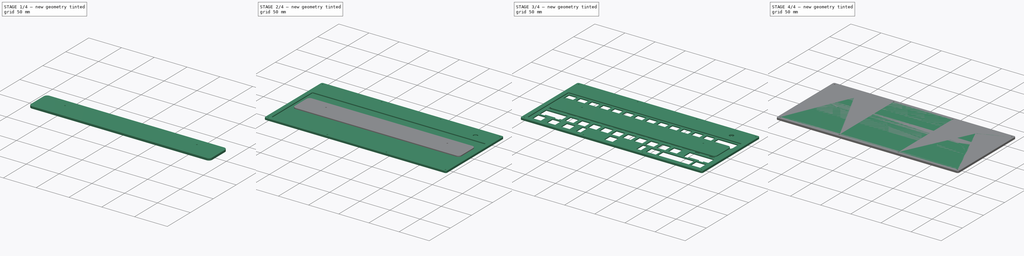
[diagram: build sequence overview — one tinted view per stage of 4, left to right]
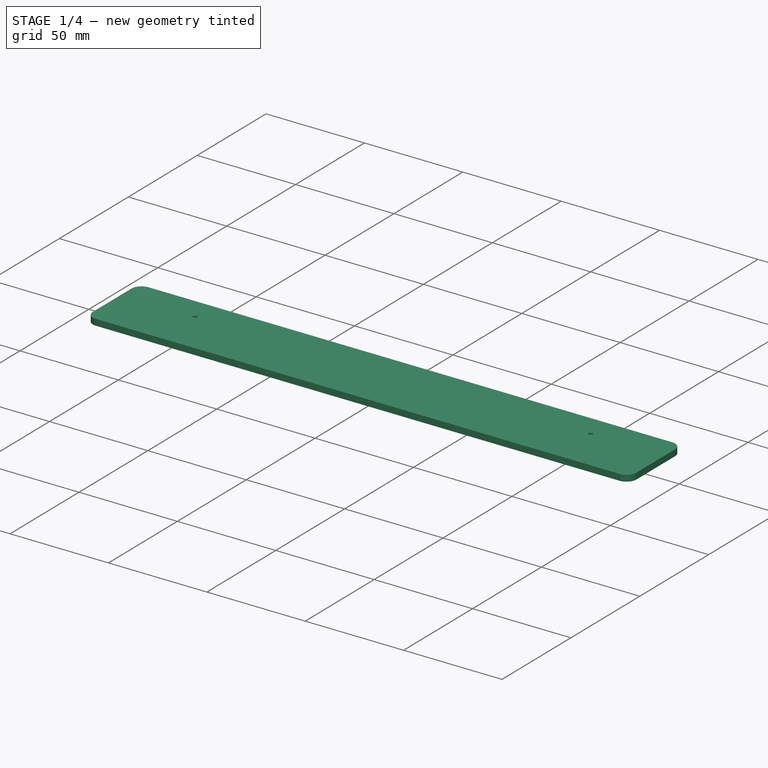
[diagram: stage 1 of 4 — iso view after this stage's code; geometry added in this stage tinted green]
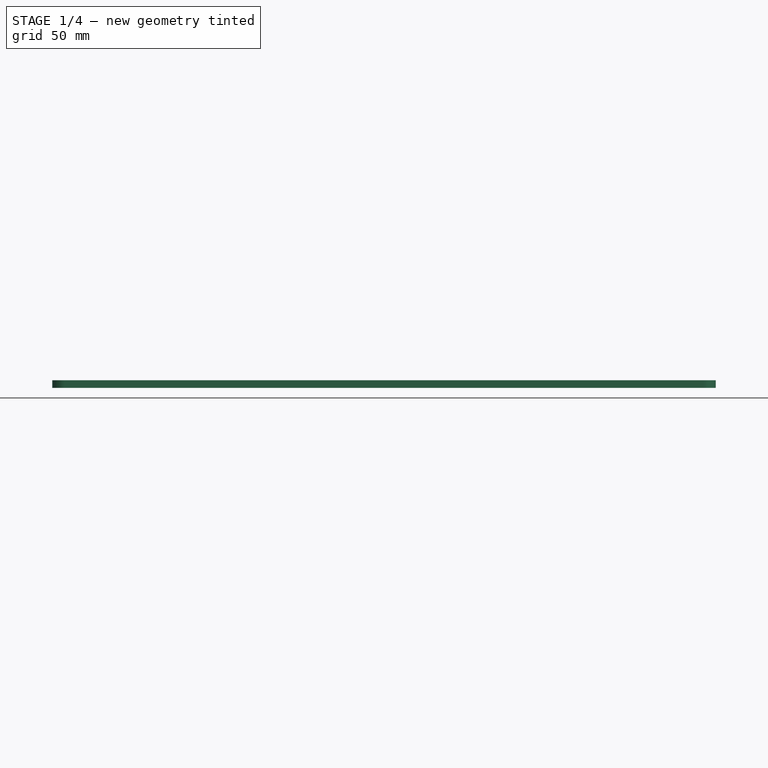
[diagram: stage 1 of 4 — front view after this stage's code; geometry added in this stage tinted green]
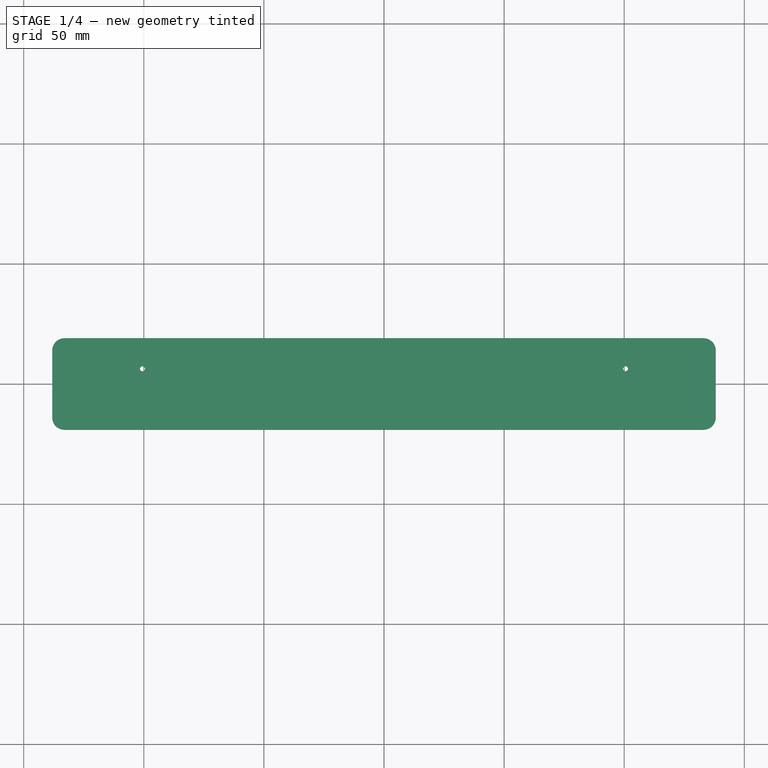
[diagram: stage 1 of 4 — top view after this stage's code; geometry added in this stage tinted green]
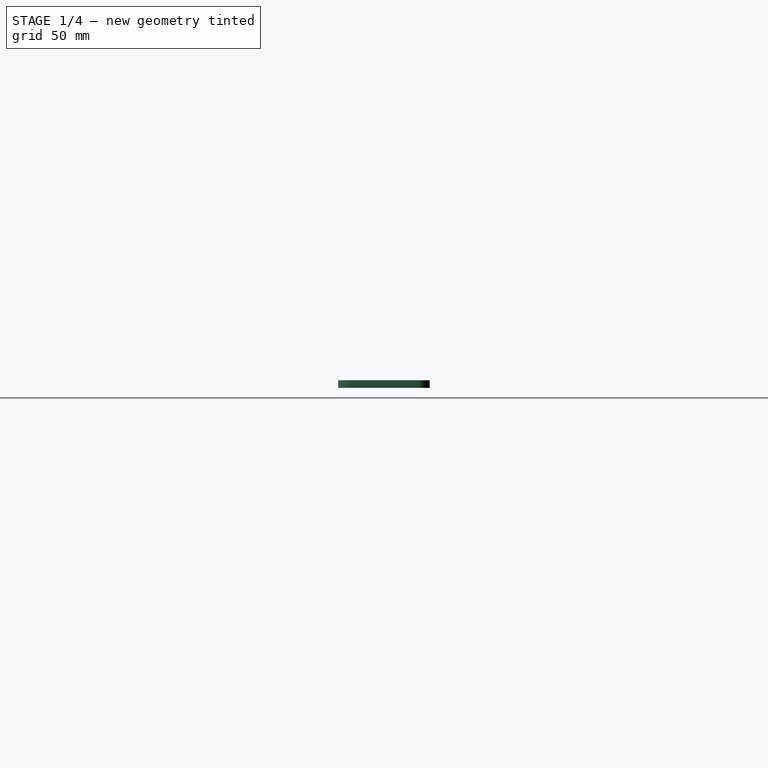
[diagram: stage 1 of 4 — right view after this stage's code; geometry added in this stage tinted green]
FCSTD DOCUMENT  (FreeCAD 0.19R23141 (Git))
Label: grabert
License: Creative Commons Attribution-NonCommercial 4.0 International License.
LicenseURL: http://creativecommons.org/licenses/by-nc/4.0/
objects: PartDesign::CoordinateSystem×20, App::Link×13, Sketcher::SketchObject×12, App::Part×10, PartDesign::Pad×9, PartDesign::Body×9, TechDraw::DrawViewPart×9, PartDesign::Pocket×3, App::DocumentObjectGroup×2, App::FeaturePython×1, Spreadsheet::Sheet×1, TechDraw::DrawSVGTemplate×1, TechDraw::DrawPage×1
note: 65 computed .brp shape members not serialized (recipe doc carries the construction recipe); baked Part::Feature solids carry a one-line shape summary decoded from their .brp
EXTERNAL_REF file=grabert_pcb.FCStd obj=LCS_3
EXTERNAL_REF file=grabert_pcb.FCStd obj=Board_4306
EXTERNAL_REF file=grabert_pcb.FCStd obj=LCS_2
EXTERNAL_REF file=ssd1306oled128x32.FCStd obj=LCS_1
EXTERNAL_REF file=ssd1306oled128x32.FCStd obj=Part

FEATURE [PartDesign::Body] Body_6
  Group = -> [LCS_0011,Sketch008,Pad005]
  Origin = -> Origin012
  Tip = -> Pad005
FEATURE [App::Part] clear_top
  Group = -> [LCS_0010,Body_6]
  Origin = -> Origin011
FEATURE [App::Link] bottom001
  AssemblyType = Asm4EE
  AttachedBy = #LCS_0
  AttachedTo = Parent Assembly#LCS_Origin
  LinkedObject = -> bottom
  expr: Placement = LCS_Origin.Placement * AttachmentOffset * LCS_0.Placement ^ -1
FEATURE [App::Link] closed_spacer001
  AssemblyType = Asm4EE
  AttachedBy = #LCS_0002
  AttachedTo = Parent Assembly#LCS_Origin
  AttachmentOffset = pos=(0,0,3.175) rot=(0,0,1;0rad)
  LinkPlacement = pos=(0,0,3.175) rot=(0,0,1;0rad)
  LinkedObject = -> closed_spacer
  Placement = pos=(0,0,3.175) rot=(0,0,1;0rad)
  expr: Placement = LCS_Origin.Placement * AttachmentOffset * LCS_0002.Placement ^ -1
FEATURE [App::Link] usb_spacer001
  AssemblyType = Asm4EE
  AttachedBy = #LCS_0004
  AttachedTo = Parent Assembly#LCS_Origin
  AttachmentOffset = pos=(0,0,6.35) rot=(0,0,1;0rad)
  LinkPlacement = pos=(0,0,6.35) rot=(0,0,1;0rad)
  LinkedObject = -> usb_spacer
  Placement = pos=(0,0,6.35) rot=(0,0,1;0rad)
  expr: Placement = LCS_Origin.Placement * AttachmentOffset * LCS_0004.Placement ^ -1
FEATURE [App::Link] usb_spacer002
  AssemblyType = Asm4EE
  AttachedBy = #LCS_0004
  AttachedTo = Parent Assembly#LCS_Origin
  AttachmentOffset = pos=(0,0,9.525) rot=(0,0,1;0rad)
  LinkPlacement = pos=(0,0,9.525) rot=(0,0,1;0rad)
  LinkedObject = -> usb_spacer
  Placement = pos=(0,0,9.525) rot=(0,0,1;0rad)
  expr: Placement = LCS_Origin.Placement * AttachmentOffset * LCS_0004.Placement ^ -1
FEATURE [App::Link] switch_plate001
  AssemblyType = Asm4EE
  AttachedBy = #LCS_0006
  AttachedTo = Parent Assembly#LCS_Origin
  AttachmentOffset = pos=(0,0,12.7) rot=(0,0,1;0rad)
  LinkPlacement = pos=(0,0,12.7) rot=(0,0,1;0rad)
  LinkedObject = -> switch_plate
  Placement = pos=(0,0,12.7) rot=(0,0,1;0rad)
  expr: Placement = LCS_Origin.Placement * AttachmentOffset * LCS_0006.Placement ^ -1
FEATURE [App::Link] closed_spacer002
  AssemblyType = Asm4EE
  AttachedBy = #LCS_0002
  AttachedTo = Parent Assembly#LCS_Origin
  AttachmentOffset = pos=(0,0,14.2875) rot=(0,0,1;0rad)
  LinkPlacement = pos=(0,0,14.2875) rot=(0,0,1;0rad)
  LinkedObject = -> closed_spacer
  Placement = pos=(0,0,14.2875) rot=(0,0,1;0rad)
  expr: Placement = LCS_Origin.Placement * AttachmentOffset * LCS_0002.Placement ^ -1
FEATURE [App::Link] colored_top001
  AssemblyType = Asm4EE
  AttachedBy = #LCS_0008
  AttachedTo = Parent Assembly#LCS_Origin
  AttachmentOffset = pos=(0,0,17.4625) rot=(0,0,1;0rad)
  LinkPlacement = pos=(0,0,17.4625) rot=(0,0,1;0rad)
  LinkedObject = -> colored_top
  Placement = pos=(0,0,17.4625) rot=(0,0,1;0rad)
  expr: Placement = LCS_Origin.Placement * AttachmentOffset * LCS_0008.Placement ^ -1
FEATURE [App::Link] clear_top001
  AssemblyType = Asm4EE
  AttachedBy = #LCS_0010
  AttachedTo = Parent Assembly#LCS_Origin
  AttachmentOffset = pos=(0,0,20.6375) rot=(0,0,1;0rad)
  LinkPlacement = pos=(0,0,20.6375) rot=(0,0,1;0rad)
  LinkedObject = -> clear_top
  Placement = pos=(0,0,20.6375) rot=(0,0,1;0rad)
  expr: Placement = LCS_Origin.Placement * AttachmentOffset * LCS_0010.Placement ^ -1
FEATURE [App::Link] grabert_pcb_grabert_pcb
  AssemblyType = Asm4EE
  AttachedBy = Placement [Pos=(9.525,85.725,0), Yaw-Pitch-Roll=(0,0,0)]
  AttachedTo = switch_plate001#LCS_1
  AttachmentOffset = pos=(0,0,-5.08) rot=(0,0,1;0rad)
  LinkPlacement = pos=(-142.875,-60.325,9.2075) rot=(0,0,1;0rad)
  LinkedObject = -> <external grabert_pcb.FCStd>#Board_4306
  Placement = pos=(-142.875,-60.325,9.2075) rot=(0,0,1;0rad)
  expr: Placement = switch_plate001.Placement * LCS_1.Placement * AttachmentOffset * grabert_pcb#LCS_3.Placement ^ -1
  expr: AttachedBy = <<grabert_pcb>>#LCS_3.Placement
FEATURE [PartDesign::CoordinateSystem] LCS_0012
  AttacherType = Attacher::AttachEngine3D
  MapMode = 2
  Support = -> [X_Axis013]
FEATURE [PartDesign::CoordinateSystem] LCS_0013
  AttacherType = Attacher::AttachEngine3D
  MapMode = 2
  Support = -> [X_Axis014]
FEATURE [Sketcher::SketchObject] Sketch009
  MapMode = 5
  Support = -> [XY_Plane014]
  expr: Constraints[23] = <<Parameters>>.case_outter_radius * 2
  expr: Constraints[30] = <<Parameters>>.case_width - 1in
  expr: Constraints[38] = <<Parameters>>.case_spacer_hole
  expr: Constraints[39] = <<Parameters>>.foot_hole_seperation * 2
  sketch-geometry (14):
    g0: ArcOfCircle CenterX=-133.032 CenterY=13.97 CenterZ=0 NormalX=0 NormalY=0 NormalZ=1 AngleXU=0 Radius=5.08 StartAngle=1.57079 EndAngle=3.14159
    g1: ArcOfCircle CenterX=-133.032 CenterY=-13.97 CenterZ=0 NormalX=0 NormalY=0 NormalZ=1 AngleXU=0 Radius=5.08 StartAngle=3.14159 EndAngle=4.71239
    g2: ArcOfCircle CenterX=133.033 CenterY=-13.97 CenterZ=0 NormalX=0 NormalY=0 NormalZ=1 AngleXU=0 Radius=5.08 StartAngle=4.71238 EndAngle=6.28319
    g3: ArcOfCircle CenterX=133.033 CenterY=13.97 CenterZ=0 NormalX=0 NormalY=0 NormalZ=1 AngleXU=0 Radius=5.08 StartAngle=2.61338e-07 EndAngle=1.5708
    g4: LineSegment StartX=-133.032 StartY=19.05 StartZ=0 EndX=133.032 EndY=19.05 EndZ=0
    g5: LineSegment StartX=138.112 StartY=13.97 StartZ=0 EndX=138.112 EndY=-13.97 EndZ=0
    g6: LineSegment StartX=133.032 StartY=-19.05 StartZ=0 EndX=-133.032 EndY=-19.05 EndZ=0
    g7: LineSegment StartX=-138.112 StartY=-13.97 StartZ=0 EndX=-138.112 EndY=13.97 EndZ=0
    g8: GeomPoint X=-138.113 Y=19.05 Z=0
    g9: GeomPoint X=138.113 Y=-19.05 Z=0
    g10: Circle CenterX=-100.542 CenterY=6.35 CenterZ=0 NormalX=0 NormalY=0 NormalZ=1 AngleXU=0 Radius=1.55
    g11: Circle CenterX=100.542 CenterY=6.35 CenterZ=0 NormalX=0 NormalY=0 NormalZ=1 AngleXU=0 Radius=1.55
    g12: LineSegment [constr] StartX=-100.542 StartY=6.35 StartZ=0 EndX=100.542 EndY=6.35 EndZ=0
    g13: GeomPoint X=0 Y=6.35 Z=0
  constraints (40):
    c: Coincident(g0,g4)
    c: Coincident(g0,g7)
    c: Coincident(g7,g1)
    c: Coincident(g1,g6)
    c: Coincident(g6,g2)
    c: Coincident(g2,g5)
    c: Coincident(g5,g3)
    c: Coincident(g4,g3)
    c: Horizontal(g4)
    c: Horizontal(g6)
    c: Vertical(g7)
    c: Vertical(g5)
    c: Tangent(g0,g4)
    c: Tangent(g0,g7)
    c: Tangent(g7,g1)
    c: Tangent(g6,g1)
    c: Tangent(g6,g2)
    c: Tangent(g2,g5)
    c: Tangent(g5,g3)
    c: Tangent(g3,g4)
    c: Equal(g0,g3)
    c: Equal(g3,g2)
    c: Equal(g2,g1)
    c: Radius(g3) = 5.08
    c: PointOnObject(g8,g4)
    c: PointOnObject(g8,g7)
    c: PointOnObject(g9,g6)
    c: PointOnObject(g9,g5)
    c: Symmetric(g8,g9,g-1)
    c: DistanceY(g9,g8) = 38.1
    c: DistanceX(g8,g9) = 276.225
    c: Coincident(g12,g10)
    c: Coincident(g12,g11)
    c: Horizontal(g12)
    c: Symmetric(g10,g11,g13)
    c: PointOnObject(g13,g-2)
    c: DistanceY(g-1,g13) = 6.35
    c: Equal(g10,g11)
    c: Diameter(g10) = 3.1
    c: DistanceX(g12,g12) = 201.083
FEATURE [PartDesign::Pad] Pad006
  Direction = (1,1,1)
  Length = 3.175
  Length2 = 99.9998
  Profile = -> Sketch009
  Type = 0
FEATURE [PartDesign::Body] Body_7
  Group = -> [LCS_0013,Sketch009,Pad006]
  Origin = -> Origin014
  Tip = -> Pad006
FEATURE [App::Part] foot_0
  Group = -> [LCS_0012,Body_7]
  Origin = -> Origin013
FEATURE [App::Link] foot_0001
  AssemblyType = Asm4EE
  AttachedBy = #LCS_0012
  AttachedTo = Parent Assembly#LCS_Origin
  AttachmentOffset = pos=(0,39.1583,-3.175) rot=(0,0,1;0rad)
  LinkPlacement = pos=(0,39.1583,-3.175) rot=(0,0,1;0rad)
  LinkedObject = -> foot_0
  Placement = pos=(0,39.1583,-3.175) rot=(0,0,1;0rad)
  expr: Placement = LCS_Origin.Placement * AttachmentOffset * LCS_0012.Placement ^ -1
  expr: .AttachmentOffset.Base.y = <<Parameters>>.foot_hole_height_from_center - 0.25in
FEATURE [PartDesign::CoordinateSystem] LCS_0014
  AttacherType = Attacher::AttachEngine3D
  MapMode = 2
  Support = -> [X_Axis015]
FEATURE [PartDesign::CoordinateSystem] LCS_0015
  AttacherType = Attacher::AttachEngine3D
  MapMode = 2
  Support = -> [X_Axis016]
FEATURE [PartDesign::CoordinateSystem] LCS_0016
  AttacherType = Attacher::AttachEngine3D
  MapMode = 2
  Support = -> [X_Axis017]
FEATURE [Sketcher::SketchObject] Sketch010
  MapMode = 5
  Support = -> [XY_Plane017]
  expr: Constraints[40] = <<Parameters>>.foot_hole_seperation
  expr: Constraints[39] = <<Parameters>>.case_spacer_hole
  expr: Constraints[29] = <<Parameters>>.case_width - 1.25in
  expr: Constraints[3] = <<Parameters>>.case_outter_radius * 2
  sketch-geometry (14):
    g0: GeomPoint X=-134.938 Y=15.875 Z=0
    g1: GeomPoint X=134.938 Y=-15.875 Z=0
    g2: ArcOfCircle CenterX=-129.857 CenterY=10.795 CenterZ=0 NormalX=0 NormalY=0 NormalZ=1 AngleXU=0 Radius=5.08 StartAngle=1.5708 EndAngle=3.1416
    g3: ArcOfCircle CenterX=129.858 CenterY=10.795 CenterZ=0 NormalX=0 NormalY=0 NormalZ=1 AngleXU=0 Radius=5.08 StartAngle=6.28318 EndAngle=7.85398
    g4: ArcOfCircle CenterX=129.858 CenterY=-10.795 CenterZ=0 NormalX=0 NormalY=0 NormalZ=1 AngleXU=0 Radius=5.08 StartAngle=4.71239 EndAngle=6.28319
    g5: ArcOfCircle CenterX=-129.857 CenterY=-10.795 CenterZ=0 NormalX=0 NormalY=0 NormalZ=1 AngleXU=0 Radius=5.08 StartAngle=3.14159 EndAngle=4.71239
    g6: LineSegment StartX=-134.937 StartY=10.795 StartZ=0 EndX=-134.937 EndY=-10.795 EndZ=0
    g7: LineSegment StartX=-129.858 StartY=15.875 StartZ=0 EndX=129.858 EndY=15.875 EndZ=0
    g8: LineSegment StartX=134.937 StartY=10.795 StartZ=0 EndX=134.937 EndY=-10.795 EndZ=0
    g9: LineSegment StartX=129.858 StartY=-15.875 StartZ=0 EndX=-129.858 EndY=-15.875 EndZ=0
    g10: Circle CenterX=-100.542 CenterY=6.35 CenterZ=0 NormalX=0 NormalY=0 NormalZ=1 AngleXU=0 Radius=1.55
    g11: Circle CenterX=100.542 CenterY=6.35 CenterZ=0 NormalX=0 NormalY=0 NormalZ=1 AngleXU=0 Radius=1.55
    g12: LineSegment [constr] StartX=-100.542 StartY=6.35 StartZ=0 EndX=0 EndY=6.35 EndZ=0
    g13: LineSegment [constr] StartX=0 StartY=6.35 StartZ=0 EndX=100.542 EndY=6.35 EndZ=0
  constraints (42):
    c: Equal(g5,g2)
    c: Equal(g2,g3)
    c: Equal(g3,g4)
    c: Radius(g2) = 5.08
    c: Horizontal(g7)
    c: Horizontal(g9)
    c: Vertical(g6)
    c: Vertical(g8)
    c: Coincident(g2,g6)
    c: Coincident(g2,g7)
    c: Coincident(g7,g3)
    c: Coincident(g3,g8)
    c: Coincident(g4,g8)
    c: Coincident(g4,g9)
    c: Coincident(g5,g9)
    c: Coincident(g5,g6)
    c: Tangent(g2,g7)
    c: Tangent(g2,g6)
    c: Tangent(g6,g5)
    c: Tangent(g9,g5)
    c: Tangent(g9,g4)
    c: Tangent(g4,g8)
    c: Tangent(g8,g3)
    c: Tangent(g3,g7)
    c: PointOnObject(g0,g7)
    c: PointOnObject(g0,g6)
    c: PointOnObject(g1,g8)
    c: PointOnObject(g1,g9)
    c: Symmetric(g1,g0,g-1)
    c: DistanceX(g0,g1) = 269.875
    c: DistanceY(g1,g0) = 31.75
    c: Coincident(g12,g10)
    c: Coincident(g12,g13)
    c: Coincident(g13,g11)
    c: Horizontal(g12)
    c: Horizontal(g13)
    c: PointOnObject(g12,g-2)
    c: Equal(g13,g12)
    c: Equal(g10,g11)
    c: Diameter(g10) = 3.1
    c: DistanceX(g12,g12) = 100.542
    c: DistanceY(g-1,g12) = 6.35
FEATURE [PartDesign::Pad] Pad007
  Direction = (1,1,1)
  Length = 3.175
  Length2 = 99.9998
  Profile = -> Sketch010
  Type = 0
FEATURE [PartDesign::Body] Body_8
  Group = -> [LCS_0016,Sketch010,Pad007]
  Origin = -> Origin017
  Tip = -> Pad007
FEATURE [App::Part] foot_1
  Group = -> [LCS_0014,Body_8]
  Origin = -> Origin015
FEATURE [App::Link] foot_1001
  AssemblyType = Asm4EE
  AttachedBy = #LCS_0014
  AttachedTo = Parent Assembly#LCS_Origin
  AttachmentOffset = pos=(0,39.1583,-6.35) rot=(0,0,1;0rad)
  LinkPlacement = pos=(0,39.1583,-6.35) rot=(0,0,1;0rad)
  LinkedObject = -> foot_1
  Placement = pos=(0,39.1583,-6.35) rot=(0,0,1;0rad)
  expr: .AttachmentOffset.Base.y = <<Parameters>>.foot_hole_height_from_center - 0.25in
  expr: Placement = LCS_Origin.Placement * AttachmentOffset * LCS_0014.Placement ^ -1
FEATURE [PartDesign::CoordinateSystem] LCS_0017
  AttacherType = Attacher::AttachEngine3D
  MapMode = 2
  Support = -> [X_Axis018]
FEATURE [Sketcher::SketchObject] Sketch011
  MapMode = 5
  Support = -> [XY_Plane018]
  expr: Constraints[41] = <<Parameters>>.case_screw_hole
  expr: Constraints[40] = <<Parameters>>.foot_hole_seperation
  expr: Constraints[30] = <<Parameters>>.case_width - 1.5in
  expr: Constraints[23] = <<Parameters>>.case_outter_radius * 2
  sketch-geometry (14):
    g0: GeomPoint X=-131.762 Y=12.7 Z=0
    g1: GeomPoint X=131.762 Y=-12.7 Z=0
    g2: ArcOfCircle CenterX=-126.682 CenterY=7.62 CenterZ=0 NormalX=0 NormalY=0 NormalZ=1 AngleXU=0 Radius=5.08 StartAngle=1.57079 EndAngle=3.14159
    g3: ArcOfCircle CenterX=126.682 CenterY=7.62 CenterZ=0 NormalX=0 NormalY=0 NormalZ=1 AngleXU=0 Radius=5.08 StartAngle=2.34623e-07 EndAngle=1.5708
    g4: ArcOfCircle CenterX=126.682 CenterY=-7.62 CenterZ=0 NormalX=0 NormalY=0 NormalZ=1 AngleXU=0 Radius=5.08 StartAngle=4.71239 EndAngle=6.28319
    g5: ArcOfCircle CenterX=-126.682 CenterY=-7.62 CenterZ=0 NormalX=0 NormalY=0 NormalZ=1 AngleXU=0 Radius=5.08 StartAngle=3.14159 EndAngle=4.71239
    g6: LineSegment StartX=-126.682 StartY=12.7 StartZ=0 EndX=126.682 EndY=12.7 EndZ=0
    g7: LineSegment StartX=131.762 StartY=7.62 StartZ=0 EndX=131.762 EndY=-7.62 EndZ=0
    g8: LineSegment StartX=126.682 StartY=-12.7 StartZ=0 EndX=-126.682 EndY=-12.7 EndZ=0
    g9: LineSegment StartX=-131.762 StartY=-7.62 StartZ=0 EndX=-131.762 EndY=7.62 EndZ=0
    g10: Circle CenterX=-100.542 CenterY=6.35 CenterZ=0 NormalX=0 NormalY=0 NormalZ=1 AngleXU=0 Radius=1.05
    g11: Circle CenterX=100.542 CenterY=6.35 CenterZ=0 NormalX=0 NormalY=0 NormalZ=1 AngleXU=0 Radius=1.05
    g12: LineSegment [constr] StartX=-100.542 StartY=6.35 StartZ=0 EndX=0 EndY=6.35 EndZ=0
    g13: LineSegment [constr] StartX=0 StartY=6.35 StartZ=0 EndX=100.542 EndY=6.35 EndZ=0
  constraints (42):
    c: Coincident(g2,g6)
    c: Coincident(g6,g3)
    c: Coincident(g3,g7)
    c: Coincident(g7,g4)
    c: Coincident(g4,g8)
    c: Coincident(g8,g5)
    c: Coincident(g5,g9)
    c: Coincident(g9,g2)
    c: Tangent(g2,g6)
    c: Tangent(g6,g3)
    c: Tangent(g3,g7)
    c: Tangent(g7,g4)
    c: Tangent(g4,g8)
    c: Tangent(g8,g5)
    c: Tangent(g5,g9)
    c: Tangent(g9,g2)
    c: Vertical(g9)
    c: Vertical(g7)
    c: Horizontal(g6)
    c: Horizontal(g8)
    c: Equal(g4,g3)
    c: Equal(g3,g2)
    c: Equal(g2,g5)
    c: Radius(g3) = 5.08
    c: PointOnObject(g0,g6)
    c: PointOnObject(g0,g9)
    c: PointOnObject(g1,g7)
    c: PointOnObject(g1,g8)
    c: Symmetric(g0,g1,g-1)
    c: DistanceY(g1,g0) = 25.4
    c: DistanceX(g0,g1) = 263.525
    c: Coincident(g12,g13)
    c: Coincident(g12,g10)
    c: Coincident(g13,g11)
    c: Horizontal(g12)
    c: Horizontal(g13)
    c: PointOnObject(g12,g-2)
    c: DistanceY(g-1,g12) = 6.35
    c: Equal(g10,g11)
    c: Equal(g13,g12)
    c: DistanceX(g12,g12) = 100.542
    c: Diameter(g10) = 2.1
FEATURE [PartDesign::Pad] Pad008
  Direction = (1,1,1)
  Length = 3.175
  Length2 = 99.9998
  Profile = -> Sketch011
  Type = 0
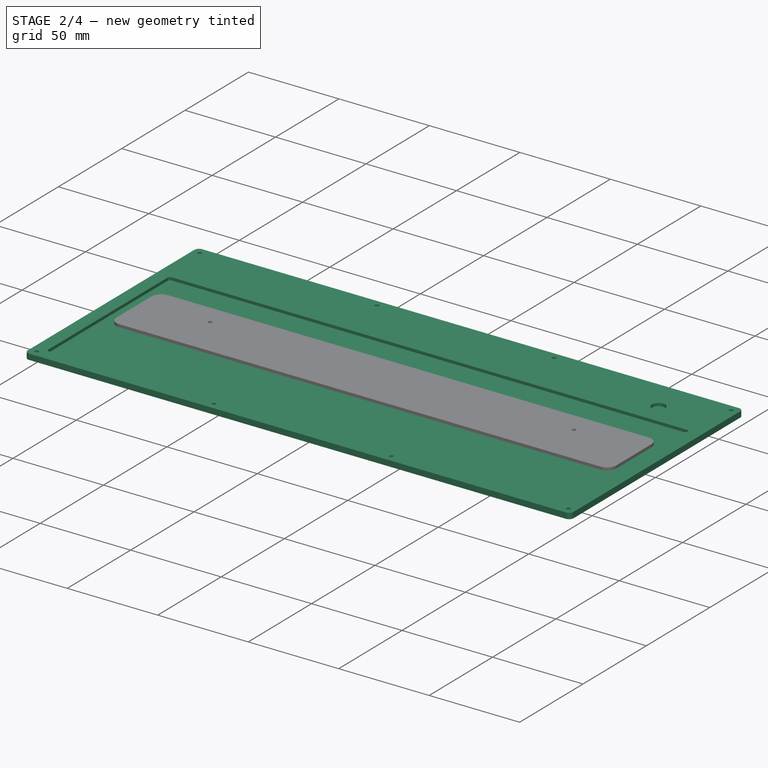
[diagram: stage 2 of 4 — iso view after this stage's code; geometry added in this stage tinted green]
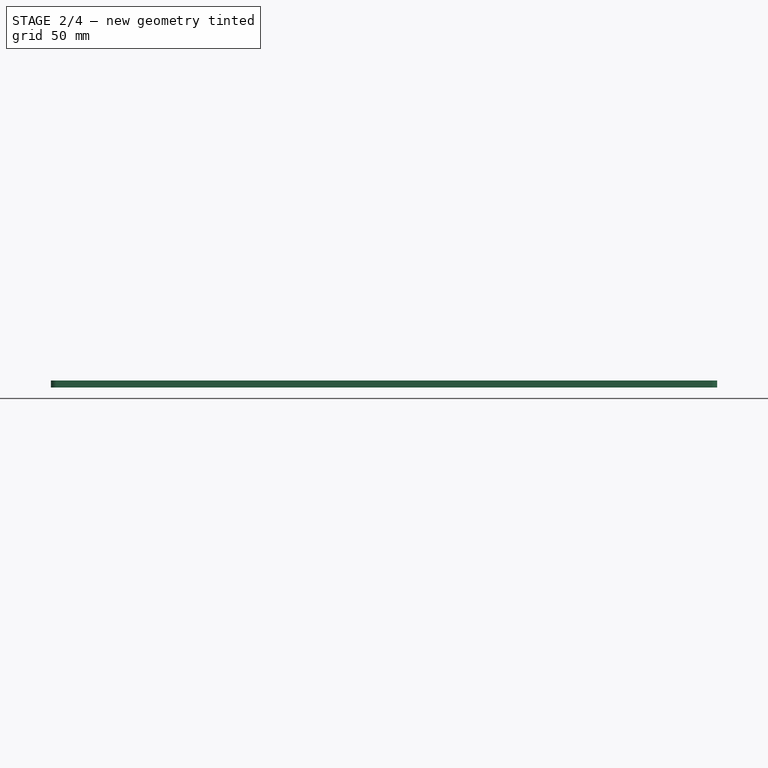
[diagram: stage 2 of 4 — front view after this stage's code; geometry added in this stage tinted green]
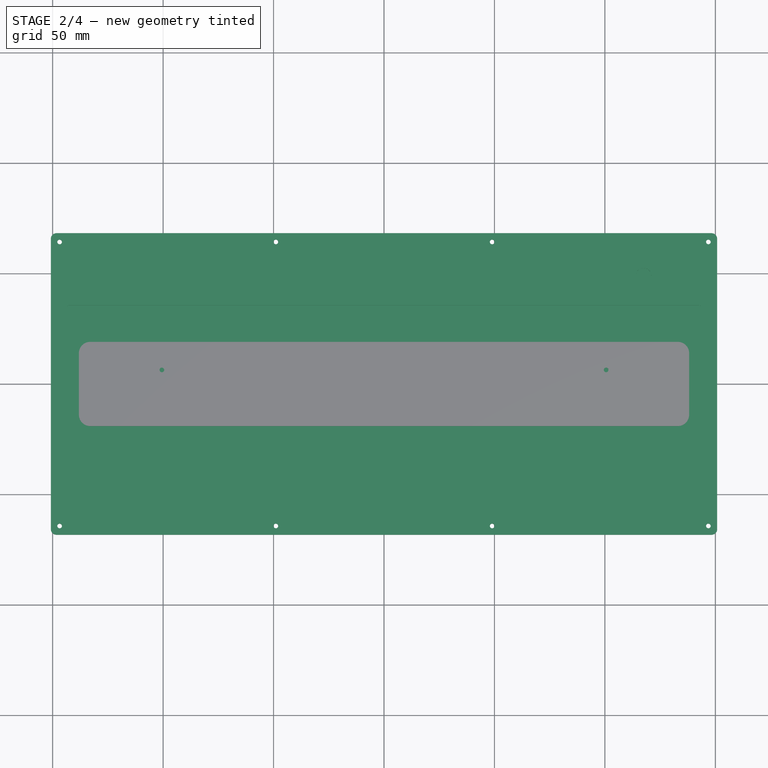
[diagram: stage 2 of 4 — top view after this stage's code; geometry added in this stage tinted green]
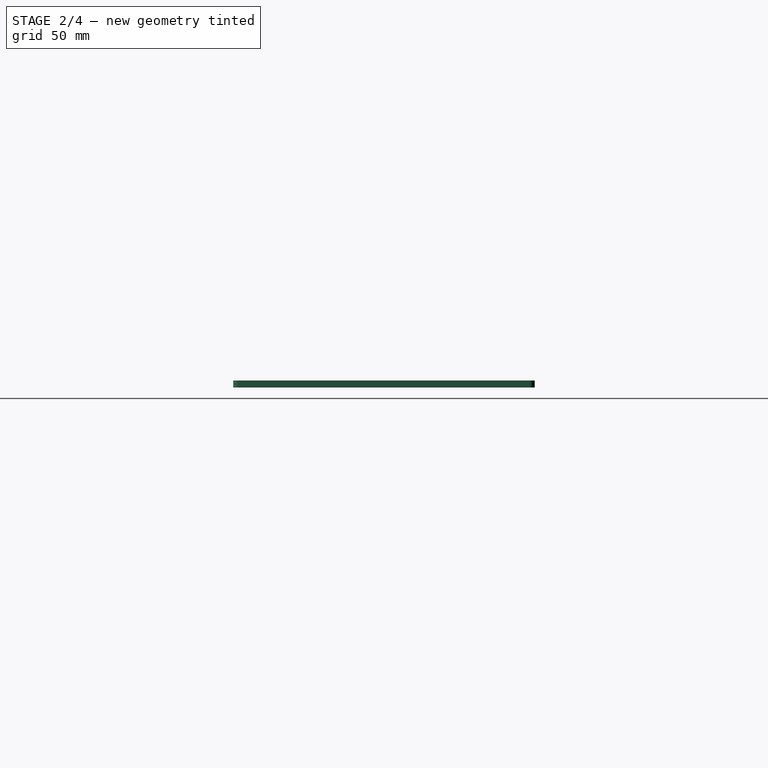
[diagram: stage 2 of 4 — right view after this stage's code; geometry added in this stage tinted green]
FEATURE [PartDesign::Body] Body_4
  Group = -> [LCS_0007,Sketch003,Pad003,Sketch004,Pocket,Sketch005,Pocket001,Sketch006,Pocket002]
  Origin = -> Origin008
  Tip = -> Pocket002
FEATURE [PartDesign::CoordinateSystem] LCS_0008
  AttacherType = Attacher::AttachEngine3D
  MapMode = 2
  Support = -> [X_Axis009]
FEATURE [PartDesign::CoordinateSystem] LCS_0009
  AttacherType = Attacher::AttachEngine3D
  MapMode = 2
  Support = -> [X_Axis010]
FEATURE [Sketcher::SketchObject] Sketch007
  MapMode = 5
  Support = -> [XY_Plane010]
  expr: Constraints[118] = <<Parameters>>.case_edge_width / 2
  expr: Constraints[119] = <<Parameters>>.case_edge_width / 2
  expr: Constraints[117] = <<Parameters>>.case_edge_width / 2
  expr: Constraints[73] = <<Parameters>>.case_edge_width - <<Parameters>>.case_edge_relief
  expr: Constraints[110] = <<Parameters>>.case_spacer_hole
  expr: Constraints[72] = <<Parameters>>.case_edge_width - <<Parameters>>.case_edge_relief
  expr: Constraints[67] = <<Parameters>>.case_height
  expr: Constraints[68] = <<Parameters>>.case_outter_radius
  expr: Constraints[69] = <<Parameters>>.case_width
  expr: Constraints[71] = <<Parameters>>.pcb_height - 1in + 2 * <<Parameters>>.case_edge_relief
  expr: Constraints[70] = <<Parameters>>.case_inner_radius
  sketch-geometry (41):
    g0: ArcOfCircle CenterX=-148.272 CenterY=65.7225 CenterZ=0 NormalX=0 NormalY=0 NormalZ=1 AngleXU=0 Radius=2.54 StartAngle=1.5708 EndAngle=3.1416
    g1: ArcOfCircle CenterX=-148.272 CenterY=-65.7225 CenterZ=0 NormalX=0 NormalY=0 NormalZ=1 AngleXU=0 Radius=2.54 StartAngle=3.14159 EndAngle=4.71239
    g2: ArcOfCircle CenterX=148.272 CenterY=-65.7225 CenterZ=0 NormalX=0 NormalY=0 NormalZ=1 AngleXU=0 Radius=2.54 StartAngle=4.71239 EndAngle=6.28319
    g3: ArcOfCircle CenterX=148.273 CenterY=65.7225 CenterZ=0 NormalX=0 NormalY=0 NormalZ=1 AngleXU=0 Radius=2.54 StartAngle=6.28318 EndAngle=7.85398
    g4: LineSegment StartX=-148.273 StartY=68.2625 StartZ=0 EndX=148.273 EndY=68.2625 EndZ=0
    g5: LineSegment StartX=150.812 StartY=65.7225 StartZ=0 EndX=150.812 EndY=-65.7225 EndZ=0
    g6: LineSegment StartX=148.272 StartY=-68.2625 StartZ=0 EndX=-148.273 EndY=-68.2625 EndZ=0
    g7: LineSegment StartX=-150.812 StartY=-65.7225 StartZ=0 EndX=-150.812 EndY=65.7225 EndZ=0
    g8: ArcOfCircle CenterX=-142.399 CenterY=34.4487 CenterZ=0 NormalX=0 NormalY=0 NormalZ=1 AngleXU=0 Radius=1.27 StartAngle=1.5708 EndAngle=3.14159
    g9: ArcOfCircle CenterX=-142.399 CenterY=-59.8488 CenterZ=0 NormalX=0 NormalY=0 NormalZ=1 AngleXU=0 Radius=1.27 StartAngle=3.14159 EndAngle=4.71239
    g10: ArcOfCircle CenterX=142.399 CenterY=-59.8488 CenterZ=0 NormalX=0 NormalY=0 NormalZ=1 AngleXU=0 Radius=1.27 StartAngle=4.71239 EndAngle=6.28319
    g11: ArcOfCircle CenterX=142.399 CenterY=34.4487 CenterZ=0 NormalX=0 NormalY=0 NormalZ=1 AngleXU=0 Radius=1.27 StartAngle=1.02571e-07 EndAngle=1.5708
    g12: LineSegment StartX=-129.089 StartY=52.9895 StartZ=0 EndX=-105.366 EndY=52.9895 EndZ=0
    g13: LineSegment StartX=-105.366 StartY=52.9895 StartZ=0 EndX=-105.366 EndY=43.9776 EndZ=0
    g14: LineSegment StartX=-105.366 StartY=43.9776 StartZ=0 EndX=-129.089 EndY=43.9776 EndZ=0
    g15: LineSegment StartX=-129.089 StartY=43.9776 StartZ=0 EndX=-129.089 EndY=52.9895 EndZ=0
    g16: Circle CenterX=117.475 CenterY=48.895 CenterZ=0 NormalX=0 NormalY=0 NormalZ=1 AngleXU=0 Radius=3.60045
    g17: LineSegment StartX=-142.399 StartY=35.7187 StartZ=0 EndX=142.399 EndY=35.7187 EndZ=0
    g18: LineSegment StartX=-143.669 StartY=34.4487 StartZ=0 EndX=-143.669 EndY=-59.8488 EndZ=0
    g19: LineSegment StartX=-142.399 StartY=-61.1188 StartZ=0 EndX=142.399 EndY=-61.1188 EndZ=0
    g20: LineSegment StartX=143.669 StartY=-59.8488 StartZ=0 EndX=143.669 EndY=34.4488 EndZ=0
    g21: LineSegment [constr] StartX=-143.669 StartY=61.1187 StartZ=0 EndX=143.669 EndY=61.1187 EndZ=0
    g22: LineSegment [constr] StartX=143.669 StartY=61.1187 StartZ=0 EndX=143.669 EndY=-61.1187 EndZ=0
    g23: LineSegment [constr] StartX=143.669 StartY=-61.1187 StartZ=0 EndX=-143.669 EndY=-61.1187 EndZ=0
    g24: LineSegment [constr] StartX=-143.669 StartY=-61.1187 StartZ=0 EndX=-143.669 EndY=61.1187 EndZ=0
    g25: GeomPoint X=-150.812 Y=68.2625 Z=0
    g26: GeomPoint X=150.812 Y=68.2625 Z=0
    g27: Circle CenterX=-146.844 CenterY=64.2937 CenterZ=0 NormalX=0 NormalY=0 NormalZ=1 AngleXU=0 Radius=1.55
    g28: Circle CenterX=-48.9479 CenterY=64.2937 CenterZ=0 NormalX=0 NormalY=0 NormalZ=1 AngleXU=0 Radius=1.55
    g29: Circle CenterX=48.9479 CenterY=64.2937 CenterZ=0 NormalX=0 NormalY=0 NormalZ=1 AngleXU=0 Radius=1.55
    g30: Circle CenterX=146.844 CenterY=64.2937 CenterZ=0 NormalX=0 NormalY=0 NormalZ=1 AngleXU=0 Radius=1.55
    g31: Circle CenterX=-146.844 CenterY=-64.2937 CenterZ=0 NormalX=0 NormalY=0 NormalZ=1 AngleXU=0 Radius=1.55
    g32: Circle CenterX=-48.9479 CenterY=-64.2937 CenterZ=0 NormalX=0 NormalY=0 NormalZ=1 AngleXU=0 Radius=1.55
    g33: Circle CenterX=48.9479 CenterY=-64.2937 CenterZ=0 NormalX=0 NormalY=0 NormalZ=1 AngleXU=0 Radius=1.55
    g34: Circle CenterX=146.844 CenterY=-64.2937 CenterZ=0 NormalX=0 NormalY=0 NormalZ=1 AngleXU=0 Radius=1.55
    g35: LineSegment [constr] StartX=-146.844 StartY=64.2937 StartZ=0 EndX=-48.9479 EndY=64.2937 EndZ=0
    g36: LineSegment [constr] StartX=-48.9479 StartY=64.2937 StartZ=0 EndX=48.9479 EndY=64.2937 EndZ=0
    g37: LineSegment [constr] StartX=48.9479 StartY=64.2937 StartZ=0 EndX=146.844 EndY=64.2937 EndZ=0
    g38: LineSegment [constr] StartX=-146.844 StartY=-64.2937 StartZ=0 EndX=-48.9479 EndY=-64.2937 EndZ=0
    g39: LineSegment [constr] StartX=-48.9479 StartY=-64.2937 StartZ=0 EndX=48.9479 EndY=-64.2937 EndZ=0
    g40: LineSegment [constr] StartX=48.9479 StartY=-64.2937 StartZ=0 EndX=146.844 EndY=-64.2937 EndZ=0
  constraints (120):
    c: Coincident(g12,g13)
    c: Coincident(g13,g14)
    c: Coincident(g14,g15)
    c: Coincident(g15,g12)
    c: Horizontal(g12)
    c: Horizontal(g14)
    c: Vertical(g13)
    c: Vertical(g15)
    c: Coincident(g0,g4)
    c: Coincident(g0,g7)
    c: Coincident(g7,g1)
    c: Coincident(g1,g6)
    c: Coincident(g6,g2)
    c: Coincident(g2,g5)
    c: Coincident(g5,g3)
    c: Coincident(g3,g4)
    c: Coincident(g8,g17)
    c: Coincident(g8,g18)
    c: Coincident(g18,g9)
    c: Coincident(g9,g19)
    c: Coincident(g19,g10)
    c: Coincident(g10,g20)
    c: Coincident(g11,g20)
    c: Coincident(g11,g17)
    c: Horizontal(g17)
    c: Horizontal(g19)
    c: Horizontal(g6)
    c: Horizontal(g4)
    c: Vertical(g7)
    c: Vertical(g5)
    c: Vertical(g20)
    c: Vertical(g18)
    c: Tangent(g4,g0)
    c: Tangent(g0,g7)
    c: Tangent(g7,g1)
    c: Tangent(g1,g6)
    c: Tangent(g6,g2)
    c: Tangent(g2,g5)
    c: Tangent(g5,g3)
    c: Tangent(g3,g4)
    c: Tangent(g17,g11)
    c: Tangent(g11,g20)
    c: Tangent(g20,g10)
    c: Tangent(g10,g19)
    c: Tangent(g19,g9)
    c: Tangent(g9,g18)
    c: Tangent(g18,g8)
    c: Tangent(g8,g17)
    c: Equal(g0,g3)
    c: Equal(g3,g2)
    c: Equal(g2,g1)
    c: Equal(g8,g9)
    c: Equal(g9,g10)
    c: Equal(g10,g11)
    c: Symmetric(g0,g2,g-1)
    c: Coincident(g21,g22)
    c: Coincident(g22,g23)
    c: Coincident(g23,g24)
    c: Coincident(g24,g21)
    c: Horizontal(g21)
    c: Horizontal(g23)
    c: Vertical(g22)
    c: Vertical(g24)
    c: PointOnObject(g9,g24)
    c: PointOnObject(g9,g23)
    c: PointOnObject(g11,g22)
    c: Symmetric(g21,g22,g-1)
    c: DistanceY(g1,g0) = 136.525
    c: Radius(g0) = 2.54
    c: DistanceX(g0,g3) = 301.625
    c: Radius(g8) = 1.27
    c: DistanceY(g9,g8) = 96.8375
    c: DistanceY(g1,g9) = 7.14375
    c: DistanceX(g1,g23) = 7.14375
    c: PointOnObject(g25,g4)
    c: PointOnObject(g25,g7)
    c: DistanceX(g25,g12) = 21.7233
    c: DistanceY(g12,g25) = 15.273
    c: DistanceY(g13,g13) = 9.01192
    c: DistanceX(g14,g14) = 23.7236
    c: PointOnObject(g26,g4)
    c: PointOnObject(g26,g5)
    c: DistanceX(g16,g26) = 33.3375
    c: DistanceY(g16,g26) = 19.3675
    c: Diameter(g16) = 7.2009
    c: Coincident(g35,g27)
    c: Coincident(g35,g28)
    c: Coincident(g36,g28)
    c: Coincident(g36,g29)
    c: Coincident(g37,g29)
    c: Coincident(g37,g30)
    c: Horizontal(g37)
    c: Horizontal(g36)
    c: Horizontal(g35)
    c: Horizontal(g38)
    c: Horizontal(g39)
    c: Horizontal(g40)
    c: Coincident(g38,g31)
    c: Coincident(g32,g38)
    c: Coincident(g39,g32)
    c: Coincident(g33,g39)
    c: Coincident(g40,g33)
    c: Coincident(g34,g40)
    c: Equal(g31,g32)
    c: Equal(g32,g33)
    c: Equal(g33,g34)
    c: Equal(g34,g30)
    c: Equal(g30,g29)
    c: Equal(g29,g28)
    c: Equal(g28,g27)
    c: Diameter(g27) = 3.1
    c: Equal(g35,g36)
    c: Equal(g36,g37)
    c: Equal(g37,g38)
    c: Equal(g38,g39)
    c: Equal(g39,g40)
    c: Symmetric(g28,g33,g-1)
    c: DistanceY(g27,g25) = 3.96875
    c: DistanceX(g25,g27) = 3.96875
    c: DistanceX(g25,g31) = 3.96875
FEATURE [PartDesign::Pad] Pad004
  Direction = (1,1,1)
  Length = 3.175
  Length2 = 99.9998
  Profile = -> Sketch007
  Type = 0
FEATURE [PartDesign::Body] Body_5
  Group = -> [LCS_0009,Sketch007,Pad004]
  Origin = -> Origin010
  Tip = -> Pad004
FEATURE [App::Part] colored_top
  Group = -> [LCS_0008,Body_5]
  Origin = -> Origin009
FEATURE [PartDesign::CoordinateSystem] LCS_0010
  AttacherType = Attacher::AttachEngine3D
  MapMode = 2
  Support = -> [X_Axis011]
FEATURE [PartDesign::CoordinateSystem] LCS_0011
  AttacherType = Attacher::AttachEngine3D
  MapMode = 2
  Support = -> [X_Axis012]
FEATURE [Sketcher::SketchObject] Sketch008
  MapMode = 5
  Support = -> [XY_Plane012]
  expr: Constraints[106] = <<Parameters>>.case_edge_width - <<Parameters>>.case_edge_relief
  expr: Constraints[105] = <<Parameters>>.case_edge_width - <<Parameters>>.case_edge_relief
  expr: Constraints[104] = <<Parameters>>.case_inner_radius
  expr: Constraints[68] = <<Parameters>>.case_edge_width / 2
  expr: Constraints[67] = <<Parameters>>.case_edge_width / 2
  expr: Constraints[108] = <<Parameters>>.pcb_height - 1in + 2 * <<Parameters>>.case_edge_relief
  expr: Constraints[65] = <<Parameters>>.case_screw_hole
  expr: Constraints[34] = <<Parameters>>.case_height
  expr: Constraints[69] = <<Parameters>>.case_edge_width / 2
  expr: Constraints[33] = <<Parameters>>.case_width
  expr: Constraints[23] = <<Parameters>>.case_outter_radius
  sketch-geometry (39):
    g0: ArcOfCircle CenterX=-148.273 CenterY=65.7225 CenterZ=0 NormalX=0 NormalY=0 NormalZ=1 AngleXU=0 Radius=2.54 StartAngle=1.5708 EndAngle=3.14159
    g1: ArcOfCircle CenterX=-148.273 CenterY=-65.7225 CenterZ=0 NormalX=0 NormalY=0 NormalZ=1 AngleXU=0 Radius=2.54 StartAngle=3.14159 EndAngle=4.71239
    g2: ArcOfCircle CenterX=148.273 CenterY=-65.7225 CenterZ=0 NormalX=0 NormalY=0 NormalZ=1 AngleXU=0 Radius=2.54 StartAngle=4.71239 EndAngle=6.28318
    g3: ArcOfCircle CenterX=148.273 CenterY=65.7225 CenterZ=0 NormalX=0 NormalY=0 NormalZ=1 AngleXU=0 Radius=2.54 StartAngle=1.08816e-07 EndAngle=1.57079
    g4: LineSegment StartX=-148.273 StartY=68.2625 StartZ=0 EndX=148.273 EndY=68.2625 EndZ=0
    g5: LineSegment StartX=150.812 StartY=65.7225 StartZ=0 EndX=150.812 EndY=-65.7225 EndZ=0
    g6: LineSegment StartX=148.273 StartY=-68.2625 StartZ=0 EndX=-148.272 EndY=-68.2625 EndZ=0
    g7: LineSegment StartX=-150.812 StartY=-65.7225 StartZ=0 EndX=-150.812 EndY=65.7225 EndZ=0
    g8: GeomPoint X=-150.812 Y=68.2625 Z=0
    g9: GeomPoint X=150.812 Y=68.2625 Z=0
    g10: GeomPoint X=150.812 Y=-68.2625 Z=0
    g11: GeomPoint X=-150.812 Y=-68.2625 Z=0
    g12: Circle CenterX=-146.844 CenterY=64.2937 CenterZ=0 NormalX=0 NormalY=0 NormalZ=1 AngleXU=0 Radius=1.05
    g13: Circle CenterX=-48.9479 CenterY=64.2937 CenterZ=0 NormalX=0 NormalY=0 NormalZ=1 AngleXU=0 Radius=1.05
    g14: Circle CenterX=48.9479 CenterY=64.2937 CenterZ=0 NormalX=0 NormalY=0 NormalZ=1 AngleXU=0 Radius=1.05
    g15: Circle CenterX=146.844 CenterY=64.2937 CenterZ=0 NormalX=0 NormalY=0 NormalZ=1 AngleXU=0 Radius=1.05
    g16: Circle CenterX=-146.844 CenterY=-64.2937 CenterZ=0 NormalX=0 NormalY=0 NormalZ=1 AngleXU=0 Radius=1.05
    g17: Circle CenterX=-48.9479 CenterY=-64.2937 CenterZ=0 NormalX=0 NormalY=0 NormalZ=1 AngleXU=0 Radius=1.05
    g18: Circle CenterX=48.9479 CenterY=-64.2937 CenterZ=0 NormalX=0 NormalY=0 NormalZ=1 AngleXU=0 Radius=1.05
    g19: Circle CenterX=146.844 CenterY=-64.2937 CenterZ=0 NormalX=0 NormalY=0 NormalZ=1 AngleXU=0 Radius=1.05
    g20: LineSegment [constr] StartX=-146.844 StartY=64.2937 StartZ=0 EndX=-48.9479 EndY=64.2937 EndZ=0
    g21: LineSegment [constr] StartX=-48.9479 StartY=64.2937 StartZ=0 EndX=48.9479 EndY=64.2937 EndZ=0
    g22: LineSegment [constr] StartX=48.9479 StartY=64.2937 StartZ=0 EndX=146.844 EndY=64.2937 EndZ=0
    g23: LineSegment [constr] StartX=146.844 StartY=-64.2937 StartZ=0 EndX=48.9479 EndY=-64.2937 EndZ=0
    g24: LineSegment [constr] StartX=48.9479 StartY=-64.2937 StartZ=0 EndX=-48.9479 EndY=-64.2937 EndZ=0
    g25: LineSegment [constr] StartX=-48.9479 StartY=-64.2937 StartZ=0 EndX=-146.844 EndY=-64.2937 EndZ=0
    g26: LineSegment [constr] StartX=-143.669 StartY=61.1187 StartZ=0 EndX=143.669 EndY=61.1187 EndZ=0
    g27: LineSegment [constr] StartX=143.669 StartY=61.1187 StartZ=0 EndX=143.669 EndY=-61.1187 EndZ=0
    g28: LineSegment [constr] StartX=143.669 StartY=-61.1187 StartZ=0 EndX=-143.669 EndY=-61.1187 EndZ=0
    g29: LineSegment [constr] StartX=-143.669 StartY=-61.1187 StartZ=0 EndX=-143.669 EndY=61.1187 EndZ=0
    g30: ArcOfCircle CenterX=-142.399 CenterY=-59.8487 CenterZ=0 NormalX=0 NormalY=0 NormalZ=1 AngleXU=0 Radius=1.27 StartAngle=3.14159 EndAngle=4.71239
    g31: ArcOfCircle CenterX=142.399 CenterY=-59.8487 CenterZ=0 NormalX=0 NormalY=0 NormalZ=1 AngleXU=0 Radius=1.27 StartAngle=4.71239 EndAngle=6.28319
    g32: ArcOfCircle CenterX=142.399 CenterY=34.4488 CenterZ=0 NormalX=0 NormalY=0 NormalZ=1 AngleXU=0 Radius=1.27 StartAngle=6.28319 EndAngle=7.85398
    g33: ArcOfCircle CenterX=-142.399 CenterY=34.4488 CenterZ=0 NormalX=0 NormalY=0 NormalZ=1 AngleXU=0 Radius=1.27 StartAngle=1.5708 EndAngle=3.14159
    g34: LineSegment StartX=-143.669 StartY=34.4488 StartZ=0 EndX=-143.669 EndY=-59.8487 EndZ=0
    g35: LineSegment StartX=-142.399 StartY=-61.1187 StartZ=0 EndX=142.399 EndY=-61.1187 EndZ=0
    g36: LineSegment StartX=143.669 StartY=34.4487 StartZ=0 EndX=143.669 EndY=-59.8488 EndZ=0
    g37: LineSegment StartX=142.399 StartY=35.7188 StartZ=0 EndX=-142.399 EndY=35.7188 EndZ=0
    g38: Circle CenterX=117.475 CenterY=48.895 CenterZ=0 NormalX=0 NormalY=0 NormalZ=1 AngleXU=0 Radius=7.50062
  constraints (112):
    c: Vertical(g7)
    c: Vertical(g5)
    c: Horizontal(g4)
    c: Horizontal(g6)
    c: Coincident(g0,g4)
    c: Coincident(g0,g7)
    c: Coincident(g7,g1)
    c: Coincident(g1,g6)
    c: Coincident(g6,g2)
    c: Coincident(g5,g2)
    c: Coincident(g5,g3)
    c: Coincident(g3,g4)
    c: Tangent(g0,g4)
    c: Tangent(g0,g7)
    c: Tangent(g7,g1)
    c: Tangent(g1,g6)
    c: Tangent(g6,g2)
    c: Tangent(g2,g5)
    c: Tangent(g5,g3)
    c: Tangent(g3,g4)
    c: Equal(g0,g3)
    c: Equal(g3,g2)
    c: Equal(g2,g1)
    c: Radius(g0) = 2.54
    c: PointOnObject(g8,g4)
    c: PointOnObject(g8,g7)
    c: PointOnObject(g11,g7)
    c: PointOnObject(g11,g6)
    c: PointOnObject(g10,g6)
    c: PointOnObject(g10,g5)
    c: PointOnObject(g9,g5)
    c: PointOnObject(g9,g4)
    c: Symmetric(g8,g10,g-1)
    c: DistanceX(g8,g10) = 301.625
    c: DistanceY(g10,g8) = 136.525
    c: Horizontal(g20)
    c: Horizontal(g21)
    c: Horizontal(g22)
    c: Horizontal(g23)
    c: Horizontal(g24)
    c: Horizontal(g25)
    c: Coincident(g20,g12)
    c: Coincident(g20,g13)
    c: Coincident(g21,g13)
    c: Coincident(g21,g14)
    c: Coincident(g22,g14)
    c: Coincident(g22,g15)
    c: Coincident(g25,g16)
    c: Coincident(g25,g17)
    c: Coincident(g24,g17)
    c: Coincident(g24,g18)
    c: Coincident(g18,g23)
    c: Coincident(g19,g23)
    c: Equal(g20,g21)
    c: Equal(g21,g22)
    c: Equal(g22,g23)
    c: Equal(g23,g24)
    c: Equal(g24,g25)
    c: Equal(g12,g13)
    c: Equal(g13,g14)
    c: Equal(g14,g15)
    c: Equal(g15,g19)
    c: Equal(g19,g18)
    c: Equal(g18,g17)
    c: Equal(g17,g16)
    c: Diameter(g12) = 2.1
    c: Symmetric(g12,g19,g-1)
    c: DistanceX(g8,g12) = 3.96875
    c: DistanceY(g12,g8) = 3.96875
    c: DistanceX(g11,g16) = 3.96875
    c: Coincident(g26,g27)
    c: Coincident(g27,g28)
    c: Coincident(g28,g29)
    c: Coincident(g29,g26)
    c: Horizontal(g26)
    c: Horizontal(g28)
    c: Vertical(g27)
    c: Vertical(g29)
    c: Coincident(g37,g33)
    c: Coincident(g33,g34)
    c: Coincident(g34,g30)
    c: Coincident(g30,g35)
    c: Coincident(g35,g31)
    c: Coincident(g31,g36)
    c: Coincident(g36,g32)
    c: Coincident(g32,g37)
    c: Tangent(g37,g33)
    c: Tangent(g33,g34)
    c: Tangent(g34,g30)
    c: Tangent(g30,g35)
    c: Tangent(g35,g31)
    c: Tangent(g31,g36)
    c: Tangent(g36,g32)
    c: Tangent(g32,g37)
    c: PointOnObject(g33,g29)
    c: PointOnObject(g30,g29)
    c: PointOnObject(g30,g28)
    c: PointOnObject(g31,g28)
    c: PointOnObject(g31,g27)
    c: PointOnObject(g32,g27)
    c: Horizontal(g37)
    c: Equal(g30,g33)
    c: Equal(g33,g32)
    c: Equal(g32,g31)
    c: Radius(g33) = 1.27
    c: DistanceX(g11,g28) = 7.14375
    c: DistanceY(g11,g28) = 7.14375
    c: Symmetric(g26,g27,g-1)
    c: DistanceY(g30,g33) = 96.8375
    c: Diameter(g38) = 15.0012
    c: DistanceY(g38,g9) = 19.3675
    c: DistanceX(g38,g9) = 33.3375
FEATURE [PartDesign::Pad] Pad005
  Direction = (1,1,1)
  Length = 3.175
  Length2 = 99.9998
  Profile = -> Sketch008
  Type = 0
FEATURE [PartDesign::Body] BlackFilm
  Group = -> [LCS_0001,CopyPad001,Sketch003,Pad002]
  Origin = -> Origin003
  Tip = -> Pad002
FEATURE [PartDesign::ShapeBinder] CopyPad002
  Placement = pos=(0,0,0.1) rot=(0,0,1;0rad)
  TraceSupport = false
FEATURE [Sketcher::SketchObject] Sketch004
  MapMode = 5
  Placement = pos=(0,0,3.25) rot=(0,0,1;0rad)
  Support = -> [CopyPad002]
  sketch-geometry (4):
    g0: LineSegment StartX=6.25 StartY=-2.6 StartZ=0 EndX=28.63 EndY=-2.6 EndZ=0
    g1: LineSegment StartX=28.63 StartY=-2.6 StartZ=0 EndX=28.63 EndY=-8.18 EndZ=0
    g2: LineSegment StartX=28.63 StartY=-8.18 StartZ=0 EndX=6.25 EndY=-8.18 EndZ=0
    g3: LineSegment StartX=6.25 StartY=-8.18 StartZ=0 EndX=6.25 EndY=-2.6 EndZ=0
  constraints (12):
    c: Coincident(g0,g1)
    c: Coincident(g1,g2)
    c: Coincident(g2,g3)
    c: Coincident(g3,g0)
    c: Horizontal(g0)
    c: Horizontal(g2)
    c: Vertical(g1)
    c: Vertical(g3)
    c: DistanceY(g3,g3) = 5.58
    c: DistanceX(g0,g0) = 22.38
    c: DistanceY(g0,g-1) = 2.6
    c: DistanceX(g-1,g0) = 6.25
FEATURE [PartDesign::Pad] Pad003
  Direction = (1,1,1)
  Length = 0.1
  Length2 = 100
  Placement = pos=(0,0,0.1) rot=(0,0,1;0rad)
  Profile = -> Sketch004
  Type = 0
FEATURE [PartDesign::Body] Body002  label="Pixel Area"
  Group = -> [CopyPad002,Sketch004,Pad003]
  Origin = -> Origin004
  Tip = -> Pad003
FEATURE [PartDesign::CoordinateSystem] LCS_1
  AttacherType = Attacher::AttachEngine3D
  AttachmentOffset = pos=(0,0,0) rot=(0,0,-1;1.5708rad)
  MapMode = 11
  Placement = pos=(1.5,-2.19,0) rot=(0,0,1;0rad)
  Support = -> [Pocket]
FEATURE [App::Part] Part
  Group = -> [LCS_0,Body001,Body,BlackFilm,Body002,LCS_1]
  Origin = -> Origin002
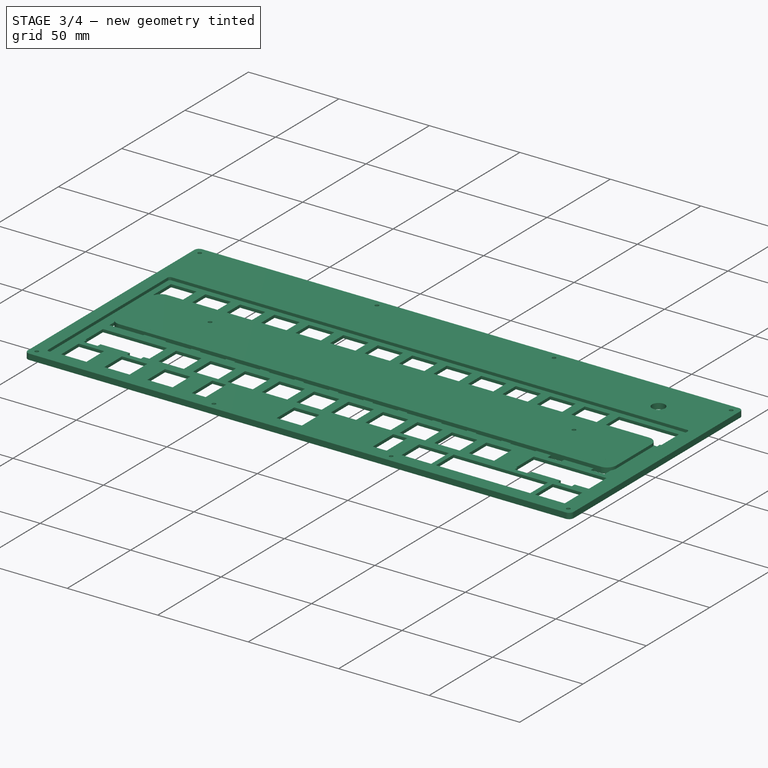
[diagram: stage 3 of 4 — iso view after this stage's code; geometry added in this stage tinted green]
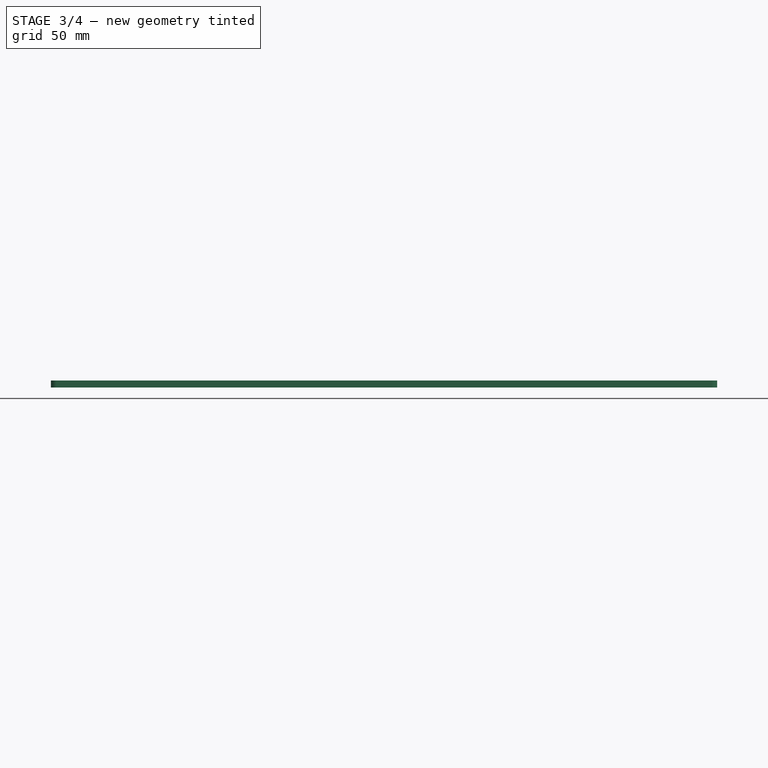
[diagram: stage 3 of 4 — front view after this stage's code; geometry added in this stage tinted green]
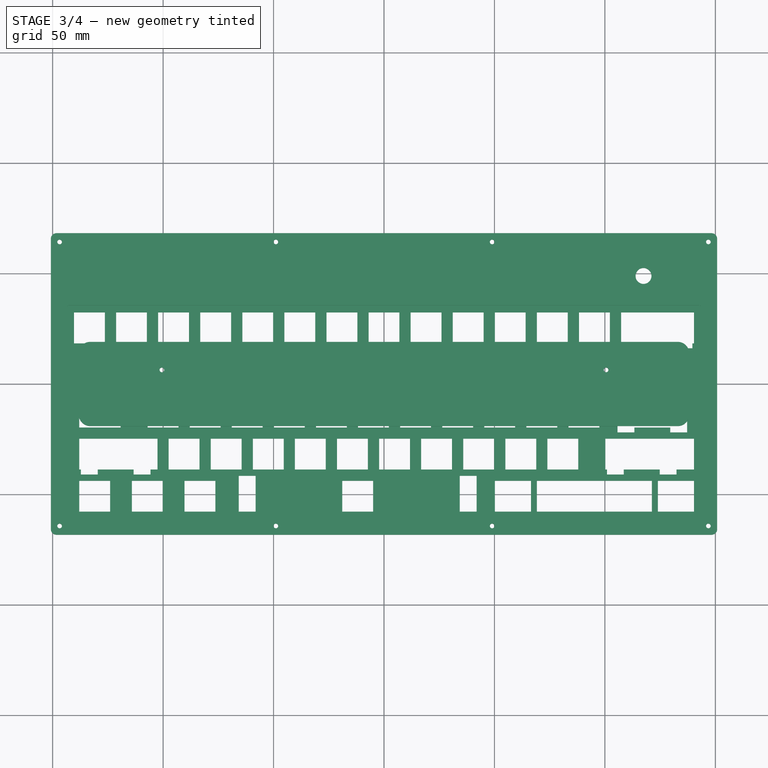
[diagram: stage 3 of 4 — top view after this stage's code; geometry added in this stage tinted green]
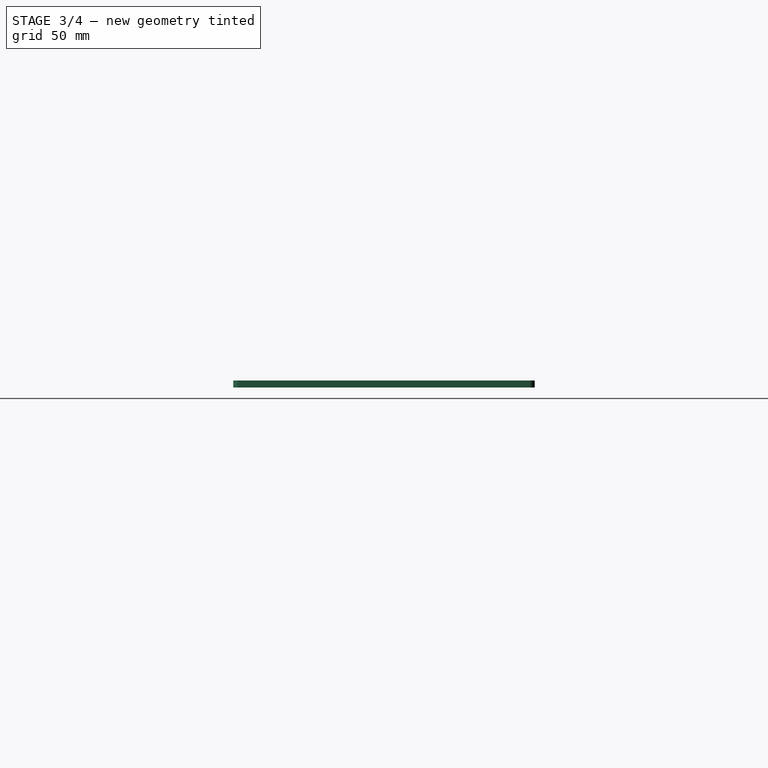
[diagram: stage 3 of 4 — right view after this stage's code; geometry added in this stage tinted green]
FEATURE [PartDesign::CoordinateSystem] LCS_Origin
  AttacherType = Attacher::AttachEngine3D
  MapMode = 2
  Support = -> [X_Axis]
FEATURE [App::DocumentObjectGroup] Constraints
FEATURE [App::FeaturePython] Variables  # WARN: FeaturePython — macro-defined, semantics opaque (R4)
FEATURE [PartDesign::CoordinateSystem] LCS_0
  AttacherType = Attacher::AttachEngine3D
  MapMode = 2
  Support = -> [X_Axis001]
FEATURE [PartDesign::CoordinateSystem] LCS_0001
  AttacherType = Attacher::AttachEngine3D
  MapMode = 2
  Support = -> [X_Axis002]
FEATURE [Sketcher::SketchObject] Sketch
  MapMode = 5
  Support = -> [XY_Plane002]
  expr: Constraints[71] = <<Parameters>>.case_screw_hole
  expr: Constraints[60] = <<Parameters>>.case_hole_edge_dist
  expr: Constraints[57] = <<Parameters>>.case_screw_hole
  expr: Constraints[72] = <<Parameters>>.foot_hole_seperation
  expr: Constraints[24] = <<Parameters>>.case_outter_radius
  expr: Constraints[73] = <<Parameters>>.foot_hole_height_from_center
  expr: Constraints[74] = <<Parameters>>.case_height
  expr: Constraints[61] = <<Parameters>>.case_hole_edge_dist
  expr: Constraints[23] = <<Parameters>>.case_width
  sketch-geometry (27):
    g0: ArcOfCircle CenterX=-148.272 CenterY=65.7225 CenterZ=0 NormalX=0 NormalY=0 NormalZ=1 AngleXU=0 Radius=2.54 StartAngle=1.5708 EndAngle=3.1416
    g1: ArcOfCircle CenterX=-148.272 CenterY=-65.7225 CenterZ=0 NormalX=0 NormalY=0 NormalZ=1 AngleXU=0 Radius=2.54 StartAngle=3.14159 EndAngle=4.71239
    g2: ArcOfCircle CenterX=148.272 CenterY=-65.7225 CenterZ=0 NormalX=0 NormalY=0 NormalZ=1 AngleXU=0 Radius=2.54 StartAngle=4.71239 EndAngle=6.28319
    g3: ArcOfCircle CenterX=148.272 CenterY=65.7225 CenterZ=0 NormalX=0 NormalY=0 NormalZ=1 AngleXU=0 Radius=2.54 StartAngle=6.28318 EndAngle=7.85398
    g4: LineSegment StartX=-148.273 StartY=68.2625 StartZ=0 EndX=148.273 EndY=68.2625 EndZ=0
    g5: LineSegment StartX=150.812 StartY=65.7225 StartZ=0 EndX=150.812 EndY=-65.7225 EndZ=0
    g6: LineSegment StartX=-148.273 StartY=-68.2625 StartZ=0 EndX=148.273 EndY=-68.2625 EndZ=0
    g7: LineSegment StartX=-150.812 StartY=-65.7225 StartZ=0 EndX=-150.812 EndY=65.7225 EndZ=0
    g8: Circle CenterX=-100.542 CenterY=45.5083 CenterZ=0 NormalX=0 NormalY=0 NormalZ=1 AngleXU=0 Radius=1.05
    g9: Circle [constr] CenterX=0 CenterY=45.5083 CenterZ=0 NormalX=0 NormalY=0 NormalZ=1 AngleXU=0 Radius=1.05
    g10: Circle CenterX=100.542 CenterY=45.5083 CenterZ=0 NormalX=0 NormalY=0 NormalZ=1 AngleXU=0 Radius=1.05
    g11: Circle CenterX=-146.844 CenterY=-64.2937 CenterZ=0 NormalX=0 NormalY=0 NormalZ=1 AngleXU=0 Radius=1.05
    g12: Circle CenterX=-48.9479 CenterY=-64.2937 CenterZ=0 NormalX=0 NormalY=0 NormalZ=1 AngleXU=0 Radius=1.05
    g13: Circle CenterX=48.9479 CenterY=-64.2937 CenterZ=0 NormalX=0 NormalY=0 NormalZ=1 AngleXU=0 Radius=1.05
    g14: Circle CenterX=146.844 CenterY=-64.2937 CenterZ=0 NormalX=0 NormalY=0 NormalZ=1 AngleXU=0 Radius=1.05
    g15: Circle CenterX=146.844 CenterY=64.2937 CenterZ=0 NormalX=0 NormalY=0 NormalZ=1 AngleXU=0 Radius=1.05
    g16: Circle CenterX=48.9479 CenterY=64.2937 CenterZ=0 NormalX=0 NormalY=0 NormalZ=1 AngleXU=0 Radius=1.05
    g17: Circle CenterX=-48.9479 CenterY=64.2937 CenterZ=0 NormalX=0 NormalY=0 NormalZ=1 AngleXU=0 Radius=1.05
    g18: Circle CenterX=-146.844 CenterY=64.2937 CenterZ=0 NormalX=0 NormalY=0 NormalZ=1 AngleXU=0 Radius=1.05
    g19: LineSegment [constr] StartX=-146.844 StartY=64.2937 StartZ=0 EndX=-48.9479 EndY=64.2937 EndZ=0
    g20: LineSegment [constr] StartX=-48.9479 StartY=64.2937 StartZ=0 EndX=48.9479 EndY=64.2937 EndZ=0
    g21: LineSegment [constr] StartX=48.9479 StartY=64.2937 StartZ=0 EndX=146.844 EndY=64.2937 EndZ=0
    g22: LineSegment [constr] StartX=-146.844 StartY=-64.2937 StartZ=0 EndX=-48.9479 EndY=-64.2937 EndZ=0
    g23: LineSegment [constr] StartX=-48.9479 StartY=-64.2937 StartZ=0 EndX=48.9479 EndY=-64.2937 EndZ=0
    g24: LineSegment [constr] StartX=48.9479 StartY=-64.2937 StartZ=0 EndX=146.844 EndY=-64.2937 EndZ=0
    g25: LineSegment [constr] StartX=-100.542 StartY=45.5083 StartZ=0 EndX=0 EndY=45.5083 EndZ=0
    g26: LineSegment [constr] StartX=0 StartY=45.5083 StartZ=0 EndX=100.542 EndY=45.5083 EndZ=0
  constraints (75):
    c: Coincident(g4,g0)
    c: Coincident(g4,g3)
    c: Coincident(g5,g3)
    c: Coincident(g6,g1)
    c: Coincident(g6,g2)
    c: Coincident(g7,g1)
    c: Coincident(g7,g0)
    c: Coincident(g5,g2)
    c: Vertical(g7)
    c: Vertical(g5)
    c: Horizontal(g4)
    c: Horizontal(g6)
    c: Tangent(g0,g4)
    c: Tangent(g0,g7)
    c: Tangent(g1,g6)
    c: Tangent(g6,g2)
    c: Tangent(g5,g2)
    c: Tangent(g3,g5)
    c: Tangent(g3,g4)
    c: Symmetric(g0,g2,g-1)
    c: Equal(g0,g3)
    c: Equal(g3,g2)
    c: Equal(g2,g1)
    c: DistanceX(g0,g3) = 301.625
    c: Radius(g0) = 2.54
    c: Tangent(g1,g7)
    c: PointOnObject(g9,g-2)
    c: Coincident(g19,g18)
    c: Coincident(g19,g17)
    c: Coincident(g20,g17)
    c: Coincident(g20,g16)
    c: Coincident(g21,g16)
    c: Coincident(g21,g15)
    c: Coincident(g22,g11)
    c: Coincident(g23,g12)
    c: Coincident(g24,g13)
    c: Coincident(g24,g14)
    c: Coincident(g23,g13)
    c: Coincident(g22,g12)
    c: Horizontal(g19)
    c: Horizontal(g20)
    c: Horizontal(g21)
    c: Horizontal(g24)
    c: Horizontal(g23)
    c: Horizontal(g22)
    c: Equal(g19,g20)
    c: Equal(g20,g21)
    c: Equal(g21,g24)
    c: Equal(g24,g23)
    c: Equal(g23,g22)
    c: Equal(g18,g17)
    c: Equal(g17,g16)
    c: Equal(g16,g15)
    c: Equal(g14,g13)
    c: Equal(g13,g12)
    c: Equal(g12,g11)
    c: Equal(g18,g11)
    c: Diameter(g18) = 2.1
    c: Vertical(g12,g17)
    c: Symmetric(g17,g13,g-1)
    c: DistanceY(g2,g14) = 3.96875
    c: DistanceX(g14,g2) = 3.96875
    c: Coincident(g25,g8)
    c: Coincident(g25,g9)
    c: Coincident(g26,g9)
    c: Coincident(g26,g10)
    c: Equal(g25,g26)
    c: Horizontal(g26)
    c: Horizontal(g25)
    c: Equal(g8,g9)
    c: Equal(g9,g10)
    c: Diameter(g8) = 2.1
    c: DistanceX(g26,g26) = 100.542
    c: DistanceY(g-1,g9) = 45.5083
    c: DistanceY(g2,g3) = 136.525
FEATURE [PartDesign::Pad] Pad
  Direction = (1,1,1)
  Length = 3.175
  Length2 = 99.9998
  Profile = -> Sketch
  Type = 0
FEATURE [PartDesign::Body] Body
  Group = -> [LCS_0001,Sketch,Pad]
  Origin = -> Origin002
  Tip = -> Pad
FEATURE [App::Part] bottom
  Group = -> [LCS_0,Body]
  Origin = -> Origin001
FEATURE [Spreadsheet::Sheet] Spreadsheet  label="Parameters"
  cells = A1=pcb width; B1(pcb_width)==11.25in; A2=pcb height; B2(pcb_height)==4.75in; F2=Col 0; G2=Col 1; H2=Col 2; I2=Col 3; J2=Col 4; K2=Col 5; L2=Col 6; M2=Col 7; N2=Col 8; O2=Col 9; P2=Col 10; Q2=Col 11; R2=Col 12; S2=Col 13; T2=Col 14; D3=Row 0; E3=K<i>_<j>U; F3(K0_0U)=1; G3(K0_1U)=1; H3(K0_2U)=1; I3(K0_3U)=1; J3(K0_4U)=1; K3(K0_5U)=1; L3(K0_6U)=1; M3(K0_7U)=1; N3(K0_8U)=1; O3(K0_9U)=1; P3(K0_10U)=1; Q3(K0_11U)=1; R3(K0_12U)=1; S3(K0_13U)=1; T3(K0_14U)=1; A4=case edge width; B4(case_edge_width)==0.3125in; E4=K<i>_<j>X; F4(K0_0X)==0.375in; G4(K0_1X)==1.125in; H4(K0_2X)==1.875in; I4(K0_3X)==2.625in; J4(K0_4X)==3.375in; K4(K0_5X)==4.125in; L4(K0_6X)==4.875in; M4(K0_7X)==5.625in; N4(K0_8X)==6.375in; O4(K0_9X)==7.125in; P4(K0_10X)==7.875in; Q4(K0_11X)==8.625in; R4(K0_12X)==9.375in; S4(K0_13X)==10.125in; T4(K0_14X)==10.875in; A5=case edge relief; B5(case_edge_relief)==0.03125in; E5=K<i>_<j>Y; F5(K0_jY)==0.375in; A6=case width; B6(case_width)==pcb_width + case_edge_width * 2; A7=case height; B7(case_height)==pcb_height + case_edge_width * 2; D7=Row 1; E7=K<i>_<j>U; F7(K1_0U)=1.5; G7(K1_1U)=1; H7(K1_2U)=1; I7(K1_3U)=1; J7(K1_4U)=1; K7(K1_5U)=1; L7(K1_6U)=1; M7(K1_7U)=1; N7(K1_8U)=1; O7(K1_9U)=1; P7(K1_10U)=1; Q7(K1_11U)=1; R7(K1_12U)=1; S7(K1_13U)=1.5; A8=case outter radius; B8(case_outter_radius)==0.1in; E8=K<i>_<j>X; F8(K1_0X)==0.5625in; G8(K1_1X)==1.5in; H8(K1_2X)==2.25in; I8(K1_3X)==3in; J8(K1_4X)==3.75in; K8(K1_5X)==4.5in; L8(K1_6X)==5.25in; M8(K1_7X)==6in; N8(K1_8X)==6.75in; O8(K1_9X)==7.5in; P8(K1_10X)==8.25in; Q8(K1_11X)==9in; R8(K1_12X)==9.75in; S8(K1_13X)==10.6875in; A9=case inner radius; B9(case_inner_radius)==0.05in; E9=K<i>_<j>Y; F9(K1_jY)==1.125in; A10=case screw hole; B10(case_screw_hole)==2.1mm; A11=case spacer hole; B11(case_spacer_hole)==3.1mm; D11=Row 2; E11=K<i>_<j>U; F11(K2_0U)=; G11(K2_1U)=; H11(K2_2U)=; I11(K2_3U)=; J11(K2_4U)=; K11(K2_5U)=; L11(K2_6U)=; M11(K2_7U)=; N11(K2_8U)=; O11(K2_9U)=; P11(K2_10U)=; Q11(K2_11U)=; R11(K2_12U)=; A12=case hole edge dist; B12(case_hole_edge_dist)==case_edge_width / 2; E12=K<i>_<j>X; F12(K2_0X)==0.65625in; G12(K2_1X)==1.6875in; H12(K2_2X)==2.4375in; I12(K2_3X)==3.1875in; J12(K2_4X)==3.9375in; K12(K2_5X)==4.6875in; L12(K2_6X)==5.4375in; M12(K2_7X)==6.1875in; N12(K2_8X)==6.9375in; O12(K2_9X)==7.6875in; P12(K2_10X)==8.4375in; Q12(K2_11X)==9.1875in; R12(K2_12X)==10.40625in; E13=K<i>_<j>Y; F13(K2_jY)==1.875in; A14=foot hole height from center; B14(foot_hole_height_from_center)==case_height / 2 - case_height / 6; A15=foot hole seperation; B15(foot_hole_seperation)==case_width / 2 - case_width / 6; D15=Row 3; E15=K<i>_<j>U; F15(K3_0U)=1.25; G15(K3_1U)=1; H15(K3_2U)=; I15(K3_3U)=; J15(K3_4U)=; K15(K3_5U)=; L15(K3_6U)=; M15(K3_7U)=; N15(K3_8U)=; O15(K3_9U)=; P15(K3_10U)=; Q15(K3_11U)=1; R15(K3_12U)=1.75; S15(K3_13U)=1; E16=K<i>_<j>X; F16(K3_0X)==K3_0U * U / 2; G16(K3_1X)==K3_0X + K3_0U * U / 2 + K3_1U * U / 2; H16(K3_2X)==2.0625in; I16(K3_3X)==2.8125in; J16(K3_4X)==3.5625in; K16(K3_5X)==4.3125in; L16(K3_6X)==5.0625in; M16(K3_7X)==5.8125in; N16(K3_8X)==6.5625in; O16(K3_9X)==7.3125in; P16(K3_10X)==8.0625in; Q16(K3_11X)==8.8125in; R16(K3_12X)==K3_11X + K3_11U * U / 2 + K3_12U * U / 2; S16(K3_13X)==K3_12X + K3_12U * U / 2 + K3_13U * U / 2; A17=usb offset; B17(usb_offset)==1.65in + case_edge_width; E17=K<i>_<j>Y; F17(K3_jY)==2.625in; A18=usb cutout width; B18(usb_cutout_width)==0.5in; J18=Overlap; D19=Row 4; E19=K<i>_<j>U; F19(K4_0U)=1.25; G19(K4_1U)=1.25; H19(K4_2U)=1.25; I19(K4_3U)=6.25; J19(K4_4U)=1; K19(K4_5U)=1; L19(K4_6U)=1; M19(K4_7U)=1; N19(K4_8U)=1; A20=U; B20(U)==0.75in; E20=K<i>_<j>X; F20(K4_0X)==0.46875in; G20(K4_1X)==1.40625in; H20(K4_2X)==2.34375in; I20(K4_3X)==5.15625in; J20(K4_4X)==K4_3X + K4_3U * U / 2 + K4_4U * U / 2; K20(K4_5X)==K4_4X + K4_4U * U / 2 + K4_5U * U / 2; L20(K4_6X)==K4_5X + K4_5U * U / 2 + K4_6U * U / 2; M20(K4_7X)==K4_6X + K4_6U * U / 2 + K4_7U * U / 2; +7 more cells
FEATURE [PartDesign::CoordinateSystem] LCS_0002
  AttacherType = Attacher::AttachEngine3D
  MapMode = 2
  Support = -> [X_Axis003]
FEATURE [PartDesign::CoordinateSystem] LCS_0003
  AttacherType = Attacher::AttachEngine3D
  MapMode = 2
  Support = -> [X_Axis004]
FEATURE [Sketcher::SketchObject] Sketch001
  MapMode = 5
  Support = -> [XY_Plane004]
  expr: Constraints[23] = <<Parameters>>.case_outter_radius
  expr: Constraints[24] = <<Parameters>>.case_width
  expr: Constraints[25] = <<Parameters>>.case_height
  expr: Constraints[51] = <<Parameters>>.case_edge_width - <<Parameters>>.case_edge_relief
  expr: Constraints[50] = <<Parameters>>.case_inner_radius
  expr: Constraints[52] = <<Parameters>>.case_edge_width - <<Parameters>>.case_edge_relief
  expr: Constraints[53] = <<Parameters>>.case_edge_width - <<Parameters>>.case_edge_relief
  expr: Constraints[54] = <<Parameters>>.case_edge_width - <<Parameters>>.case_edge_relief
  expr: Constraints[86] = <<Parameters>>.case_spacer_hole
  expr: Constraints[88] = <<Parameters>>.case_hole_edge_dist
  expr: Constraints[87] = <<Parameters>>.case_hole_edge_dist
  expr: Constraints[89] = <<Parameters>>.case_hole_edge_dist
  sketch-geometry (30):
    g0: ArcOfCircle CenterX=-148.273 CenterY=65.7225 CenterZ=0 NormalX=0 NormalY=0 NormalZ=1 AngleXU=0 Radius=2.54 StartAngle=1.5708 EndAngle=3.1416
    g1: ArcOfCircle CenterX=-148.273 CenterY=-65.7225 CenterZ=0 NormalX=0 NormalY=0 NormalZ=1 AngleXU=0 Radius=2.54 StartAngle=3.14159 EndAngle=4.71239
    g2: ArcOfCircle CenterX=148.272 CenterY=-65.7225 CenterZ=0 NormalX=0 NormalY=0 NormalZ=1 AngleXU=0 Radius=2.54 StartAngle=4.71239 EndAngle=6.28319
    g3: ArcOfCircle CenterX=148.272 CenterY=65.7225 CenterZ=0 NormalX=0 NormalY=0 NormalZ=1 AngleXU=0 Radius=2.54 StartAngle=6.28318 EndAngle=7.85398
    g4: LineSegment StartX=-150.813 StartY=65.7225 StartZ=0 EndX=-150.813 EndY=-65.7225 EndZ=0
    g5: LineSegment StartX=-148.273 StartY=68.2625 StartZ=0 EndX=148.273 EndY=68.2625 EndZ=0
    g6: LineSegment StartX=150.812 StartY=65.7225 StartZ=0 EndX=150.812 EndY=-65.7225 EndZ=0
    g7: LineSegment StartX=-148.273 StartY=-68.2625 StartZ=0 EndX=148.273 EndY=-68.2625 EndZ=0
    g8: ArcOfCircle CenterX=-142.399 CenterY=59.8487 CenterZ=0 NormalX=0 NormalY=0 NormalZ=1 AngleXU=0 Radius=1.27 StartAngle=1.5708 EndAngle=3.14159
    g9: ArcOfCircle CenterX=-142.399 CenterY=-59.8487 CenterZ=0 NormalX=0 NormalY=0 NormalZ=1 AngleXU=0 Radius=1.27 StartAngle=3.14159 EndAngle=4.71239
    g10: ArcOfCircle CenterX=142.399 CenterY=-59.8487 CenterZ=0 NormalX=0 NormalY=0 NormalZ=1 AngleXU=0 Radius=1.27 StartAngle=4.71239 EndAngle=6.28319
    g11: ArcOfCircle CenterX=142.399 CenterY=59.8487 CenterZ=0 NormalX=0 NormalY=0 NormalZ=1 AngleXU=0 Radius=1.27 StartAngle=6.28319 EndAngle=7.85398
    g12: LineSegment StartX=143.669 StartY=59.8487 StartZ=0 EndX=143.669 EndY=-59.8488 EndZ=0
    g13: LineSegment StartX=142.399 StartY=-61.1187 StartZ=0 EndX=-142.399 EndY=-61.1187 EndZ=0
    g14: LineSegment StartX=142.399 StartY=61.1187 StartZ=0 EndX=-142.399 EndY=61.1187 EndZ=0
    g15: LineSegment StartX=-143.669 StartY=59.8488 StartZ=0 EndX=-143.669 EndY=-59.8487 EndZ=0
    g16: Circle CenterX=-146.844 CenterY=64.2937 CenterZ=0 NormalX=0 NormalY=0 NormalZ=1 AngleXU=0 Radius=1.55
    g17: Circle CenterX=-48.9479 CenterY=64.2937 CenterZ=0 NormalX=0 NormalY=0 NormalZ=1 AngleXU=0 Radius=1.55
    g18: Circle CenterX=48.9479 CenterY=64.2937 CenterZ=0 NormalX=0 NormalY=0 NormalZ=1 AngleXU=0 Radius=1.55
    g19: Circle CenterX=146.844 CenterY=64.2937 CenterZ=0 NormalX=0 NormalY=0 NormalZ=1 AngleXU=0 Radius=1.55
    g20: Circle CenterX=146.844 CenterY=-64.2937 CenterZ=0 NormalX=0 NormalY=0 NormalZ=1 AngleXU=0 Radius=1.55
    g21: Circle CenterX=48.9479 CenterY=-64.2937 CenterZ=0 NormalX=0 NormalY=0 NormalZ=1 AngleXU=0 Radius=1.55
    g22: Circle CenterX=-48.9479 CenterY=-64.2937 CenterZ=0 NormalX=0 NormalY=0 NormalZ=1 AngleXU=0 Radius=1.55
    g23: Circle CenterX=-146.844 CenterY=-64.2937 CenterZ=0 NormalX=0 NormalY=0 NormalZ=1 AngleXU=0 Radius=1.55
    g24: LineSegment [constr] StartX=-146.844 StartY=64.2937 StartZ=0 EndX=-48.9479 EndY=64.2937 EndZ=0
    g25: LineSegment [constr] StartX=-48.9479 StartY=64.2937 StartZ=0 EndX=48.9479 EndY=64.2937 EndZ=0
    g26: LineSegment [constr] StartX=48.9479 StartY=64.2937 StartZ=0 EndX=146.844 EndY=64.2937 EndZ=0
    g27: LineSegment [constr] StartX=146.844 StartY=-64.2937 StartZ=0 EndX=48.9479 EndY=-64.2937 EndZ=0
    g28: LineSegment [constr] StartX=48.9479 StartY=-64.2937 StartZ=0 EndX=-48.9479 EndY=-64.2937 EndZ=0
    g29: LineSegment [constr] StartX=-48.9479 StartY=-64.2937 StartZ=0 EndX=-146.844 EndY=-64.2937 EndZ=0
  constraints (90):
    c: Coincident(g0,g5)
    c: Coincident(g4,g0)
    c: Coincident(g4,g1)
    c: Coincident(g7,g1)
    c: Coincident(g7,g2)
    c: Coincident(g6,g2)
    c: Coincident(g6,g3)
    c: Coincident(g5,g3)
    c: Tangent(g5,g3)
    c: Tangent(g3,g6)
    c: Tangent(g6,g2)
    c: Tangent(g2,g7)
    c: Tangent(g7,g1)
    c: Tangent(g1,g4)
    c: Tangent(g0,g4)
    c: Tangent(g5,g0)
    c: Horizontal(g5)
    c: Horizontal(g7)
    c: Vertical(g4)
    c: Vertical(g6)
    c: Equal(g0,g3)
    c: Equal(g3,g2)
    c: Equal(g2,g1)
    c: Radius(g0) = 2.54
    c: DistanceX(g0,g3) = 301.625
    c: DistanceY(g2,g3) = 136.525
    c: Symmetric(g0,g2,g-1)
    c: Coincident(g15,g8)
    c: Coincident(g15,g9)
    c: Coincident(g9,g13)
    c: Coincident(g14,g8)
    c: Coincident(g11,g14)
    c: Coincident(g11,g12)
    c: Coincident(g12,g10)
    c: Coincident(g10,g13)
    c: Tangent(g8,g14)
    c: Tangent(g14,g11)
    c: Tangent(g11,g12)
    c: Tangent(g12,g10)
    c: Tangent(g10,g13)
    c: Tangent(g13,g9)
    c: Tangent(g9,g15)
    c: Tangent(g15,g8)
    c: Vertical(g15)
    c: Vertical(g12)
    c: Horizontal(g14)
    c: Horizontal(g13)
    c: Equal(g8,g11)
    c: Equal(g11,g10)
    c: Equal(g9,g10)
    c: Radius(g8) = 1.27
    c: DistanceY(g8,g0) = 7.14375
    c: DistanceX(g0,g8) = 7.14375
    c: DistanceX(g10,g2) = 7.14375
    c: DistanceY(g2,g10) = 7.14375
    c: Equal(g16,g17)
    c: Equal(g17,g18)
    c: Equal(g18,g19)
    c: Equal(g19,g20)
    c: Equal(g20,g21)
    c: Equal(g21,g22)
    c: Equal(g22,g23)
    c: Equal(g24,g25)
    c: Equal(g25,g26)
    c: Equal(g26,g27)
    c: Equal(g27,g28)
    c: Equal(g28,g29)
    c: Coincident(g24,g16)
    c: Coincident(g24,g17)
    c: Coincident(g25,g17)
    c: Coincident(g25,g18)
    c: Coincident(g18,g26)
    c: Coincident(g26,g19)
    c: Coincident(g27,g20)
    c: Coincident(g27,g21)
    c: Coincident(g28,g21)
    c: Coincident(g28,g22)
    c: Coincident(g29,g22)
    c: Coincident(g23,g29)
    c: Horizontal(g24)
    c: Horizontal(g25)
    c: Horizontal(g26)
    c: Horizontal(g27)
    c: Horizontal(g28)
    c: Horizontal(g29)
    c: Symmetric(g17,g21,g-1)
    c: Diameter(g16) = 3.1
    c: DistanceX(g20,g2) = 3.96875
    c: DistanceY(g2,g20) = 3.96875
    c: DistanceX(g1,g23) = 3.96875
FEATURE [PartDesign::Pad] Pad001
  Direction = (1,1,1)
  Length = 3.175
  Length2 = 99.9998
  Profile = -> Sketch001
  Type = 0
FEATURE [PartDesign::Body] Body_2
  Group = -> [LCS_0003,Sketch001,Pad001]
  Origin = -> Origin004
  Tip = -> Pad001
FEATURE [App::Part] closed_spacer
  Group = -> [LCS_0002,Body_2]
  Origin = -> Origin003
FEATURE [PartDesign::CoordinateSystem] LCS_0004
  AttacherType = Attacher::AttachEngine3D
  MapMode = 2
  Support = -> [X_Axis005]
FEATURE [PartDesign::CoordinateSystem] LCS_0005
  AttacherType = Attacher::AttachEngine3D
  MapMode = 2
  Support = -> [X_Axis006]
FEATURE [Sketcher::SketchObject] Sketch002
  MapMode = 5
  Support = -> [XY_Plane006]
  expr: Constraints[24] = <<Parameters>>.case_width
  expr: Constraints[25] = <<Parameters>>.case_height
  expr: Constraints[51] = <<Parameters>>.case_edge_width - <<Parameters>>.case_edge_relief
  expr: Constraints[122] = <<Parameters>>.case_hole_edge_dist
  expr: Constraints[19] = <<Parameters>>.case_outter_radius
  expr: Constraints[50] = <<Parameters>>.case_inner_radius
  expr: Constraints[52] = <<Parameters>>.case_edge_width - <<Parameters>>.case_edge_relief
  expr: Constraints[53] = <<Parameters>>.case_edge_width - <<Parameters>>.case_edge_relief
  expr: Constraints[54] = <<Parameters>>.case_edge_width - <<Parameters>>.case_edge_relief
  expr: Constraints[58] = <<Parameters>>.case_inner_radius
  expr: Constraints[87] = <<Parameters>>.usb_cutout_width
  expr: Constraints[121] = <<Parameters>>.case_hole_edge_dist
  expr: Constraints[86] = <<Parameters>>.usb_offset
  expr: Constraints[95] = <<Parameters>>.case_spacer_hole
  expr: Constraints[120] = <<Parameters>>.case_hole_edge_dist
  sketch-geometry (41):
    g0: LineSegment [constr] StartX=-148.273 StartY=68.2625 StartZ=0 EndX=148.273 EndY=68.2625 EndZ=0
    g1: LineSegment StartX=-150.812 StartY=65.7225 StartZ=0 EndX=-150.812 EndY=-65.7225 EndZ=0
    g2: LineSegment StartX=-148.272 StartY=-68.2625 StartZ=0 EndX=148.273 EndY=-68.2625 EndZ=0
    g3: LineSegment StartX=150.813 StartY=65.7225 StartZ=0 EndX=150.813 EndY=-65.7225 EndZ=0
    g4: ArcOfCircle CenterX=-148.272 CenterY=65.7225 CenterZ=0 NormalX=0 NormalY=0 NormalZ=1 AngleXU=0 Radius=2.54 StartAngle=1.5708 EndAngle=3.14159
    g5: ArcOfCircle CenterX=148.273 CenterY=65.7225 CenterZ=0 NormalX=0 NormalY=0 NormalZ=1 AngleXU=0 Radius=2.54 StartAngle=5.25631e-06 EndAngle=1.5708
    g6: ArcOfCircle CenterX=148.273 CenterY=-65.7225 CenterZ=0 NormalX=0 NormalY=0 NormalZ=1 AngleXU=0 Radius=2.54 StartAngle=4.71239 EndAngle=6.28319
    g7: ArcOfCircle CenterX=-148.272 CenterY=-65.7225 CenterZ=0 NormalX=0 NormalY=0 NormalZ=1 AngleXU=0 Radius=2.54 StartAngle=3.14159 EndAngle=4.71239
    g8: ArcOfCircle CenterX=-142.399 CenterY=59.8488 CenterZ=0 NormalX=0 NormalY=0 NormalZ=1 AngleXU=0 Radius=1.27 StartAngle=1.5708 EndAngle=3.1416
    g9: ArcOfCircle CenterX=-142.399 CenterY=-59.8487 CenterZ=0 NormalX=0 NormalY=0 NormalZ=1 AngleXU=0 Radius=1.27 StartAngle=3.14159 EndAngle=4.71239
    g10: ArcOfCircle CenterX=142.399 CenterY=-59.8487 CenterZ=0 NormalX=0 NormalY=0 NormalZ=1 AngleXU=0 Radius=1.27 StartAngle=4.71239 EndAngle=6.28319
    g11: ArcOfCircle CenterX=142.399 CenterY=59.8488 CenterZ=0 NormalX=0 NormalY=0 NormalZ=1 AngleXU=0 Radius=1.27 StartAngle=6.28318 EndAngle=7.85398
    g12: LineSegment [constr] StartX=-142.399 StartY=61.1187 StartZ=0 EndX=142.399 EndY=61.1187 EndZ=0
    g13: LineSegment StartX=-143.669 StartY=59.8487 StartZ=0 EndX=-143.669 EndY=-59.8488 EndZ=0
    g14: LineSegment StartX=-142.399 StartY=-61.1187 StartZ=0 EndX=142.399 EndY=-61.1187 EndZ=0
    g15: LineSegment StartX=143.669 StartY=-59.8487 StartZ=0 EndX=143.669 EndY=59.8487 EndZ=0
    g16: LineSegment StartX=-142.399 StartY=61.1187 StartZ=0 EndX=93.345 EndY=61.1187 EndZ=0
    g17: LineSegment StartX=94.615 StartY=62.3887 StartZ=0 EndX=94.615 EndY=66.9925 EndZ=0
    g18: LineSegment StartX=93.345 StartY=68.2625 StartZ=0 EndX=-148.273 EndY=68.2625 EndZ=0
    g19: LineSegment StartX=108.585 StartY=68.2625 StartZ=0 EndX=148.273 EndY=68.2625 EndZ=0
    g20: LineSegment StartX=142.399 StartY=61.1187 StartZ=0 EndX=108.585 EndY=61.1188 EndZ=0
    g21: LineSegment StartX=107.315 StartY=62.3888 StartZ=0 EndX=107.315 EndY=66.9925 EndZ=0
    g22: ArcOfCircle CenterX=108.585 CenterY=66.9925 CenterZ=0 NormalX=0 NormalY=0 NormalZ=1 AngleXU=0 Radius=1.27 StartAngle=1.5708 EndAngle=3.14159
    g23: ArcOfCircle CenterX=108.585 CenterY=62.3888 CenterZ=0 NormalX=0 NormalY=0 NormalZ=1 AngleXU=0 Radius=1.27 StartAngle=3.14159 EndAngle=4.71238
    g24: ArcOfCircle CenterX=93.345 CenterY=66.9925 CenterZ=0 NormalX=0 NormalY=0 NormalZ=1 AngleXU=0 Radius=1.27 StartAngle=7.44682e-07 EndAngle=1.5708
    g25: ArcOfCircle CenterX=93.345 CenterY=62.3887 CenterZ=0 NormalX=0 NormalY=0 NormalZ=1 AngleXU=0 Radius=1.27 StartAngle=4.71239 EndAngle=6.28318
    g26: GeomPoint X=100.965 Y=64.6906 Z=0
    g27: Circle CenterX=-146.844 CenterY=64.2937 CenterZ=0 NormalX=0 NormalY=0 NormalZ=1 AngleXU=0 Radius=1.55
    g28: Circle CenterX=-48.9479 CenterY=64.2937 CenterZ=0 NormalX=0 NormalY=0 NormalZ=1 AngleXU=0 Radius=1.55
    g29: Circle CenterX=48.9479 CenterY=64.2937 CenterZ=0 NormalX=0 NormalY=0 NormalZ=1 AngleXU=0 Radius=1.55
    g30: Circle CenterX=146.844 CenterY=64.2937 CenterZ=0 NormalX=0 NormalY=0 NormalZ=1 AngleXU=0 Radius=1.55
    g31: Circle CenterX=-146.844 CenterY=-64.2937 CenterZ=0 NormalX=0 NormalY=0 NormalZ=1 AngleXU=0 Radius=1.55
    g32: Circle CenterX=-48.9479 CenterY=-64.2937 CenterZ=0 NormalX=0 NormalY=0 NormalZ=1 AngleXU=0 Radius=1.55
    g33: Circle CenterX=48.9479 CenterY=-64.2937 CenterZ=0 NormalX=0 NormalY=0 NormalZ=1 AngleXU=0 Radius=1.55
    g34: Circle CenterX=146.844 CenterY=-64.2937 CenterZ=0 NormalX=0 NormalY=0 NormalZ=1 AngleXU=0 Radius=1.55
    g35: LineSegment [constr] StartX=-146.844 StartY=64.2937 StartZ=0 EndX=-48.9479 EndY=64.2937 EndZ=0
    g36: LineSegment [constr] StartX=-48.9479 StartY=64.2937 StartZ=0 EndX=48.9479 EndY=64.2937 EndZ=0
    g37: LineSegment [constr] StartX=48.9479 StartY=64.2937 StartZ=0 EndX=146.844 EndY=64.2937 EndZ=0
    g38: LineSegment [constr] StartX=-146.844 StartY=-64.2937 StartZ=0 EndX=-48.9479 EndY=-64.2937 EndZ=0
    g39: LineSegment [constr] StartX=-48.9479 StartY=-64.2937 StartZ=0 EndX=48.9479 EndY=-64.2937 EndZ=0
    g40: LineSegment [constr] StartX=48.9479 StartY=-64.2937 StartZ=0 EndX=146.844 EndY=-64.2937 EndZ=0
  constraints (123):
    c: Coincident(g4,g0)
    c: Coincident(g4,g1)
    c: Coincident(g1,g7)
    c: Coincident(g7,g2)
    c: Coincident(g6,g2)
    c: Coincident(g3,g6)
    c: Coincident(g0,g5)
    c: Coincident(g3,g5)
    c: Tangent(g4,g0)
    c: Tangent(g4,g1)
    c: Tangent(g1,g7)
    c: Tangent(g7,g2)
    c: Tangent(g2,g6)
    c: Tangent(g6,g3)
    c: Tangent(g3,g5)
    c: Tangent(g5,g0)
    c: Equal(g4,g5)
    c: Equal(g5,g6)
    c: Equal(g6,g7)
    c: Radius(g4) = 2.54
    c: Vertical(g1)
    c: Vertical(g3)
    c: Horizontal(g0)
    c: Horizontal(g2)
    c: DistanceX(g1,g3) = 301.625
    c: DistanceY(g2,g5) = 136.525
    c: Symmetric(g4,g2,g-1)
    c: Horizontal(g12)
    c: Horizontal(g14)
    c: Vertical(g13)
    c: Vertical(g15)
    c: Coincident(g12,g8)
    c: Coincident(g13,g8)
    c: Coincident(g9,g13)
    c: Coincident(g9,g14)
    c: Coincident(g14,g10)
    c: Coincident(g10,g15)
    c: Coincident(g15,g11)
    c: Coincident(g12,g11)
    c: Equal(g8,g9)
    c: Equal(g9,g10)
    c: Equal(g10,g11)
    c: Tangent(g12,g8)
    c: Tangent(g8,g13)
    c: Tangent(g13,g9)
    c: Tangent(g9,g14)
    c: Tangent(g14,g10)
    c: Tangent(g10,g15)
    c: Tangent(g15,g11)
    c: Tangent(g11,g12)
    c: Radius(g8) = 1.27
    c: DistanceX(g1,g8) = 7.14375
    c: DistanceY(g8,g4) = 7.14375
    c: DistanceY(g2,g10) = 7.14375
    c: DistanceX(g10,g3) = 7.14375
    c: Equal(g25,g23)
    c: Equal(g23,g22)
    c: Equal(g22,g24)
    c: Radius(g24) = 1.27
    c: Coincident(g18,g24)
    c: Coincident(g24,g17)
    c: Coincident(g25,g17)
    c: Coincident(g16,g25)
    c: Coincident(g23,g21)
    c: Coincident(g21,g22)
    c: Coincident(g22,g19)
    c: Coincident(g23,g20)
    c: Coincident(g20,g11)
    c: Coincident(g19,g5)
    c: Coincident(g18,g4)
    c: Coincident(g16,g8)
    c: Tangent(g18,g24)
    c: Tangent(g17,g24)
    c: Tangent(g17,g25)
    c: Tangent(g25,g16)
    c: Tangent(g23,g21)
    c: Tangent(g23,g20)
    c: Tangent(g21,g22)
    c: Tangent(g22,g19)
    c: PointOnObject(g19,g0)
    c: PointOnObject(g20,g12)
    c: PointOnObject(g18,g0)
    c: PointOnObject(g16,g12)
    c: Vertical(g17)
    c: Vertical(g21)
    c: Symmetric(g17,g21,g26)
    c: DistanceX(g26,g3) = 49.8475
    c: DistanceX(g17,g21) = 12.7
    c: Equal(g27,g28)
    c: Equal(g28,g29)
    c: Equal(g29,g30)
    c: Equal(g30,g34)
    c: Equal(g34,g33)
    c: Equal(g33,g32)
    c: Equal(g32,g31)
    c: Diameter(g27) = 3.1
    c: Coincident(g35,g27)
    c: Coincident(g36,g35)
    c: Coincident(g35,g28)
    c: Coincident(g36,g37)
    c: Coincident(g36,g29)
    c: Coincident(g37,g30)
    c: Coincident(g38,g31)
    c: Coincident(g38,g32)
    c: Coincident(g39,g32)
    c: Coincident(g39,g33)
    c: Coincident(g40,g33)
    c: Coincident(g34,g40)
    c: Equal(g40,g39)
    c: Equal(g39,g38)
    c: Equal(g38,g35)
    c: Equal(g35,g36)
    c: Equal(g36,g37)
    c: Horizontal(g35)
    c: Horizontal(g36)
    c: Horizontal(g37)
    c: Horizontal(g40)
    c: Horizontal(g39)
    c: Horizontal(g38)
    c: Symmetric(g28,g33,g-1)
    c: DistanceX(g34,g3) = 3.96875
    c: DistanceY(g2,g34) = 3.96875
    c: DistanceX(g1,g31) = 3.96875
FEATURE [PartDesign::Pad] Pad002
  Direction = (1,1,1)
  Length = 3.175
  Length2 = 99.9998
  Profile = -> Sketch002
  Type = 0
FEATURE [PartDesign::Body] Body_3
  Group = -> [LCS_0005,Sketch002,Pad002]
  Origin = -> Origin006
  Tip = -> Pad002
FEATURE [App::Part] usb_spacer
  Group = -> [LCS_0004,Body_3]
  Origin = -> Origin005
FEATURE [PartDesign::CoordinateSystem] LCS_0006
  AttacherType = Attacher::AttachEngine3D
  MapMode = 2
  Support = -> [X_Axis007]
FEATURE [PartDesign::CoordinateSystem] LCS_0007
  AttacherType = Attacher::AttachEngine3D
  MapMode = 2
  Support = -> [X_Axis008]
FEATURE [Sketcher::SketchObject] Sketch003
  MapMode = 5
  Support = -> [XY_Plane008]
  expr: Constraints[23] = <<Parameters>>.case_height
  expr: Constraints[25] = <<Parameters>>.case_outter_radius
  expr: Constraints[68] = <<Parameters>>.case_spacer_hole
  expr: Constraints[24] = <<Parameters>>.case_width
  expr: Constraints[69] = <<Parameters>>.case_spacer_hole / 2
  expr: Constraints[71] = <<Parameters>>.case_hole_edge_dist
  expr: Constraints[128] = <<Parameters>>.case_hole_edge_dist
  sketch-geometry (55):
    g0: LineSegment StartX=-150.812 StartY=65.7225 StartZ=0 EndX=-150.812 EndY=-65.7225 EndZ=0
    g1: LineSegment StartX=-148.273 StartY=-68.2625 StartZ=0 EndX=148.273 EndY=-68.2625 EndZ=0
    g2: LineSegment StartX=150.812 StartY=65.7225 StartZ=0 EndX=150.812 EndY=-65.7225 EndZ=0
    g3: LineSegment StartX=-148.273 StartY=68.2625 StartZ=0 EndX=148.272 EndY=68.2625 EndZ=0
    g4: ArcOfCircle CenterX=148.273 CenterY=65.7225 CenterZ=0 NormalX=0 NormalY=0 NormalZ=1 AngleXU=0 Radius=2.54 StartAngle=6.28319 EndAngle=7.85398
    g5: ArcOfCircle CenterX=148.273 CenterY=-65.7225 CenterZ=0 NormalX=0 NormalY=0 NormalZ=1 AngleXU=0 Radius=2.54 StartAngle=4.71239 EndAngle=6.28319
    g6: ArcOfCircle CenterX=-148.273 CenterY=-65.7225 CenterZ=0 NormalX=0 NormalY=0 NormalZ=1 AngleXU=0 Radius=2.54 StartAngle=3.14159 EndAngle=4.71239
    g7: ArcOfCircle CenterX=-148.273 CenterY=65.7225 CenterZ=0 NormalX=0 NormalY=0 NormalZ=1 AngleXU=0 Radius=2.54 StartAngle=1.5708 EndAngle=3.14159
    g8: ArcOfCircle CenterX=-147.554 CenterY=64.6046 CenterZ=0 NormalX=0 NormalY=0 NormalZ=1 AngleXU=0 Radius=1.55 StartAngle=1.1581 EndAngle=4.2997
    g9: ArcOfCircle CenterX=-146.134 CenterY=63.9829 CenterZ=0 NormalX=0 NormalY=0 NormalZ=1 AngleXU=0 Radius=1.55 StartAngle=4.2997 EndAngle=7.44129
    g10: LineSegment StartX=-148.175 StartY=63.1847 StartZ=0 EndX=-146.755 EndY=62.563 EndZ=0
    g11: LineSegment StartX=-146.932 StartY=66.0245 StartZ=0 EndX=-145.512 EndY=65.4028 EndZ=0
    g12: ArcOfCircle CenterX=-147.554 CenterY=-64.6046 CenterZ=0 NormalX=0 NormalY=0 NormalZ=1 AngleXU=0 Radius=1.55 StartAngle=1.98349 EndAngle=5.12508
    g13: ArcOfCircle CenterX=-146.134 CenterY=-63.9829 CenterZ=0 NormalX=0 NormalY=0 NormalZ=1 AngleXU=0 Radius=1.55 StartAngle=5.12508 EndAngle=8.26668
    g14: LineSegment StartX=-146.932 StartY=-66.0245 StartZ=0 EndX=-145.512 EndY=-65.4028 EndZ=0
    g15: LineSegment StartX=-148.175 StartY=-63.1847 StartZ=0 EndX=-146.755 EndY=-62.563 EndZ=0
    g16: ArcOfCircle CenterX=146.134 CenterY=-63.9829 CenterZ=0 NormalX=0 NormalY=0 NormalZ=1 AngleXU=0 Radius=1.55 StartAngle=1.1581 EndAngle=4.2997
    g17: ArcOfCircle CenterX=147.554 CenterY=-64.6046 CenterZ=0 NormalX=0 NormalY=0 NormalZ=1 AngleXU=0 Radius=1.55 StartAngle=4.2997 EndAngle=7.44129
    g18: LineSegment StartX=145.512 StartY=-65.4028 StartZ=0 EndX=146.932 EndY=-66.0245 EndZ=0
    g19: LineSegment StartX=146.755 StartY=-62.563 StartZ=0 EndX=148.175 EndY=-63.1847 EndZ=0
    g20: ArcOfCircle CenterX=147.554 CenterY=64.6046 CenterZ=0 NormalX=0 NormalY=0 NormalZ=1 AngleXU=0 Radius=1.55 StartAngle=5.12508 EndAngle=8.26668
    g21: ArcOfCircle CenterX=146.134 CenterY=63.9829 CenterZ=0 NormalX=0 NormalY=0 NormalZ=1 AngleXU=0 Radius=1.55 StartAngle=1.98349 EndAngle=5.12508
    g22: LineSegment StartX=146.932 StartY=66.0245 StartZ=0 EndX=145.512 EndY=65.4028 EndZ=0
    g23: LineSegment StartX=148.175 StartY=63.1847 StartZ=0 EndX=146.755 EndY=62.563 EndZ=0
    g24: LineSegment [constr] StartX=-147.554 StartY=-64.6046 StartZ=0 EndX=0 EndY=0 EndZ=0
    g25: LineSegment [constr] StartX=0 StartY=0 StartZ=0 EndX=-147.554 EndY=64.6046 EndZ=0
    g26: LineSegment [constr] StartX=0 StartY=0 StartZ=0 EndX=147.554 EndY=64.6046 EndZ=0
    g27: LineSegment [constr] StartX=0 StartY=0 StartZ=0 EndX=147.554 EndY=-64.6046 EndZ=0
    g28: GeomPoint X=-146.844 Y=64.2937 Z=0
    g29: ArcOfCircle CenterX=-49.4174 CenterY=64.9104 CenterZ=0 NormalX=0 NormalY=0 NormalZ=1 AngleXU=0 Radius=1.55 StartAngle=0.650705 EndAngle=3.7923
    g30: ArcOfCircle CenterX=-48.4785 CenterY=63.6771 CenterZ=0 NormalX=0 NormalY=0 NormalZ=1 AngleXU=0 Radius=1.55 StartAngle=3.7923 EndAngle=6.93389
    g31: LineSegment StartX=-50.6506 StartY=63.9715 StartZ=0 EndX=-49.7117 EndY=62.7382 EndZ=0
    g32: LineSegment StartX=-48.1841 StartY=65.8493 StartZ=0 EndX=-47.2452 EndY=64.616 EndZ=0
    g33: ArcOfCircle CenterX=48.4785 CenterY=63.6771 CenterZ=0 NormalX=0 NormalY=0 NormalZ=1 AngleXU=0 Radius=1.55 StartAngle=2.49089 EndAngle=5.63248
    g34: ArcOfCircle CenterX=49.4174 CenterY=64.9104 CenterZ=0 NormalX=0 NormalY=0 NormalZ=1 AngleXU=0 Radius=1.55 StartAngle=5.63248 EndAngle=8.77407
    g35: LineSegment StartX=49.7117 StartY=62.7382 StartZ=0 EndX=50.6506 EndY=63.9715 EndZ=0
    g36: LineSegment StartX=47.2452 StartY=64.616 StartZ=0 EndX=48.1841 EndY=65.8493 EndZ=0
    g37: ArcOfCircle CenterX=48.4785 CenterY=-63.6771 CenterZ=0 NormalX=0 NormalY=0 NormalZ=1 AngleXU=0 Radius=1.55 StartAngle=0.650705 EndAngle=3.7923
    g38: ArcOfCircle CenterX=49.4174 CenterY=-64.9104 CenterZ=0 NormalX=0 NormalY=0 NormalZ=1 AngleXU=0 Radius=1.55 StartAngle=3.7923 EndAngle=6.93389
    g39: LineSegment StartX=47.2452 StartY=-64.616 StartZ=0 EndX=48.1841 EndY=-65.8493 EndZ=0
    g40: LineSegment StartX=49.7117 StartY=-62.7382 StartZ=0 EndX=50.6506 EndY=-63.9715 EndZ=0
    g41: ArcOfCircle CenterX=-48.4785 CenterY=-63.6771 CenterZ=0 NormalX=0 NormalY=0 NormalZ=1 AngleXU=0 Radius=1.55 StartAngle=5.63248 EndAngle=8.77407
    g42: ArcOfCircle CenterX=-49.4174 CenterY=-64.9104 CenterZ=0 NormalX=0 NormalY=0 NormalZ=1 AngleXU=0 Radius=1.55 StartAngle=2.49089 EndAngle=5.63248
    g43: LineSegment StartX=-49.7117 StartY=-62.7382 StartZ=0 EndX=-50.6506 EndY=-63.9715 EndZ=0
    g44: LineSegment StartX=-47.2452 StartY=-64.616 StartZ=0 EndX=-48.1841 EndY=-65.8493 EndZ=0
    g45: LineSegment [constr] StartX=-49.4174 StartY=64.9104 StartZ=0 EndX=0 EndY=0 EndZ=0
    g46: LineSegment [constr] StartX=49.4174 StartY=64.9104 StartZ=0 EndX=0 EndY=0 EndZ=0
    g47: LineSegment [constr] StartX=0 StartY=0 StartZ=0 EndX=49.4174 EndY=-64.9104 EndZ=0
    g48: LineSegment [constr] StartX=-49.4174 StartY=-64.9104 StartZ=0 EndX=0 EndY=0 EndZ=0
    g49: GeomPoint X=-48.9479 Y=64.2937 Z=0
    g50: GeomPoint X=48.9479 Y=64.2937 Z=0
    g51: GeomPoint X=-48.9479 Y=-64.2937 Z=0
    g52: GeomPoint X=48.9479 Y=-64.2937 Z=0
    g53: LineSegment [constr] StartX=-48.9479 StartY=64.2937 StartZ=0 EndX=48.9479 EndY=64.2937 EndZ=0
    g54: LineSegment [constr] StartX=-48.9479 StartY=64.2937 StartZ=0 EndX=-146.844 EndY=64.2937 EndZ=0
  constraints (132):
    c: Coincident(g3,g7)
    c: Coincident(g7,g0)
    c: Coincident(g0,g6)
    c: Coincident(g1,g6)
    c: Coincident(g1,g5)
    c: Coincident(g5,g2)
    c: Coincident(g2,g4)
    c: Coincident(g4,g3)
    c: Equal(g7,g4)
    c: Equal(g4,g5)
    c: Equal(g5,g6)
    c: Tangent(g0,g7)
    c: Tangent(g7,g3)
    c: Tangent(g3,g4)
    c: Tangent(g4,g2)
    c: Tangent(g2,g5)
    c: Tangent(g5,g1)
    c: Tangent(g1,g6)
    c: Tangent(g6,g0)
    c: Vertical(g0)
    c: Vertical(g2)
    c: Horizontal(g3)
    c: Horizontal(g1)
    c: DistanceY(g1,g3) = 136.525
    c: DistanceX(g0,g2) = 301.625
    c: Radius(g7) = 2.54
    c: Tangent(g8,g11)
    c: Tangent(g8,g10)
    c: Tangent(g10,g9)
    c: Tangent(g11,g9)
    c: Equal(g8,g9)
    c: Tangent(g12,g15)
    c: Tangent(g12,g14)
    c: Tangent(g14,g13)
    c: Tangent(g15,g13)
    c: Equal(g12,g13)
    c: Tangent(g16,g19)
    c: Tangent(g16,g18)
    c: Tangent(g18,g17)
    c: Tangent(g19,g17)
    c: Equal(g16,g17)
    c: Tangent(g20,g23)
    c: Tangent(g20,g22)
    c: Tangent(g22,g21)
    c: Tangent(g23,g21)
    c: Equal(g20,g21)
    c: Coincident(g24,g-1)
    c: Coincident(g25,g-1)
    c: Coincident(g26,g-1)
    c: Coincident(g27,g-1)
    c: Coincident(g24,g12)
    c: Coincident(g25,g8)
    c: Coincident(g26,g20)
    c: Coincident(g27,g17)
    c: PointOnObject(g21,g26)
    c: PointOnObject(g16,g27)
    c: PointOnObject(g13,g24)
    c: PointOnObject(g9,g25)
    c: Symmetric(g7,g5,g-1)
    c: Equal(g25,g24)
    c: Equal(g24,g27)
    c: Equal(g27,g26)
    c: Equal(g10,g14)
    c: Equal(g14,g19)
    c: Equal(g19,g22)
    c: Equal(g9,g13)
    c: Equal(g13,g16)
    c: Equal(g16,g21)
    c: Diameter(g9) = 3.1
    c: Distance(g10) = 1.55
    c: Symmetric(g8,g9,g28)
    c: DistanceX(g0,g28) = 3.96875
    c: Tangent(g29,g32)
    c: Tangent(g29,g31)
    c: Tangent(g31,g30)
    c: Tangent(g32,g30)
    c: Equal(g29,g30)
    c: Tangent(g33,g36)
    c: Tangent(g33,g35)
    c: Tangent(g35,g34)
    c: Tangent(g36,g34)
    c: Equal(g33,g34)
    c: Tangent(g37,g40)
    c: Tangent(g37,g39)
    c: Tangent(g39,g38)
    c: Tangent(g40,g38)
    c: Equal(g37,g38)
    c: Tangent(g41,g44)
    c: Tangent(g41,g43)
    c: Tangent(g43,g42)
    c: Tangent(g44,g42)
    c: Equal(g41,g42)
    c: Equal(g9,g30)
    c: Equal(g30,g33)
    c: Equal(g33,g37)
    c: Equal(g37,g41)
    c: Equal(g14,g44)
    c: Equal(g44,g40)
    c: Equal(g40,g36)
    c: Equal(g36,g31)
    c: PointOnObject(g41,g48)
    c: PointOnObject(g37,g47)
    c: PointOnObject(g33,g46)
    c: PointOnObject(g30,g45)
    c: Coincident(g29,g45)
    c: Coincident(g34,g46)
    c: Coincident(g38,g47)
    c: Coincident(g48,g42)
    c: Equal(g45,g46)
    c: Equal(g46,g47)
    c: Equal(g47,g48)
    c: Coincident(g45,g47)
    c: Coincident(g45,g48)
    c: Coincident(g45,g46)
    c: Coincident(g45,g-1)
    c: Symmetric(g37,g38,g52)
    c: Symmetric(g42,g41,g51)
    c: Symmetric(g29,g30,g49)
    c: Symmetric(g33,g34,g50)
    c: Coincident(g54,g28)
    c: Coincident(g54,g49)
    c: Coincident(g53,g49)
    c: Coincident(g53,g50)
    c: Horizontal(g54)
    c: Horizontal(g53)
    c: Equal(g54,g53)
    c: Vertical(g49,g51)
    c: Vertical(g52,g50)
    c: DistanceY(g28,g3) = 3.96875
    c: Horizontal(g8,g20)
    c: Vertical(g12,g8)
    c: Horizontal(g12,g17)
FEATURE [PartDesign::Pad] Pad003
  Direction = (1,1,1)
  Length = 1.5875
  Length2 = 99.9998
  Profile = -> Sketch003
  Type = 0
FEATURE [Sketcher::SketchObject] Sketch004
  MapMode = 5
  Support = -> [XY_Plane008]
  expr: Constraints[611] = <<Parameters>>.U * 1.25 / 2
  expr: Constraints[591] = <<Parameters>>.Uc
  expr: Constraints[38] = <<Parameters>>.U
  expr: Constraints[24] = <<Parameters>>.K0_0X
  expr: Constraints[643] = <<Parameters>>.Uc
  expr: Constraints[641] = <<Parameters>>.Uc
  expr: Constraints[802] = <<Parameters>>.Uc
  expr: Constraints[9] = <<Parameters>>.case_height
  expr: Constraints[926] = <<Parameters>>.K4_4X
  expr: Constraints[261] = <<Parameters>>.U
  expr: Constraints[22] = <<Parameters>>.case_edge_width + 1in
  expr: Constraints[594] = <<Parameters>>.K2_12X
  expr: Constraints[427] = <<Parameters>>.K2_0X
  expr: Constraints[248] = <<Parameters>>.Uc
  expr: Constraints[235] = <<Parameters>>.K1_0X
  expr: Constraints[663] = <<Parameters>>.U
  expr: Constraints[8] = <<Parameters>>.case_width
  expr: Constraints[642] = <<Parameters>>.Uc
  expr: Constraints[890] = <<Parameters>>.Uc
  expr: Constraints[247] = <<Parameters>>.K1_1X
  expr: Constraints[426] = <<Parameters>>.K2_jY
  expr: Constraints[234] = <<Parameters>>.K1_jY
  expr: Constraints[925] = <<Parameters>>.K4_8X
  expr: Constraints[648] = <<Parameters>>.K3_0X
  expr: Constraints[924] = <<Parameters>>.Uc
  expr: Constraints[25] = <<Parameters>>.K0_jY
  expr: Constraints[649] = <<Parameters>>.K3_1X
  expr: Constraints[415] = <<Parameters>>.K1_13X
  expr: Constraints[21] = <<Parameters>>.Uc
  expr: Constraints[412] = <<Parameters>>.Uc
  expr: Constraints[440] = <<Parameters>>.K2_1X
  expr: Constraints[650] = <<Parameters>>.K3_2X
  expr: Constraints[647] = <<Parameters>>.K3_jY
  expr: Constraints[803] = <<Parameters>>.K3_12X
  expr: Constraints[921] = (1.25 - 1) * <<Parameters>>.U * 0.5
  expr: Constraints[804] = <<Parameters>>.K3_13X
  expr: Constraints[834] = <<Parameters>>.K4_jY
  expr: Constraints[891] = <<Parameters>>.Uc
  expr: Constraints[848] = <<Parameters>>.U * 1.25
  expr: Constraints[454] = <<Parameters>>.U
  expr: Constraints[833] = <<Parameters>>.Uc
  expr: Constraints[876] = <<Parameters>>.K4_3X
  expr: Constraints[894] = <<Parameters>>.K4_7X
  expr: Constraints[885] = <<Parameters>>.Uc
  expr: Constraints[23] = <<Parameters>>.case_edge_width
  expr: Constraints[893] = <<Parameters>>.K4_5X
  expr: Constraints[920] = <<Parameters>>.Uc
  expr: Constraints[835] = <<Parameters>>.K4_0X
  expr: Constraints[918] = <<Parameters>>.Uc
  expr: Constraints[441] = <<Parameters>>.Uc
  expr: Constraints[818] = <<Parameters>>.U * 2.75 / 2 + 0.5 * <<Parameters>>.U
  expr: Constraints[428] = <<Parameters>>.Uc
  expr: Constraints[923] = (1.25 - 1) * <<Parameters>>.U * 0.5 + <<Parameters>>.Uc
  sketch-geometry (346):
    g0: LineSegment [constr] StartX=-150.812 StartY=68.2625 StartZ=0 EndX=150.812 EndY=68.2625 EndZ=0
    g1: LineSegment [constr] StartX=150.812 StartY=68.2625 StartZ=0 EndX=150.812 EndY=-68.2625 EndZ=0
    g2: LineSegment [constr] StartX=150.812 StartY=-68.2625 StartZ=0 EndX=-150.812 EndY=-68.2625 EndZ=0
    g3: LineSegment [constr] StartX=-150.812 StartY=-68.2625 StartZ=0 EndX=-150.812 EndY=68.2625 EndZ=0
    g4: LineSegment StartX=-140.335 StartY=32.385 StartZ=0 EndX=-126.365 EndY=32.385 EndZ=0
    g5: LineSegment StartX=-126.365 StartY=32.385 StartZ=0 EndX=-126.365 EndY=18.415 EndZ=0
    g6: LineSegment StartX=-126.365 StartY=18.415 StartZ=0 EndX=-140.335 EndY=18.415 EndZ=0
    g7: LineSegment StartX=-140.335 StartY=18.415 StartZ=0 EndX=-140.335 EndY=32.385 EndZ=0
    g8: GeomPoint X=-133.35 Y=25.4 Z=0
    g9: GeomPoint X=-142.875 Y=34.925 Z=0
    g10: LineSegment StartX=-121.285 StartY=32.385 StartZ=0 EndX=-107.315 EndY=32.385 EndZ=0
    g11: LineSegment StartX=-107.315 StartY=32.385 StartZ=0 EndX=-107.315 EndY=18.415 EndZ=0
    g12: LineSegment StartX=-107.315 StartY=18.415 StartZ=0 EndX=-121.285 EndY=18.415 EndZ=0
    g13: LineSegment StartX=-121.285 StartY=18.415 StartZ=0 EndX=-121.285 EndY=32.385 EndZ=0
    g14: LineSegment [constr] StartX=-140.335 StartY=32.385 StartZ=0 EndX=-121.285 EndY=32.385 EndZ=0
    g15: LineSegment StartX=-102.235 StartY=32.385 StartZ=0 EndX=-88.265 EndY=32.385 EndZ=0
    g16: LineSegment StartX=-88.265 StartY=32.385 StartZ=0 EndX=-88.265 EndY=18.415 EndZ=0
    g17: LineSegment StartX=-88.265 StartY=18.415 StartZ=0 EndX=-102.235 EndY=18.415 EndZ=0
    g18: LineSegment StartX=-102.235 StartY=18.415 StartZ=0 EndX=-102.235 EndY=32.385 EndZ=0
    g19: LineSegment [constr] StartX=-121.285 StartY=32.385 StartZ=0 EndX=-102.235 EndY=32.385 EndZ=0
    g20: LineSegment StartX=-83.185 StartY=32.385 StartZ=0 EndX=-69.215 EndY=32.385 EndZ=0
    g21: LineSegment StartX=-69.215 StartY=32.385 StartZ=0 EndX=-69.215 EndY=18.415 EndZ=0
    g22: LineSegment StartX=-69.215 StartY=18.415 StartZ=0 EndX=-83.185 EndY=18.415 EndZ=0
    g23: LineSegment StartX=-83.185 StartY=18.415 StartZ=0 EndX=-83.185 EndY=32.385 EndZ=0
    g24: LineSegment [constr] StartX=-102.235 StartY=32.385 StartZ=0 EndX=-83.185 EndY=32.385 EndZ=0
    g25: LineSegment StartX=-64.135 StartY=32.385 StartZ=0 EndX=-50.165 EndY=32.385 EndZ=0
    g26: LineSegment StartX=-50.165 StartY=32.385 StartZ=0 EndX=-50.165 EndY=18.415 EndZ=0
    g27: LineSegment StartX=-50.165 StartY=18.415 StartZ=0 EndX=-64.135 EndY=18.415 EndZ=0
    g28: LineSegment StartX=-64.135 StartY=18.415 StartZ=0 EndX=-64.135 EndY=32.385 EndZ=0
    g29: LineSegment [constr] StartX=-83.185 StartY=32.385 StartZ=0 EndX=-64.135 EndY=32.385 EndZ=0
    g30: LineSegment StartX=-45.085 StartY=32.385 StartZ=0 EndX=-31.115 EndY=32.385 EndZ=0
    g31: LineSegment StartX=-31.115 StartY=32.385 StartZ=0 EndX=-31.115 EndY=18.415 EndZ=0
    g32: LineSegment StartX=-31.115 StartY=18.415 StartZ=0 EndX=-45.085 EndY=18.415 EndZ=0
    g33: LineSegment StartX=-45.085 StartY=18.415 StartZ=0 EndX=-45.085 EndY=32.385 EndZ=0
    g34: LineSegment [constr] StartX=-64.135 StartY=32.385 StartZ=0 EndX=-45.085 EndY=32.385 EndZ=0
    g35: LineSegment StartX=-26.035 StartY=32.385 StartZ=0 EndX=-12.065 EndY=32.385 EndZ=0
    g36: LineSegment StartX=-12.065 StartY=32.385 StartZ=0 EndX=-12.065 EndY=18.415 EndZ=0
    g37: LineSegment StartX=-12.065 StartY=18.415 StartZ=0 EndX=-26.035 EndY=18.415 EndZ=0
    g38: LineSegment StartX=-26.035 StartY=18.415 StartZ=0 EndX=-26.035 EndY=32.385 EndZ=0
    g39: LineSegment [constr] StartX=-45.085 StartY=32.385 StartZ=0 EndX=-26.035 EndY=32.385 EndZ=0
    g40: LineSegment StartX=-6.985 StartY=32.385 StartZ=0 EndX=6.985 EndY=32.385 EndZ=0
    g41: LineSegment StartX=6.985 StartY=32.385 StartZ=0 EndX=6.985 EndY=18.415 EndZ=0
    g42: LineSegment StartX=6.985 StartY=18.415 StartZ=0 EndX=-6.985 EndY=18.415 EndZ=0
    g43: LineSegment StartX=-6.985 StartY=18.415 StartZ=0 EndX=-6.985 EndY=32.385 EndZ=0
    g44: LineSegment [constr] StartX=-26.035 StartY=32.385 StartZ=0 EndX=-6.985 EndY=32.385 EndZ=0
    g45: LineSegment StartX=12.065 StartY=32.385 StartZ=0 EndX=26.035 EndY=32.385 EndZ=0
    g46: LineSegment StartX=26.035 StartY=32.385 StartZ=0 EndX=26.035 EndY=18.415 EndZ=0
    g47: LineSegment StartX=26.035 StartY=18.415 StartZ=0 EndX=12.065 EndY=18.415 EndZ=0
    g48: LineSegment StartX=12.065 StartY=18.415 StartZ=0 EndX=12.065 EndY=32.385 EndZ=0
    g49: LineSegment [constr] StartX=-6.985 StartY=32.385 StartZ=0 EndX=12.065 EndY=32.385 EndZ=0
    g50: LineSegment StartX=31.115 StartY=32.385 StartZ=0 EndX=45.085 EndY=32.385 EndZ=0
    g51: LineSegment StartX=45.085 StartY=32.385 StartZ=0 EndX=45.085 EndY=18.415 EndZ=0
    g52: LineSegment StartX=45.085 StartY=18.415 StartZ=0 EndX=31.115 EndY=18.415 EndZ=0
    g53: LineSegment StartX=31.115 StartY=18.415 StartZ=0 EndX=31.115 EndY=32.385 EndZ=0
    g54: LineSegment [constr] StartX=12.065 StartY=32.385 StartZ=0 EndX=31.115 EndY=32.385 EndZ=0
    g55: LineSegment StartX=50.165 StartY=32.385 StartZ=0 EndX=64.135 EndY=32.385 EndZ=0
    g56: LineSegment StartX=64.135 StartY=32.385 StartZ=0 EndX=64.135 EndY=18.415 EndZ=0
    g57: LineSegment StartX=64.135 StartY=18.415 StartZ=0 EndX=50.165 EndY=18.415 EndZ=0
    g58: LineSegment StartX=50.165 StartY=18.415 StartZ=0 EndX=50.165 EndY=32.385 EndZ=0
    g59: LineSegment [constr] StartX=31.115 StartY=32.385 StartZ=0 EndX=50.165 EndY=32.385 EndZ=0
    g60: LineSegment StartX=69.215 StartY=32.385 StartZ=0 EndX=83.185 EndY=32.385 EndZ=0
    g61: LineSegment StartX=83.185 StartY=32.385 StartZ=0 EndX=83.185 EndY=18.415 EndZ=0
    g62: LineSegment StartX=83.185 StartY=18.415 StartZ=0 EndX=69.215 EndY=18.415 EndZ=0
    g63: LineSegment StartX=69.215 StartY=18.415 StartZ=0 EndX=69.215 EndY=32.385 EndZ=0
    g64: LineSegment [constr] StartX=50.165 StartY=32.385 StartZ=0 EndX=69.215 EndY=32.385 EndZ=0
    g65: LineSegment StartX=88.265 StartY=32.385 StartZ=0 EndX=102.235 EndY=32.385 EndZ=0
    g66: LineSegment StartX=102.235 StartY=32.385 StartZ=0 EndX=102.235 EndY=18.415 EndZ=0
    g67: LineSegment StartX=102.235 StartY=18.415 StartZ=0 EndX=88.265 EndY=18.415 EndZ=0
    g68: LineSegment StartX=88.265 StartY=18.415 StartZ=0 EndX=88.265 EndY=32.385 EndZ=0
    g69: LineSegment [constr] StartX=69.215 StartY=32.385 StartZ=0 EndX=88.265 EndY=32.385 EndZ=0
    g70: LineSegment StartX=107.315 StartY=32.385 StartZ=0 EndX=121.285 EndY=32.385 EndZ=0
    g71: LineSegment [constr] StartX=121.285 StartY=32.385 StartZ=0 EndX=121.285 EndY=18.415 EndZ=0
    g72: LineSegment StartX=121.285 StartY=18.415 StartZ=0 EndX=107.315 EndY=18.415 EndZ=0
    g73: LineSegment StartX=107.315 StartY=18.415 StartZ=0 EndX=107.315 EndY=32.385 EndZ=0
    g74: LineSegment [constr] StartX=88.265 StartY=32.385 StartZ=0 EndX=107.315 EndY=32.385 EndZ=0
    g75: LineSegment StartX=126.365 StartY=32.385 StartZ=0 EndX=140.335 EndY=32.385 EndZ=0
    g76: LineSegment StartX=140.335 StartY=32.385 StartZ=0 EndX=140.335 EndY=18.415 EndZ=0
    g77: LineSegment StartX=140.335 StartY=18.415 StartZ=0 EndX=126.365 EndY=18.415 EndZ=0
    g78: LineSegment [constr] StartX=126.365 StartY=18.415 StartZ=0 EndX=126.365 EndY=32.385 EndZ=0
    g79: GeomPoint X=133.35 Y=25.4 Z=0
    g80: LineSegment [constr] StartX=107.315 StartY=32.385 StartZ=0 EndX=126.365 EndY=32.385 EndZ=0
    g81: LineSegment StartX=-135.573 StartY=13.335 StartZ=0 EndX=-121.603 EndY=13.335 EndZ=0
    g82: LineSegment StartX=-121.603 StartY=13.335 StartZ=0 EndX=-121.603 EndY=-0.635 EndZ=0
    g83: LineSegment StartX=-121.603 StartY=-0.635 StartZ=0 EndX=-135.573 EndY=-0.635 EndZ=0
    g84: LineSegment StartX=-135.573 StartY=-0.635 StartZ=0 EndX=-135.573 EndY=13.335 EndZ=0
    g85: GeomPoint X=-128.588 Y=6.35 Z=0
    g86: LineSegment StartX=-111.76 StartY=13.335 StartZ=0 EndX=-97.79 EndY=13.335 EndZ=0
    g87: LineSegment StartX=-97.79 StartY=13.335 StartZ=0 EndX=-97.79 EndY=-0.635 EndZ=0
    g88: LineSegment StartX=-97.79 StartY=-0.635 StartZ=0 EndX=-111.76 EndY=-0.635 EndZ=0
    g89: LineSegment StartX=-111.76 StartY=-0.635 StartZ=0 EndX=-111.76 EndY=13.335 EndZ=0
    g90: GeomPoint X=-104.775 Y=6.35 Z=0
    g91: LineSegment StartX=-92.71 StartY=13.335 StartZ=0 EndX=-78.74 EndY=13.335 EndZ=0
    g92: LineSegment StartX=-78.74 StartY=13.335 StartZ=0 EndX=-78.74 EndY=-0.635 EndZ=0
    g93: LineSegment StartX=-78.74 StartY=-0.635 StartZ=0 EndX=-92.71 EndY=-0.635 EndZ=0
    g94: LineSegment StartX=-92.71 StartY=-0.635 StartZ=0 EndX=-92.71 EndY=13.335 EndZ=0
    g95: LineSegment [constr] StartX=-111.76 StartY=13.335 StartZ=0 EndX=-92.71 EndY=13.335 EndZ=0
    g96: LineSegment StartX=-73.66 StartY=13.335 StartZ=0 EndX=-59.69 EndY=13.335 EndZ=0
    g97: LineSegment StartX=-59.69 StartY=13.335 StartZ=0 EndX=-59.69 EndY=-0.635 EndZ=0
    g98: LineSegment StartX=-59.69 StartY=-0.635 StartZ=0 EndX=-73.66 EndY=-0.635 EndZ=0
    g99: LineSegment StartX=-73.66 StartY=-0.635 StartZ=0 EndX=-73.66 EndY=13.335 EndZ=0
    g100: LineSegment [constr] StartX=-92.71 StartY=13.335 StartZ=0 EndX=-73.66 EndY=13.335 EndZ=0
    g101: LineSegment StartX=-54.61 StartY=13.335 StartZ=0 EndX=-40.64 EndY=13.335 EndZ=0
    g102: LineSegment StartX=-40.64 StartY=13.335 StartZ=0 EndX=-40.64 EndY=-0.635 EndZ=0
    g103: LineSegment StartX=-40.64 StartY=-0.635 StartZ=0 EndX=-54.61 EndY=-0.635 EndZ=0
    g104: LineSegment StartX=-54.61 StartY=-0.635 StartZ=0 EndX=-54.61 EndY=13.335 EndZ=0
    g105: LineSegment [constr] StartX=-73.66 StartY=13.335 StartZ=0 EndX=-54.61 EndY=13.335 EndZ=0
    g106: LineSegment StartX=-35.56 StartY=13.335 StartZ=0 EndX=-21.59 EndY=13.335 EndZ=0
    g107: LineSegment StartX=-21.59 StartY=13.335 StartZ=0 EndX=-21.59 EndY=-0.635 EndZ=0
    g108: LineSegment StartX=-21.59 StartY=-0.635 StartZ=0 EndX=-35.56 EndY=-0.635 EndZ=0
    g109: LineSegment StartX=-35.56 StartY=-0.635 StartZ=0 EndX=-35.56 EndY=13.335 EndZ=0
    g110: LineSegment [constr] StartX=-54.61 StartY=13.335 StartZ=0 EndX=-35.56 EndY=13.335 EndZ=0
    g111: LineSegment StartX=-16.51 StartY=13.335 StartZ=0 EndX=-2.54 EndY=13.335 EndZ=0
    g112: LineSegment StartX=-2.54 StartY=13.335 StartZ=0 EndX=-2.54 EndY=-0.635 EndZ=0
    g113: LineSegment StartX=-2.54 StartY=-0.635 StartZ=0 EndX=-16.51 EndY=-0.635 EndZ=0
    g114: LineSegment StartX=-16.51 StartY=-0.635 StartZ=0 EndX=-16.51 EndY=13.335 EndZ=0
    g115: LineSegment [constr] StartX=-35.56 StartY=13.335 StartZ=0 EndX=-16.51 EndY=13.335 EndZ=0
    g116: LineSegment StartX=2.54 StartY=13.335 StartZ=0 EndX=16.51 EndY=13.335 EndZ=0
    g117: LineSegment StartX=16.51 StartY=13.335 StartZ=0 EndX=16.51 EndY=-0.635 EndZ=0
    g118: LineSegment StartX=16.51 StartY=-0.635 StartZ=0 EndX=2.54 EndY=-0.635 EndZ=0
    g119: LineSegment StartX=2.54 StartY=-0.635 StartZ=0 EndX=2.54 EndY=13.335 EndZ=0
    g120: LineSegment [constr] StartX=-16.51 StartY=13.335 StartZ=0 EndX=2.54 EndY=13.335 EndZ=0
    g121: LineSegment StartX=21.59 StartY=13.335 StartZ=0 EndX=35.56 EndY=13.335 EndZ=0
    g122: LineSegment StartX=35.56 StartY=13.335 StartZ=0 EndX=35.56 EndY=-0.635 EndZ=0
    g123: LineSegment StartX=35.56 StartY=-0.635 StartZ=0 EndX=21.59 EndY=-0.635 EndZ=0
    g124: LineSegment StartX=21.59 StartY=-0.635 StartZ=0 EndX=21.59 EndY=13.335 EndZ=0
    g125: LineSegment [constr] StartX=2.54 StartY=13.335 StartZ=0 EndX=21.59 EndY=13.335 EndZ=0
    g126: LineSegment StartX=40.64 StartY=13.335 StartZ=0 EndX=54.61 EndY=13.335 EndZ=0
    g127: LineSegment StartX=54.61 StartY=13.335 StartZ=0 EndX=54.61 EndY=-0.635 EndZ=0
    g128: LineSegment StartX=54.61 StartY=-0.635 StartZ=0 EndX=40.64 EndY=-0.635 EndZ=0
    g129: LineSegment StartX=40.64 StartY=-0.635 StartZ=0 EndX=40.64 EndY=13.335 EndZ=0
    g130: LineSegment [constr] StartX=21.59 StartY=13.335 StartZ=0 EndX=40.64 EndY=13.335 EndZ=0
    g131: LineSegment StartX=59.69 StartY=13.335 StartZ=0 EndX=73.66 EndY=13.335 EndZ=0
    g132: LineSegment StartX=73.66 StartY=13.335 StartZ=0 EndX=73.66 EndY=-0.635 EndZ=0
    g133: LineSegment StartX=73.66 StartY=-0.635 StartZ=0 EndX=59.69 EndY=-0.635 EndZ=0
    g134: LineSegment StartX=59.69 StartY=-0.635 StartZ=0 EndX=59.69 EndY=13.335 EndZ=0
    g135: LineSegment [constr] StartX=40.64 StartY=13.335 StartZ=0 EndX=59.69 EndY=13.335 EndZ=0
    g136: LineSegment StartX=78.74 StartY=13.335 StartZ=0 EndX=92.71 EndY=13.335 EndZ=0
    g137: LineSegment StartX=92.71 StartY=13.335 StartZ=0 EndX=92.71 EndY=-0.635 EndZ=0
    g138: LineSegment StartX=92.71 StartY=-0.635 StartZ=0 EndX=78.74 EndY=-0.635 EndZ=0
    g139: LineSegment StartX=78.74 StartY=-0.635 StartZ=0 EndX=78.74 EndY=13.335 EndZ=0
    g140: LineSegment [constr] StartX=59.69 StartY=13.335 StartZ=0 EndX=78.74 EndY=13.335 EndZ=0
    g141: LineSegment StartX=97.79 StartY=13.335 StartZ=0 EndX=111.76 EndY=13.335 EndZ=0
    g142: LineSegment StartX=111.76 StartY=13.335 StartZ=0 EndX=111.76 EndY=-0.635 EndZ=0
    g143: LineSegment StartX=111.76 StartY=-0.635 StartZ=0 EndX=97.79 EndY=-0.635 EndZ=0
    g144: LineSegment StartX=97.79 StartY=-0.635 StartZ=0 EndX=97.79 EndY=13.335 EndZ=0
    g145: LineSegment [constr] StartX=78.74 StartY=13.335 StartZ=0 EndX=97.79 EndY=13.335 EndZ=0
    g146: LineSegment StartX=121.602 StartY=13.335 StartZ=0 EndX=135.572 EndY=13.335 EndZ=0
    g147: LineSegment StartX=135.572 StartY=13.335 StartZ=0 EndX=135.572 EndY=-0.635 EndZ=0
    g148: LineSegment StartX=135.572 StartY=-0.635 StartZ=0 EndX=121.602 EndY=-0.635 EndZ=0
    g149: LineSegment StartX=121.602 StartY=-0.635 StartZ=0 EndX=121.602 EndY=13.335 EndZ=0
    g150: GeomPoint X=128.587 Y=6.35 Z=0
    g151: LineSegment StartX=-133.191 StartY=-5.715 StartZ=0 EndX=-119.221 EndY=-5.715 EndZ=0
    g152: LineSegment StartX=-119.221 StartY=-5.715 StartZ=0 EndX=-119.221 EndY=-19.685 EndZ=0
    g153: LineSegment StartX=-119.221 StartY=-19.685 StartZ=0 EndX=-133.191 EndY=-19.685 EndZ=0
    g154: LineSegment [constr] StartX=-133.191 StartY=-19.685 StartZ=0 EndX=-133.191 EndY=-5.715 EndZ=0
    g155: GeomPoint X=-126.206 Y=-12.7 Z=0
    g156: LineSegment StartX=-106.998 StartY=-5.715 StartZ=0 EndX=-93.0275 EndY=-5.715 EndZ=0
    g157: LineSegment StartX=-93.0275 StartY=-5.715 StartZ=0 EndX=-93.0275 EndY=-19.685 EndZ=0
    g158: LineSegment StartX=-93.0275 StartY=-19.685 StartZ=0 EndX=-106.998 EndY=-19.685 EndZ=0
    g159: LineSegment StartX=-106.998 StartY=-19.685 StartZ=0 EndX=-106.998 EndY=-5.715 EndZ=0
    g160: GeomPoint X=-100.013 Y=-12.7 Z=0
    g161: LineSegment StartX=-87.9475 StartY=-5.715 StartZ=0 EndX=-73.9775 EndY=-5.715 EndZ=0
    g162: LineSegment StartX=-73.9775 StartY=-5.715 StartZ=0 EndX=-73.9775 EndY=-19.685 EndZ=0
    g163: LineSegment StartX=-73.9775 StartY=-19.685 StartZ=0 EndX=-87.9475 EndY=-19.685 EndZ=0
    g164: LineSegment StartX=-87.9475 StartY=-19.685 StartZ=0 EndX=-87.9475 EndY=-5.715 EndZ=0
    g165: LineSegment [constr] StartX=-106.998 StartY=-5.715 StartZ=0 EndX=-87.9475 EndY=-5.715 EndZ=0
    g166: LineSegment StartX=-68.8975 StartY=-5.715 StartZ=0 EndX=-54.9275 EndY=-5.715 EndZ=0
    g167: LineSegment StartX=-54.9275 StartY=-5.715 StartZ=0 EndX=-54.9275 EndY=-19.685 EndZ=0
    g168: LineSegment StartX=-54.9275 StartY=-19.685 StartZ=0 EndX=-68.8975 EndY=-19.685 EndZ=0
    g169: LineSegment StartX=-68.8975 StartY=-19.685 StartZ=0 EndX=-68.8975 EndY=-5.715 EndZ=0
    g170: LineSegment [constr] StartX=-87.9475 StartY=-5.715 StartZ=0 EndX=-68.8975 EndY=-5.715 EndZ=0
    g171: LineSegment StartX=-49.8475 StartY=-5.715 StartZ=0 EndX=-35.8775 EndY=-5.715 EndZ=0
    g172: LineSegment StartX=-35.8775 StartY=-5.715 StartZ=0 EndX=-35.8775 EndY=-19.685 EndZ=0
    g173: LineSegment StartX=-35.8775 StartY=-19.685 StartZ=0 EndX=-49.8475 EndY=-19.685 EndZ=0
    g174: LineSegment StartX=-49.8475 StartY=-19.685 StartZ=0 EndX=-49.8475 EndY=-5.715 EndZ=0
    g175: LineSegment [constr] StartX=-68.8975 StartY=-5.715 StartZ=0 EndX=-49.8475 EndY=-5.715 EndZ=0
    g176: LineSegment StartX=-30.7975 StartY=-5.715 StartZ=0 EndX=-16.8275 EndY=-5.715 EndZ=0
    g177: LineSegment StartX=-16.8275 StartY=-5.715 StartZ=0 EndX=-16.8275 EndY=-19.685 EndZ=0
    g178: LineSegment StartX=-16.8275 StartY=-19.685 StartZ=0 EndX=-30.7975 EndY=-19.685 EndZ=0
    g179: LineSegment StartX=-30.7975 StartY=-19.685 StartZ=0 EndX=-30.7975 EndY=-5.715 EndZ=0
    g180: LineSegment [constr] StartX=-49.8475 StartY=-5.715 StartZ=0 EndX=-30.7975 EndY=-5.715 EndZ=0
    g181: LineSegment StartX=-11.7475 StartY=-5.715 StartZ=0 EndX=2.2225 EndY=-5.715 EndZ=0
    g182: LineSegment StartX=2.2225 StartY=-5.715 StartZ=0 EndX=2.2225 EndY=-19.685 EndZ=0
    g183: LineSegment StartX=2.2225 StartY=-19.685 StartZ=0 EndX=-11.7475 EndY=-19.685 EndZ=0
    g184: LineSegment StartX=-11.7475 StartY=-19.685 StartZ=0 EndX=-11.7475 EndY=-5.715 EndZ=0
    g185: LineSegment [constr] StartX=-30.7975 StartY=-5.715 StartZ=0 EndX=-11.7475 EndY=-5.715 EndZ=0
    g186: LineSegment StartX=7.3025 StartY=-5.715 StartZ=0 EndX=21.2725 EndY=-5.715 EndZ=0
    g187: LineSegment StartX=21.2725 StartY=-5.715 StartZ=0 EndX=21.2725 EndY=-19.685 EndZ=0
    g188: LineSegment StartX=21.2725 StartY=-19.685 StartZ=0 EndX=7.3025 EndY=-19.685 EndZ=0
    g189: LineSegment StartX=7.3025 StartY=-19.685 StartZ=0 EndX=7.3025 EndY=-5.715 EndZ=0
    g190: LineSegment [constr] StartX=-11.7475 StartY=-5.715 StartZ=0 EndX=7.3025 EndY=-5.715 EndZ=0
    g191: LineSegment StartX=26.3525 StartY=-5.715 StartZ=0 EndX=40.3225 EndY=-5.715 EndZ=0
    g192: LineSegment StartX=40.3225 StartY=-5.715 StartZ=0 EndX=40.3225 EndY=-19.685 EndZ=0
    g193: LineSegment StartX=40.3225 StartY=-19.685 StartZ=0 EndX=26.3525 EndY=-19.685 EndZ=0
    g194: LineSegment StartX=26.3525 StartY=-19.685 StartZ=0 EndX=26.3525 EndY=-5.715 EndZ=0
    g195: LineSegment [constr] StartX=7.3025 StartY=-5.715 StartZ=0 EndX=26.3525 EndY=-5.715 EndZ=0
    g196: LineSegment StartX=45.4025 StartY=-5.715 StartZ=0 EndX=59.3725 EndY=-5.715 EndZ=0
    g197: LineSegment StartX=59.3725 StartY=-5.715 StartZ=0 EndX=59.3725 EndY=-19.685 EndZ=0
    g198: LineSegment StartX=59.3725 StartY=-19.685 StartZ=0 EndX=45.4025 EndY=-19.685 EndZ=0
    g199: LineSegment StartX=45.4025 StartY=-19.685 StartZ=0 EndX=45.4025 EndY=-5.715 EndZ=0
    g200: LineSegment [constr] StartX=26.3525 StartY=-5.715 StartZ=0 EndX=45.4025 EndY=-5.715 EndZ=0
    g201: LineSegment StartX=64.4525 StartY=-5.715 StartZ=0 EndX=78.4225 EndY=-5.715 EndZ=0
    g202: LineSegment StartX=78.4225 StartY=-5.715 StartZ=0 EndX=78.4225 EndY=-19.685 EndZ=0
    g203: LineSegment StartX=78.4225 StartY=-19.685 StartZ=0 EndX=64.4525 EndY=-19.685 EndZ=0
    g204: LineSegment StartX=64.4525 StartY=-19.685 StartZ=0 EndX=64.4525 EndY=-5.715 EndZ=0
    g205: LineSegment [constr] StartX=45.4025 StartY=-5.715 StartZ=0 EndX=64.4525 EndY=-5.715 EndZ=0
    g206: LineSegment StartX=83.5025 StartY=-5.715 StartZ=0 EndX=97.4725 EndY=-5.715 EndZ=0
    g207: LineSegment StartX=97.4725 StartY=-5.715 StartZ=0 EndX=97.4725 EndY=-19.685 EndZ=0
    g208: LineSegment StartX=97.4725 StartY=-19.685 StartZ=0 EndX=83.5025 EndY=-19.685 EndZ=0
    g209: LineSegment StartX=83.5025 StartY=-19.685 StartZ=0 EndX=83.5025 EndY=-5.715 EndZ=0
    g210: LineSegment [constr] StartX=64.4525 StartY=-5.715 StartZ=0 EndX=83.5025 EndY=-5.715 EndZ=0
    g211: LineSegment StartX=114.459 StartY=-5.715 StartZ=0 EndX=128.429 EndY=-5.715 EndZ=0
    g212: LineSegment StartX=128.429 StartY=-5.715 StartZ=0 EndX=128.429 EndY=-19.685 EndZ=0
    g213: LineSegment StartX=128.429 StartY=-19.685 StartZ=0 EndX=114.459 EndY=-19.685 EndZ=0
    g214: LineSegment StartX=114.459 StartY=-19.685 StartZ=0 EndX=114.459 EndY=-5.715 EndZ=0
    g215: GeomPoint X=121.444 Y=-12.7 Z=0
    g216: LineSegment StartX=-133.191 StartY=-5.715 StartZ=0 EndX=-137.954 EndY=-5.715 EndZ=0
    g217: LineSegment StartX=-137.954 StartY=-5.715 StartZ=0 EndX=-137.954 EndY=-19.685 EndZ=0
    g218: LineSegment StartX=-137.954 StartY=-19.685 StartZ=0 EndX=-133.191 EndY=-19.685 EndZ=0
    g219: LineSegment [constr] StartX=-137.954 StartY=-19.685 StartZ=0 EndX=-123.984 EndY=-19.685 EndZ=0
    g220: LineSegment [constr] StartX=-123.984 StartY=-19.685 StartZ=0 EndX=-123.984 EndY=-5.715 EndZ=0
    g221: LineSegment [constr] StartX=-123.984 StartY=-5.715 StartZ=0 EndX=-137.954 EndY=-5.715 EndZ=0
    g222: GeomPoint X=-130.969 Y=-12.7 Z=0
    g223: LineSegment StartX=-137.954 StartY=-24.765 StartZ=0 EndX=-123.984 EndY=-24.765 EndZ=0
    g224: LineSegment [constr] StartX=-123.984 StartY=-24.765 StartZ=0 EndX=-123.984 EndY=-38.735 EndZ=0
    g225: LineSegment StartX=-123.984 StartY=-38.735 StartZ=0 EndX=-137.954 EndY=-38.735 EndZ=0
    g226: LineSegment StartX=-137.954 StartY=-38.735 StartZ=0 EndX=-137.954 EndY=-24.765 EndZ=0
    g227: LineSegment StartX=-116.523 StartY=-24.765 StartZ=0 EndX=-102.553 EndY=-24.765 EndZ=0
    g228: LineSegment StartX=-102.553 StartY=-24.765 StartZ=0 EndX=-102.553 EndY=-38.735 EndZ=0
    g229: LineSegment StartX=-102.553 StartY=-38.735 StartZ=0 EndX=-116.523 EndY=-38.735 EndZ=0
    g230: LineSegment [constr] StartX=-116.523 StartY=-38.735 StartZ=0 EndX=-116.523 EndY=-24.765 EndZ=0
    g231: LineSegment StartX=-97.4725 StartY=-24.765 StartZ=0 EndX=-83.5025 EndY=-24.765 EndZ=0
    g232: LineSegment StartX=-83.5025 StartY=-24.765 StartZ=0 EndX=-83.5025 EndY=-38.735 EndZ=0
    g233: LineSegment StartX=-83.5025 StartY=-38.735 StartZ=0 EndX=-97.4725 EndY=-38.735 EndZ=0
    g234: LineSegment StartX=-97.4725 StartY=-38.735 StartZ=0 EndX=-97.4725 EndY=-24.765 EndZ=0
    g235: GeomPoint X=-130.969 Y=-31.75 Z=0
    g236: GeomPoint X=-109.538 Y=-31.75 Z=0
    g237: GeomPoint X=-90.4875 Y=-31.75 Z=0
    g238: LineSegment StartX=-78.4225 StartY=-24.765 StartZ=0 EndX=-64.4525 EndY=-24.765 EndZ=0
    g239: LineSegment StartX=-64.4525 StartY=-24.765 StartZ=0 EndX=-64.4525 EndY=-38.735 EndZ=0
    g240: LineSegment StartX=-64.4525 StartY=-38.735 StartZ=0 EndX=-78.4225 EndY=-38.735 EndZ=0
    g241: LineSegment StartX=-78.4225 StartY=-38.735 StartZ=0 EndX=-78.4225 EndY=-24.765 EndZ=0
    g242: LineSegment [constr] StartX=-97.4725 StartY=-24.765 StartZ=0 EndX=-78.4225 EndY=-24.765 EndZ=0
    g243: LineSegment StartX=-59.3725 StartY=-24.765 StartZ=0 EndX=-45.4025 EndY=-24.765 EndZ=0
    g244: LineSegment StartX=-45.4025 StartY=-24.765 StartZ=0 EndX=-45.4025 EndY=-38.735 EndZ=0
    g245: LineSegment StartX=-45.4025 StartY=-38.735 StartZ=0 EndX=-59.3725 EndY=-38.735 EndZ=0
    g246: LineSegment StartX=-59.3725 StartY=-38.735 StartZ=0 EndX=-59.3725 EndY=-24.765 EndZ=0
    g247: LineSegment [constr] StartX=-78.4225 StartY=-24.765 StartZ=0 EndX=-59.3725 EndY=-24.765 EndZ=0
    g248: LineSegment StartX=-40.3225 StartY=-24.765 StartZ=0 EndX=-26.3525 EndY=-24.765 EndZ=0
    g249: LineSegment StartX=-26.3525 StartY=-24.765 StartZ=0 EndX=-26.3525 EndY=-38.735 EndZ=0
    g250: LineSegment StartX=-26.3525 StartY=-38.735 StartZ=0 EndX=-40.3225 EndY=-38.735 EndZ=0
    g251: LineSegment StartX=-40.3225 StartY=-38.735 StartZ=0 EndX=-40.3225 EndY=-24.765 EndZ=0
    g252: LineSegment [constr] StartX=-59.3725 StartY=-24.765 StartZ=0 EndX=-40.3225 EndY=-24.765 EndZ=0
    g253: LineSegment StartX=-21.2725 StartY=-24.765 StartZ=0 EndX=-7.3025 EndY=-24.765 EndZ=0
    g254: LineSegment StartX=-7.3025 StartY=-24.765 StartZ=0 EndX=-7.3025 EndY=-38.735 EndZ=0
    g255: LineSegment StartX=-7.3025 StartY=-38.735 StartZ=0 EndX=-21.2725 EndY=-38.735 EndZ=0
    g256: LineSegment StartX=-21.2725 StartY=-38.735 StartZ=0 EndX=-21.2725 EndY=-24.765 EndZ=0
    g257: LineSegment [constr] StartX=-40.3225 StartY=-24.765 StartZ=0 EndX=-21.2725 EndY=-24.765 EndZ=0
    g258: LineSegment StartX=-2.2225 StartY=-24.765 StartZ=0 EndX=11.7475 EndY=-24.765 EndZ=0
    g259: LineSegment StartX=11.7475 StartY=-24.765 StartZ=0 EndX=11.7475 EndY=-38.735 EndZ=0
    g260: LineSegment StartX=11.7475 StartY=-38.735 StartZ=0 EndX=-2.2225 EndY=-38.735 EndZ=0
    g261: LineSegment StartX=-2.2225 StartY=-38.735 StartZ=0 EndX=-2.2225 EndY=-24.765 EndZ=0
    g262: LineSegment [constr] StartX=-21.2725 StartY=-24.765 StartZ=0 EndX=-2.2225 EndY=-24.765 EndZ=0
    g263: LineSegment StartX=16.8275 StartY=-24.765 StartZ=0 EndX=30.7975 EndY=-24.765 EndZ=0
    g264: LineSegment StartX=30.7975 StartY=-24.765 StartZ=0 EndX=30.7975 EndY=-38.735 EndZ=0
    g265: LineSegment StartX=30.7975 StartY=-38.735 StartZ=0 EndX=16.8275 EndY=-38.735 EndZ=0
    g266: LineSegment StartX=16.8275 StartY=-38.735 StartZ=0 EndX=16.8275 EndY=-24.765 EndZ=0
    g267: LineSegment [constr] StartX=-2.2225 StartY=-24.765 StartZ=0 EndX=16.8275 EndY=-24.765 EndZ=0
    g268: LineSegment StartX=35.8775 StartY=-24.765 StartZ=0 EndX=49.8475 EndY=-24.765 EndZ=0
    g269: LineSegment StartX=49.8475 StartY=-24.765 StartZ=0 EndX=49.8475 EndY=-38.735 EndZ=0
    g270: LineSegment StartX=49.8475 StartY=-38.735 StartZ=0 EndX=35.8775 EndY=-38.735 EndZ=0
    g271: LineSegment StartX=35.8775 StartY=-38.735 StartZ=0 EndX=35.8775 EndY=-24.765 EndZ=0
    g272: LineSegment [constr] StartX=16.8275 StartY=-24.765 StartZ=0 EndX=35.8775 EndY=-24.765 EndZ=0
    g273: LineSegment StartX=54.9275 StartY=-24.765 StartZ=0 EndX=68.8975 EndY=-24.765 EndZ=0
    g274: LineSegment StartX=68.8975 StartY=-24.765 StartZ=0 EndX=68.8975 EndY=-38.735 EndZ=0
    g275: LineSegment StartX=68.8975 StartY=-38.735 StartZ=0 EndX=54.9275 EndY=-38.735 EndZ=0
    g276: LineSegment StartX=54.9275 StartY=-38.735 StartZ=0 EndX=54.9275 EndY=-24.765 EndZ=0
    g277: LineSegment [constr] StartX=35.8775 StartY=-24.765 StartZ=0 EndX=54.9275 EndY=-24.765 EndZ=0
    g278: LineSegment StartX=73.9775 StartY=-24.765 StartZ=0 EndX=87.9475 EndY=-24.765 EndZ=0
    g279: LineSegment StartX=87.9475 StartY=-24.765 StartZ=0 EndX=87.9475 EndY=-38.735 EndZ=0
    g280: LineSegment StartX=87.9475 StartY=-38.735 StartZ=0 EndX=73.9775 EndY=-38.735 EndZ=0
    g281: LineSegment StartX=73.9775 StartY=-38.735 StartZ=0 EndX=73.9775 EndY=-24.765 EndZ=0
    g282: LineSegment [constr] StartX=54.9275 StartY=-24.765 StartZ=0 EndX=73.9775 EndY=-24.765 EndZ=0
    g283: LineSegment StartX=121.285 StartY=18.415 StartZ=0 EndX=126.365 EndY=18.415 EndZ=0
    g284: LineSegment StartX=121.285 StartY=32.385 StartZ=0 EndX=126.365 EndY=32.385 EndZ=0
    g285: LineSegment StartX=100.171 StartY=-24.765 StartZ=0 EndX=114.141 EndY=-24.765 EndZ=0
    g286: LineSegment [constr] StartX=114.141 StartY=-24.765 StartZ=0 EndX=114.141 EndY=-38.735 EndZ=0
    g287: LineSegment StartX=114.141 StartY=-38.735 StartZ=0 EndX=100.171 EndY=-38.735 EndZ=0
    g288: LineSegment StartX=100.171 StartY=-38.735 StartZ=0 EndX=100.171 EndY=-24.765 EndZ=0
    g289: LineSegment StartX=140.335 StartY=-24.765 StartZ=0 EndX=126.365 EndY=-24.765 EndZ=0
    g290: LineSegment [constr] StartX=126.365 StartY=-24.765 StartZ=0 EndX=126.365 EndY=-38.735 EndZ=0
    g291: LineSegment StartX=126.365 StartY=-38.735 StartZ=0 EndX=140.335 EndY=-38.735 EndZ=0
    g292: LineSegment StartX=140.335 StartY=-38.735 StartZ=0 EndX=140.335 EndY=-24.765 EndZ=0
    g293: GeomPoint X=107.156 Y=-31.75 Z=0
    g294: GeomPoint X=133.35 Y=-31.75 Z=0
    g295: LineSegment [constr] StartX=109.696 StartY=-24.765 StartZ=0 EndX=123.666 EndY=-24.765 EndZ=0
    g296: LineSegment [constr] StartX=123.666 StartY=-24.765 StartZ=0 EndX=123.666 EndY=-38.735 EndZ=0
    g297: LineSegment [constr] StartX=123.666 StartY=-38.735 StartZ=0 EndX=109.696 EndY=-38.735 EndZ=0
    g298: LineSegment [constr] StartX=109.696 StartY=-38.735 StartZ=0 EndX=109.696 EndY=-24.765 EndZ=0
    g299: LineSegment StartX=114.141 StartY=-24.765 StartZ=0 EndX=123.666 EndY=-24.765 EndZ=0
    g300: LineSegment StartX=123.666 StartY=-38.735 StartZ=0 EndX=114.141 EndY=-38.735 EndZ=0
    g301: LineSegment StartX=-137.954 StartY=-43.815 StartZ=0 EndX=-123.984 EndY=-43.815 EndZ=0
    g302: LineSegment StartX=-123.984 StartY=-43.815 StartZ=0 EndX=-123.984 EndY=-57.785 EndZ=0
    g303: LineSegment StartX=-123.984 StartY=-57.785 StartZ=0 EndX=-137.954 EndY=-57.785 EndZ=0
    g304: LineSegment StartX=-137.954 StartY=-57.785 StartZ=0 EndX=-137.954 EndY=-43.815 EndZ=0
    g305: GeomPoint X=-130.969 Y=-50.8 Z=0
    g306: LineSegment StartX=-114.141 StartY=-43.815 StartZ=0 EndX=-100.171 EndY=-43.815 EndZ=0
    g307: LineSegment StartX=-100.171 StartY=-43.815 StartZ=0 EndX=-100.171 EndY=-57.785 EndZ=0
    g308: LineSegment StartX=-100.171 StartY=-57.785 StartZ=0 EndX=-114.141 EndY=-57.785 EndZ=0
    g309: LineSegment StartX=-114.141 StartY=-57.785 StartZ=0 EndX=-114.141 EndY=-43.815 EndZ=0
    g310: LineSegment [constr] StartX=-137.954 StartY=-43.815 StartZ=0 EndX=-114.141 EndY=-43.815 EndZ=0
    g311: LineSegment StartX=-90.3288 StartY=-43.815 StartZ=0 EndX=-76.3588 EndY=-43.815 EndZ=0
    g312: LineSegment StartX=-76.3588 StartY=-43.815 StartZ=0 EndX=-76.3588 EndY=-57.785 EndZ=0
    g313: LineSegment StartX=-76.3588 StartY=-57.785 StartZ=0 EndX=-90.3288 EndY=-57.785 EndZ=0
    g314: LineSegment StartX=-90.3288 StartY=-57.785 StartZ=0 EndX=-90.3288 EndY=-43.815 EndZ=0
    g315: LineSegment [constr] StartX=-114.141 StartY=-43.815 StartZ=0 EndX=-90.3288 EndY=-43.815 EndZ=0
    g316: LineSegment StartX=-18.8913 StartY=-43.815 StartZ=0 EndX=-4.92125 EndY=-43.815 EndZ=0
    g317: LineSegment StartX=-4.92125 StartY=-43.815 StartZ=0 EndX=-4.92125 EndY=-57.785 EndZ=0
    g318: LineSegment StartX=-4.92125 StartY=-57.785 StartZ=0 EndX=-18.8913 EndY=-57.785 EndZ=0
    g319: LineSegment StartX=-18.8913 StartY=-57.785 StartZ=0 EndX=-18.8913 EndY=-43.815 EndZ=0
    g320: GeomPoint X=-11.9063 Y=-50.8 Z=0
    g321: LineSegment StartX=69.215 StartY=-43.815 StartZ=0 EndX=121.285 EndY=-43.815 EndZ=0
    g322: LineSegment StartX=121.285 StartY=-43.815 StartZ=0 EndX=121.285 EndY=-57.785 EndZ=0
    g323: LineSegment StartX=121.285 StartY=-57.785 StartZ=0 EndX=69.215 EndY=-57.785 EndZ=0
    g324: LineSegment StartX=69.215 StartY=-57.785 StartZ=0 EndX=69.215 EndY=-43.815 EndZ=0
    g325: GeomPoint X=76.2 Y=-50.8 Z=0
    g326: GeomPoint X=114.3 Y=-50.8 Z=0
    g327: GeomPoint X=83.185 Y=-57.785 Z=0
    g328: GeomPoint X=107.315 Y=-43.815 Z=0
    g329: LineSegment StartX=50.165 StartY=-43.815 StartZ=0 EndX=66.5162 EndY=-43.815 EndZ=0
    g330: LineSegment StartX=66.5162 StartY=-43.815 StartZ=0 EndX=66.5162 EndY=-57.785 EndZ=0
    g331: LineSegment StartX=66.5162 StartY=-57.785 StartZ=0 EndX=50.165 EndY=-57.785 EndZ=0
    g332: LineSegment StartX=50.165 StartY=-57.785 StartZ=0 EndX=50.165 EndY=-43.815 EndZ=0
    g333: LineSegment StartX=123.984 StartY=-43.815 StartZ=0 EndX=140.335 EndY=-43.815 EndZ=0
    g334: LineSegment StartX=140.335 StartY=-43.815 StartZ=0 EndX=140.335 EndY=-57.785 EndZ=0
    g335: LineSegment StartX=140.335 StartY=-57.785 StartZ=0 EndX=123.984 EndY=-57.785 EndZ=0
    g336: LineSegment StartX=123.984 StartY=-57.785 StartZ=0 EndX=123.984 EndY=-43.815 EndZ=0
    g337: GeomPoint X=64.135 Y=-43.815 Z=0
    g338: GeomPoint X=57.15 Y=-50.8 Z=0
    g339: GeomPoint X=126.365 Y=-43.815 Z=0
    g340: GeomPoint X=133.35 Y=-50.8 Z=0
    g341: GeomPoint X=52.5462 Y=-57.785 Z=0
    g342: LineSegment StartX=-123.984 StartY=-24.765 StartZ=0 EndX=-116.523 EndY=-24.765 EndZ=0
    g343: LineSegment StartX=-123.984 StartY=-38.735 StartZ=0 EndX=-116.523 EndY=-38.735 EndZ=0
    g344: LineSegment StartX=123.666 StartY=-24.765 StartZ=0 EndX=126.365 EndY=-24.765 EndZ=0
    g345: LineSegment StartX=123.666 StartY=-38.735 StartZ=0 EndX=126.365 EndY=-38.735 EndZ=0
  constraints (935):
    c: Coincident(g0,g1)
    c: Coincident(g1,g2)
    c: Coincident(g2,g3)
    c: Coincident(g3,g0)
    c: Horizontal(g0)
    c: Horizontal(g2)
    c: Vertical(g1)
    c: Vertical(g3)
    c: DistanceX(g0,g0) = 301.625
    c: DistanceY(g1,g1) = 136.525
    c: Symmetric(g0,g1,g-1)
    c: Coincident(g4,g5)
    c: Coincident(g5,g6)
    c: Coincident(g6,g7)
    c: Coincident(g7,g4)
    c: Horizontal(g4)
    c: Horizontal(g6)
    c: Vertical(g5)
    c: Vertical(g7)
    c: Symmetric(g4,g5,g8)
    c: Equal(g4,g5)
    c: DistanceX(g6,g6) = 13.97
    c: DistanceY(g9,g0) = 33.3375
    c: DistanceX(g0,g9) = 7.9375
    c: DistanceX(g9,g8) = 9.525
    c: DistanceY(g8,g9) = 9.525
    c: Coincident(g10,g11)
    c: Coincident(g11,g12)
    c: Coincident(g12,g13)
    c: Coincident(g13,g10)
    c: Horizontal(g10)
    c: Horizontal(g12)
    c: Vertical(g11)
    c: Vertical(g13)
    c: Equal(g10,g11)
    c: DistanceX(g12,g12) = 13.97
    c: Coincident(g4,g14)
    c: Coincident(g10,g14)
    c: Distance(g14) = 19.05
    c: Angle(g14) = 0
    c: Coincident(g15,g16)
    c: Coincident(g16,g17)
    c: Coincident(g17,g18)
    c: Coincident(g18,g15)
    c: Horizontal(g15)
    c: Horizontal(g17)
    c: Vertical(g16)
    c: Vertical(g18)
    c: Equal(g15,g16)
    c: DistanceX(g17,g17) = 13.97
    c: Coincident(g10,g19)
    c: Coincident(g15,g19)
    c: Equal(g14,g19)
    c: Parallel(g19,g14)
    c: Coincident(g20,g21)
    c: Coincident(g21,g22)
    c: Coincident(g22,g23)
    c: Coincident(g23,g20)
    c: Horizontal(g20)
    c: Horizontal(g22)
    c: Vertical(g21)
    c: Vertical(g23)
    c: Equal(g20,g21)
    c: DistanceX(g22,g22) = 13.97
    c: Coincident(g15,g24)
    c: Coincident(g20,g24)
    c: Equal(g14,g24)
    c: Parallel(g24,g14)
    c: Coincident(g25,g26)
    c: Coincident(g26,g27)
    c: Coincident(g27,g28)
    c: Coincident(g28,g25)
    c: Horizontal(g25)
    c: Horizontal(g27)
    c: Vertical(g26)
    c: Vertical(g28)
    c: Equal(g25,g26)
    c: DistanceX(g27,g27) = 13.97
    c: Coincident(g20,g29)
    c: Coincident(g25,g29)
    c: Equal(g14,g29)
    c: Parallel(g29,g14)
    c: Coincident(g30,g31)
    c: Coincident(g31,g32)
    c: Coincident(g32,g33)
    c: Coincident(g33,g30)
    c: Horizontal(g30)
    c: Horizontal(g32)
    c: Vertical(g31)
    c: Vertical(g33)
    c: Equal(g30,g31)
    c: DistanceX(g32,g32) = 13.97
    c: Coincident(g25,g34)
    c: Coincident(g30,g34)
    c: Equal(g14,g34)
    c: Parallel(g34,g14)
    c: Coincident(g35,g36)
    c: Coincident(g36,g37)
    c: Coincident(g37,g38)
    c: Coincident(g38,g35)
    c: Horizontal(g35)
    c: Horizontal(g37)
    c: Vertical(g36)
    c: Vertical(g38)
    c: Equal(g35,g36)
    c: DistanceX(g37,g37) = 13.97
    c: Coincident(g30,g39)
    c: Coincident(g35,g39)
    c: Equal(g14,g39)
    c: Parallel(g39,g14)
    c: Coincident(g40,g41)
    c: Coincident(g41,g42)
    c: Coincident(g42,g43)
    c: Coincident(g43,g40)
    c: Horizontal(g40)
    c: Horizontal(g42)
    c: Vertical(g41)
    c: Vertical(g43)
    c: Equal(g40,g41)
    c: DistanceX(g42,g42) = 13.97
    c: Coincident(g35,g44)
    c: Coincident(g40,g44)
    c: Equal(g14,g44)
    c: Parallel(g44,g14)
    c: Coincident(g45,g46)
    c: Coincident(g46,g47)
    c: Coincident(g47,g48)
    c: Coincident(g48,g45)
    c: Horizontal(g45)
    c: Horizontal(g47)
    c: Vertical(g46)
    c: Vertical(g48)
    c: Equal(g45,g46)
    c: DistanceX(g47,g47) = 13.97
    c: Coincident(g40,g49)
    c: Coincident(g45,g49)
    c: Equal(g14,g49)
    c: Parallel(g49,g14)
    c: Coincident(g50,g51)
    c: Coincident(g51,g52)
    c: Coincident(g52,g53)
    c: Coincident(g53,g50)
    c: Horizontal(g50)
    c: Horizontal(g52)
    c: Vertical(g51)
    c: Vertical(g53)
    c: Equal(g50,g51)
    c: DistanceX(g52,g52) = 13.97
    c: Coincident(g45,g54)
    c: Coincident(g50,g54)
    c: Equal(g14,g54)
    c: Parallel(g54,g14)
    c: Coincident(g55,g56)
    c: Coincident(g56,g57)
    c: Coincident(g57,g58)
    c: Coincident(g58,g55)
    c: Horizontal(g55)
    c: Horizontal(g57)
    c: Vertical(g56)
    c: Vertical(g58)
    c: Equal(g55,g56)
    c: DistanceX(g57,g57) = 13.97
    c: Coincident(g50,g59)
    c: Coincident(g55,g59)
    c: Equal(g14,g59)
    c: Parallel(g59,g14)
    c: Coincident(g60,g61)
    c: Coincident(g61,g62)
    c: Coincident(g62,g63)
    c: Coincident(g63,g60)
    c: Horizontal(g60)
    c: Horizontal(g62)
    c: Vertical(g61)
    c: Vertical(g63)
    c: Equal(g60,g61)
    c: DistanceX(g62,g62) = 13.97
    c: Coincident(g55,g64)
    c: Coincident(g60,g64)
    c: Equal(g14,g64)
    c: Parallel(g64,g14)
    c: Coincident(g65,g66)
    c: Coincident(g66,g67)
    c: Coincident(g67,g68)
    c: Coincident(g68,g65)
    c: Horizontal(g65)
    c: Horizontal(g67)
    c: Vertical(g66)
    c: Vertical(g68)
    c: Equal(g65,g66)
    c: DistanceX(g67,g67) = 13.97
    c: Coincident(g60,g69)
    c: Coincident(g65,g69)
    c: Equal(g14,g69)
    c: Parallel(g69,g14)
    c: Coincident(g70,g71)
    c: Coincident(g71,g72)
    c: Coincident(g72,g73)
    c: Coincident(g73,g70)
    c: Horizontal(g70)
    c: Horizontal(g72)
    c: Vertical(g71)
    c: Vertical(g73)
    c: Equal(g70,g71)
    c: DistanceX(g72,g72) = 13.97
    c: Coincident(g65,g74)
    c: Coincident(g70,g74)
    c: Equal(g14,g74)
    c: Parallel(g74,g14)
    c: Coincident(g75,g76)
    c: Coincident(g76,g77)
    c: Coincident(g77,g78)
    c: Coincident(g78,g75)
    c: Horizontal(g75)
    c: Horizontal(g77)
    c: Vertical(g76)
    c: Vertical(g78)
    c: Symmetric(g75,g76,g79)
    c: Equal(g75,g76)
    c: DistanceX(g77,g77) = 13.97
    c: Coincident(g70,g80)
    c: Coincident(g75,g80)
    c: Equal(g14,g80)
    c: Parallel(g80,g14)
    c: Coincident(g81,g82)
    c: Coincident(g82,g83)
    c: Coincident(g83,g84)
    c: Coincident(g84,g81)
    c: Horizontal(g81)
    c: Horizontal(g83)
    c: Vertical(g82)
    c: Vertical(g84)
    c: Symmetric(g81,g82,g85)
    c: Equal(g81,g82)
    c: Equal(g6,g83) = 13.97
    c: DistanceY(g85,g9) = 28.575
    c: DistanceX(g9,g85) = 14.2875
    c: Coincident(g86,g87)
    c: Coincident(g87,g88)
    c: Coincident(g88,g89)
    c: Coincident(g89,g86)
    c: Horizontal(g86)
    c: Horizontal(g88)
    c: Vertical(g87)
    c: Vertical(g89)
    c: Symmetric(g86,g87,g90)
    c: Equal(g86,g87)
    c: PointOnObject(g86,g81)
    c: DistanceX(g9,g90) = 38.1
    c: DistanceX(g88,g88) = 13.97
    c: Coincident(g91,g92)
    c: Coincident(g92,g93)
    c: Coincident(g93,g94)
    c: Coincident(g94,g91)
    c: Horizontal(g91)
    c: Horizontal(g93)
    c: Vertical(g92)
    c: Vertical(g94)
    c: Equal(g91,g92)
    c: DistanceX(g93,g93) = 13.97
    c: Coincident(g86,g95)
    c: Coincident(g91,g95)
    c: Distance(g95) = 19.05
    c: Angle(g95) = 0
    c: Coincident(g96,g97)
    c: Coincident(g97,g98)
    c: Coincident(g98,g99)
    c: Coincident(g99,g96)
    c: Horizontal(g96)
    c: Horizontal(g98)
    c: Vertical(g97)
    c: Vertical(g99)
    c: Equal(g96,g97)
    c: DistanceX(g98,g98) = 13.97
    c: Coincident(g91,g100)
    c: Coincident(g96,g100)
    c: Equal(g95,g100)
    c: Parallel(g100,g95)
    c: Coincident(g101,g102)
    c: Coincident(g102,g103)
    c: Coincident(g103,g104)
    c: Coincident(g104,g101)
    c: Horizontal(g101)
    c: Horizontal(g103)
    c: Vertical(g102)
    c: Vertical(g104)
    c: Equal(g101,g102)
    c: DistanceX(g103,g103) = 13.97
    c: Coincident(g96,g105)
    c: Coincident(g101,g105)
    c: Equal(g95,g105)
    c: Parallel(g105,g95)
    c: Coincident(g106,g107)
    c: Coincident(g107,g108)
    c: Coincident(g108,g109)
    c: Coincident(g109,g106)
    c: Horizontal(g106)
    c: Horizontal(g108)
    c: Vertical(g107)
    c: Vertical(g109)
    c: Equal(g106,g107)
    c: DistanceX(g108,g108) = 13.97
    c: Coincident(g101,g110)
    c: Coincident(g106,g110)
    c: Equal(g95,g110)
    c: Parallel(g110,g95)
    c: Coincident(g111,g112)
    c: Coincident(g112,g113)
    c: Coincident(g113,g114)
    c: Coincident(g114,g111)
    c: Horizontal(g111)
    c: Horizontal(g113)
    c: Vertical(g112)
    c: Vertical(g114)
    c: Equal(g111,g112)
    c: DistanceX(g113,g113) = 13.97
    c: Coincident(g106,g115)
    c: Coincident(g111,g115)
    c: Equal(g95,g115)
    c: Parallel(g115,g95)
    c: Coincident(g116,g117)
    c: Coincident(g117,g118)
    c: Coincident(g118,g119)
    c: Coincident(g119,g116)
    c: Horizontal(g116)
    c: Horizontal(g118)
    c: Vertical(g117)
    c: Vertical(g119)
    c: Equal(g116,g117)
    c: DistanceX(g118,g118) = 13.97
    c: Coincident(g111,g120)
    c: Coincident(g116,g120)
    c: Equal(g95,g120)
    c: Parallel(g120,g95)
    c: Coincident(g121,g122)
    c: Coincident(g122,g123)
    c: Coincident(g123,g124)
    c: Coincident(g124,g121)
    c: Horizontal(g121)
    c: Horizontal(g123)
    c: Vertical(g122)
    c: Vertical(g124)
    c: Equal(g121,g122)
    c: DistanceX(g123,g123) = 13.97
    c: Coincident(g116,g125)
    c: Coincident(g121,g125)
    c: Equal(g95,g125)
    c: Parallel(g125,g95)
    c: Coincident(g126,g127)
    c: Coincident(g127,g128)
    c: Coincident(g128,g129)
    c: Coincident(g129,g126)
    c: Horizontal(g126)
    c: Horizontal(g128)
    c: Vertical(g127)
    c: Vertical(g129)
    c: Equal(g126,g127)
    c: DistanceX(g128,g128) = 13.97
    c: Coincident(g121,g130)
    c: Coincident(g126,g130)
    c: Equal(g95,g130)
    c: Parallel(g130,g95)
    c: Coincident(g131,g132)
    c: Coincident(g132,g133)
    c: Coincident(g133,g134)
    c: Coincident(g134,g131)
    c: Horizontal(g131)
    c: Horizontal(g133)
    c: Vertical(g132)
    c: Vertical(g134)
    c: Equal(g131,g132)
    c: DistanceX(g133,g133) = 13.97
    c: Coincident(g126,g135)
    c: Coincident(g131,g135)
    c: Equal(g95,g135)
    c: Parallel(g135,g95)
    c: Coincident(g136,g137)
    c: Coincident(g137,g138)
    c: Coincident(g138,g139)
    c: Coincident(g139,g136)
    c: Horizontal(g136)
    c: Horizontal(g138)
    c: Vertical(g137)
    c: Vertical(g139)
    c: Equal(g136,g137)
    c: DistanceX(g138,g138) = 13.97
    c: Coincident(g131,g140)
    c: Coincident(g136,g140)
    c: Equal(g95,g140)
    c: Parallel(g140,g95)
    c: Coincident(g141,g142)
    c: Coincident(g142,g143)
    c: Coincident(g143,g144)
    c: Coincident(g144,g141)
    c: Horizontal(g141)
    c: Horizontal(g143)
    c: Vertical(g142)
    c: Vertical(g144)
    c: Equal(g141,g142)
    c: DistanceX(g143,g143) = 13.97
    c: Coincident(g136,g145)
    c: Coincident(g141,g145)
    c: Equal(g95,g145)
    c: Parallel(g145,g95)
    c: Coincident(g146,g147)
    c: Coincident(g147,g148)
    c: Coincident(g148,g149)
    c: Coincident(g149,g146)
    c: Horizontal(g146)
    c: Horizontal(g148)
    c: Vertical(g147)
    c: Vertical(g149)
    c: Equal(g146,g147)
    c: DistanceX(g148,g148) = 13.97
    c: Symmetric(g146,g147,g150)
    c: PointOnObject(g146,g81)
    c: DistanceX(g9,g150) = 271.462
    c: Coincident(g151,g152)
    c: Coincident(g152,g153)
    c: Coincident(g153,g154)
    c: Coincident(g154,g151)
    c: Horizontal(g151)
    c: Horizontal(g153)
    c: Vertical(g152)
    c: Vertical(g154)
    c: Symmetric(g151,g152,g155)
    c: Equal(g151,g152)
    c: DistanceY(g155,g9) = 47.625
    c: DistanceX(g9,g155) = 16.6687
    c: DistanceX(g153,g153) = 13.97
    c: Coincident(g156,g157)
    c: Coincident(g157,g158)
    c: Coincident(g158,g159)
    c: Coincident(g159,g156)
    c: Horizontal(g156)
    c: Horizontal(g158)
    c: Vertical(g157)
    c: Vertical(g159)
    c: Symmetric(g156,g157,g160)
    c: Equal(g156,g157)
    c: PointOnObject(g156,g151)
    c: DistanceX(g9,g160) = 42.8625
    c: DistanceX(g158,g158) = 13.97
    c: Coincident(g161,g162)
    c: Coincident(g162,g163)
    c: Coincident(g163,g164)
    c: Coincident(g164,g161)
    c: Horizontal(g161)
    c: Horizontal(g163)
    c: Vertical(g162)
    c: Vertical(g164)
    c: Equal(g161,g162)
    c: DistanceX(g163,g163) = 13.97
    c: Coincident(g156,g165)
    c: Coincident(g161,g165)
    c: Distance(g165) = 19.05
    c: Angle(g165) = 0
    c: Coincident(g166,g167)
    c: Coincident(g167,g168)
    c: Coincident(g168,g169)
    c: Coincident(g169,g166)
    c: Horizontal(g166)
    c: Horizontal(g168)
    c: Vertical(g167)
    c: Vertical(g169)
    c: Equal(g166,g167)
    c: DistanceX(g168,g168) = 13.97
    c: Coincident(g161,g170)
    c: Coincident(g166,g170)
    c: Equal(g165,g170)
    c: Parallel(g170,g165)
    c: Coincident(g171,g172)
    c: Coincident(g172,g173)
    c: Coincident(g173,g174)
    c: Coincident(g174,g171)
    c: Horizontal(g171)
    c: Horizontal(g173)
    c: Vertical(g172)
    c: Vertical(g174)
    c: Equal(g171,g172)
    c: DistanceX(g173,g173) = 13.97
    c: Coincident(g166,g175)
    c: Coincident(g171,g175)
    c: Equal(g165,g175)
    c: Parallel(g175,g165)
    c: Coincident(g176,g177)
    c: Coincident(g177,g178)
    c: Coincident(g178,g179)
    c: Coincident(g179,g176)
    c: Horizontal(g176)
    c: Horizontal(g178)
    c: Vertical(g177)
    c: Vertical(g179)
    c: Equal(g176,g177)
    c: DistanceX(g178,g178) = 13.97
    c: Coincident(g171,g180)
    c: Coincident(g176,g180)
    c: Equal(g165,g180)
    c: Parallel(g180,g165)
    c: Coincident(g181,g182)
    c: Coincident(g182,g183)
    c: Coincident(g183,g184)
    c: Coincident(g184,g181)
    c: Horizontal(g181)
    c: Horizontal(g183)
    c: Vertical(g182)
    c: Vertical(g184)
    c: Equal(g181,g182)
    c: DistanceX(g183,g183) = 13.97
    c: Coincident(g176,g185)
    c: Coincident(g181,g185)
    c: Equal(g165,g185)
    c: Parallel(g185,g165)
    c: Coincident(g186,g187)
    c: Coincident(g187,g188)
    c: Coincident(g188,g189)
    c: Coincident(g189,g186)
    c: Horizontal(g186)
    c: Horizontal(g188)
    c: Vertical(g187)
    c: Vertical(g189)
    c: Equal(g186,g187)
    c: DistanceX(g188,g188) = 13.97
    c: Coincident(g181,g190)
    c: Coincident(g186,g190)
    c: Equal(g165,g190)
    c: Parallel(g190,g165)
    c: Coincident(g191,g192)
    c: Coincident(g192,g193)
    c: Coincident(g193,g194)
    c: Coincident(g194,g191)
    c: Horizontal(g191)
    c: Horizontal(g193)
    c: Vertical(g192)
    c: Vertical(g194)
    c: Equal(g191,g192)
    c: DistanceX(g193,g193) = 13.97
    c: Coincident(g186,g195)
    c: Coincident(g191,g195)
    c: Equal(g165,g195)
    c: Parallel(g195,g165)
    c: Coincident(g196,g197)
    c: Coincident(g197,g198)
    c: Coincident(g198,g199)
    c: Coincident(g199,g196)
    c: Horizontal(g196)
    c: Horizontal(g198)
    c: Vertical(g197)
    c: Vertical(g199)
    c: Equal(g196,g197)
    c: DistanceX(g198,g198) = 13.97
    c: Coincident(g191,g200)
    c: Coincident(g196,g200)
    c: Equal(g165,g200)
    c: Parallel(g200,g165)
    c: Coincident(g201,g202)
    c: Coincident(g202,g203)
    c: Coincident(g203,g204)
    c: Coincident(g204,g201)
    c: Horizontal(g201)
    c: Horizontal(g203)
    c: Vertical(g202)
    c: Vertical(g204)
    c: Equal(g201,g202)
    c: DistanceX(g203,g203) = 13.97
    c: Coincident(g196,g205)
    c: Coincident(g201,g205)
    c: Equal(g165,g205)
    c: Parallel(g205,g165)
    c: Coincident(g206,g207)
    c: Coincident(g207,g208)
    c: Coincident(g208,g209)
    c: Coincident(g209,g206)
    c: Horizontal(g206)
    c: Horizontal(g208)
    c: Vertical(g207)
    c: Vertical(g209)
    c: Equal(g206,g207)
    c: DistanceX(g208,g208) = 13.97
    c: Coincident(g201,g210)
    c: Coincident(g206,g210)
    c: Equal(g165,g210)
    c: Parallel(g210,g165)
    c: Coincident(g211,g212)
    c: Coincident(g212,g213)
    c: Coincident(g213,g214)
    c: Coincident(g214,g211)
    c: Horizontal(g211)
    c: Horizontal(g213)
    c: Vertical(g212)
    c: Vertical(g214)
    c: Equal(g211,g212)
    c: DistanceX(g213,g213) = 13.97
    c: PointOnObject(g211,g151)
    c: Symmetric(g211,g212,g215)
    c: DistanceX(g9,g215) = 264.319
    c: Coincident(g221,g220)
    c: Coincident(g220,g219)
    c: Coincident(g219,g217)
    c: Coincident(g221,g217)
    c: Horizontal(g221)
    c: Horizontal(g219)
    c: Vertical(g217)
    c: Vertical(g220)
    c: PointOnObject(g217,g151)
    c: PointOnObject(g217,g153)
    c: Equal(g219,g153)
    c: Symmetric(g217,g219,g222)
    c: Coincident(g216,g151)
    c: Coincident(g216,g217)
    c: Coincident(g218,g217)
    c: Coincident(g218,g153)
    c: DistanceX(g9,g222) = 11.9062
    c: Coincident(g223,g224)
    c: Coincident(g224,g225)
    c: Coincident(g225,g226)
    c: Coincident(g226,g223)
    c: Horizontal(g223)
    c: Horizontal(g225)
    c: Vertical(g224)
    c: Vertical(g226)
    c: Coincident(g227,g228)
    c: Coincident(g228,g229)
    c: Coincident(g229,g230)
    c: Coincident(g230,g227)
    c: Horizontal(g227)
    c: Horizontal(g229)
    c: Vertical(g228)
    c: Vertical(g230)
    c: Coincident(g231,g232)
    c: Coincident(g232,g233)
    c: Coincident(g233,g234)
    c: Coincident(g234,g231)
    c: Horizontal(g231)
    c: Horizontal(g233)
    c: Vertical(g232)
    c: Vertical(g234)
    c: Equal(g223,g224)
    c: Equal(g227,g228)
    c: Equal(g231,g232)
    c: PointOnObject(g227,g223)
    c: PointOnObject(g231,g223)
    c: DistanceX(g225,g225) = 13.97
    c: DistanceX(g229,g229) = 13.97
    c: DistanceX(g233,g233) = 13.97
    c: Symmetric(g223,g224,g235)
    c: Symmetric(g227,g228,g236)
    c: Symmetric(g231,g232,g237)
    c: DistanceY(g235,g9) = 66.675
    c: DistanceX(g9,g235) = 11.9062
    c: DistanceX(g9,g236) = 33.3375
    c: DistanceX(g9,g237) = 52.3875
    c: Coincident(g238,g239)
    c: Coincident(g239,g240)
    c: Coincident(g240,g241)
    c: Coincident(g241,g238)
    c: Horizontal(g238)
    c: Horizontal(g240)
    c: Vertical(g239)
    c: Vertical(g241)
    c: Equal(g238,g239)
    c: DistanceX(g240,g240) = 13.97
    c: Coincident(g231,g242)
    c: Coincident(g238,g242)
    c: Distance(g242) = 19.05
    c: Angle(g242) = 0
    c: Coincident(g243,g244)
    c: Coincident(g244,g245)
    c: Coincident(g245,g246)
    c: Coincident(g246,g243)
    c: Horizontal(g243)
    c: Horizontal(g245)
    c: Vertical(g244)
    c: Vertical(g246)
    c: Equal(g243,g244)
    c: DistanceX(g245,g245) = 13.97
    c: Coincident(g238,g247)
    c: Coincident(g243,g247)
    c: Equal(g242,g247)
    c: Parallel(g247,g242)
    c: Coincident(g248,g249)
    c: Coincident(g249,g250)
    c: Coincident(g250,g251)
    c: Coincident(g251,g248)
    c: Horizontal(g248)
    c: Horizontal(g250)
    c: Vertical(g249)
    c: Vertical(g251)
    c: Equal(g248,g249)
    c: DistanceX(g250,g250) = 13.97
    c: Coincident(g243,g252)
    c: Coincident(g248,g252)
    c: Equal(g242,g252)
    c: Parallel(g252,g242)
    c: Coincident(g253,g254)
    c: Coincident(g254,g255)
    c: Coincident(g255,g256)
    c: Coincident(g256,g253)
    c: Horizontal(g253)
    c: Horizontal(g255)
    c: Vertical(g254)
    c: Vertical(g256)
    c: Equal(g253,g254)
    c: DistanceX(g255,g255) = 13.97
    c: Coincident(g248,g257)
    c: Coincident(g253,g257)
    c: Equal(g242,g257)
    c: Parallel(g257,g242)
    c: Coincident(g258,g259)
    c: Coincident(g259,g260)
    c: Coincident(g260,g261)
    c: Coincident(g261,g258)
    c: Horizontal(g258)
    c: Horizontal(g260)
    c: Vertical(g259)
    c: Vertical(g261)
    c: Equal(g258,g259)
    c: DistanceX(g260,g260) = 13.97
    c: Coincident(g253,g262)
    c: Coincident(g258,g262)
    c: Equal(g242,g262)
    c: Parallel(g262,g242)
    c: Coincident(g263,g264)
    c: Coincident(g264,g265)
    c: Coincident(g265,g266)
    c: Coincident(g266,g263)
    c: Horizontal(g263)
    c: Horizontal(g265)
    c: Vertical(g264)
    c: Vertical(g266)
    c: Equal(g263,g264)
    c: DistanceX(g265,g265) = 13.97
    c: Coincident(g258,g267)
    c: Coincident(g263,g267)
    c: Equal(g242,g267)
    c: Parallel(g267,g242)
    c: Coincident(g268,g269)
    c: Coincident(g269,g270)
    c: Coincident(g270,g271)
    c: Coincident(g271,g268)
    c: Horizontal(g268)
    c: Horizontal(g270)
    c: Vertical(g269)
    c: Vertical(g271)
    c: Equal(g268,g269)
    c: DistanceX(g270,g270) = 13.97
    c: Coincident(g263,g272)
    c: Coincident(g268,g272)
    c: Equal(g242,g272)
    c: Parallel(g272,g242)
    c: Coincident(g273,g274)
    c: Coincident(g274,g275)
    c: Coincident(g275,g276)
    c: Coincident(g276,g273)
    c: Horizontal(g273)
    c: Horizontal(g275)
    c: Vertical(g274)
    c: Vertical(g276)
    c: Equal(g273,g274)
    c: DistanceX(g275,g275) = 13.97
    c: Coincident(g268,g277)
    c: Coincident(g273,g277)
    c: Equal(g242,g277)
    c: Parallel(g277,g242)
    c: Coincident(g278,g279)
    c: Coincident(g279,g280)
    c: Coincident(g280,g281)
    c: Coincident(g281,g278)
    c: Horizontal(g278)
    c: Horizontal(g280)
    c: Vertical(g279)
    c: Vertical(g281)
    c: Equal(g278,g279)
    c: DistanceX(g280,g280) = 13.97
    c: Coincident(g273,g282)
    c: Coincident(g278,g282)
    c: Equal(g242,g282)
    c: Parallel(g282,g242)
    c: Coincident(g284,g70)
    c: Coincident(g284,g75)
    c: Coincident(g283,g77)
    c: Coincident(g283,g72)
    c: Coincident(g285,g286)
    c: Coincident(g286,g287)
    c: Coincident(g287,g288)
    c: Coincident(g288,g285)
    c: Horizontal(g285)
    c: Horizontal(g287)
    c: Vertical(g286)
    c: Vertical(g288)
    c: Coincident(g289,g290)
    c: Coincident(g290,g291)
    c: Coincident(g291,g292)
    c: Coincident(g292,g289)
    c: Horizontal(g289)
    c: Horizontal(g291)
    c: Vertical(g290)
    c: Vertical(g292)
    c: Equal(g285,g286)
    c: Equal(g289,g292)
    c: Equal(g289,g285)
    c: Symmetric(g285,g287,g293)
    c: Symmetric(g289,g292,g294)
    c: DistanceX(g287,g287) = 13.97
    c: DistanceX(g9,g293) = 250.031
    c: DistanceX(g9,g294) = 276.225
    c: PointOnObject(g289,g285)
    c: PointOnObject(g285,g223)
    c: Coincident(g295,g296)
    c: Coincident(g296,g297)
    c: Coincident(g297,g298)
    c: Coincident(g298,g295)
    c: Horizontal(g295)
    c: Horizontal(g297)
    c: Vertical(g296)
    c: Vertical(g298)
    c: PointOnObject(g285,g295)
    c: PointOnObject(g287,g297)
    c: Equal(g295,g296)
    c: DistanceX(g278,g296) = 35.7187
    c: Coincident(g299,g285)
    c: Coincident(g299,g296)
    c: Coincident(g300,g296)
    c: Coincident(g300,g287)
    c: Coincident(g301,g302)
    c: Coincident(g302,g303)
    c: Coincident(g303,g304)
    c: Coincident(g304,g301)
    c: Horizontal(g301)
    c: Horizontal(g303)
    c: Vertical(g302)
    c: Vertical(g304)
    c: Symmetric(g301,g302,g305)
    c: Equal(g301,g302)
    c: DistanceX(g303,g303) = 13.97
    c: DistanceY(g305,g9) = 85.725
    c: DistanceX(g9,g305) = 11.9062
    c: Coincident(g306,g307)
    c: Coincident(g307,g308)
    c: Coincident(g308,g309)
    c: Coincident(g309,g306)
    c: Horizontal(g306)
    c: Horizontal(g308)
    c: Vertical(g307)
    c: Vertical(g309)
    c: Equal(g306,g307)
    c: DistanceX(g308,g308) = 13.97
    c: Coincident(g301,g310)
    c: Coincident(g306,g310)
    c: Distance(g310) = 23.8125
    c: Angle(g310) = 0
    c: Coincident(g311,g312)
    c: Coincident(g312,g313)
    c: Coincident(g313,g314)
    c: Coincident(g314,g311)
    c: Horizontal(g311)
    c: Horizontal(g313)
    c: Vertical(g312)
    c: Vertical(g314)
    c: Equal(g311,g312)
    c: DistanceX(g313,g313) = 13.97
    c: Coincident(g306,g315)
    c: Coincident(g311,g315)
    c: Equal(g310,g315)
    c: Parallel(g315,g310)
    c: Coincident(g316,g317)
    c: Coincident(g317,g318)
    c: Coincident(g318,g319)
    c: Coincident(g319,g316)
    c: Horizontal(g316)
    c: Horizontal(g318)
    c: Vertical(g317)
    c: Vertical(g319)
    c: Symmetric(g316,g317,g320)
    c: Equal(g316,g317)
    c: Equal(g303,g318) = 13.97
    c: PointOnObject(g316,g301)
    c: DistanceX(g9,g320) = 130.969
    c: Coincident(g321,g322)
    c: Coincident(g322,g323)
    c: Coincident(g323,g324)
    c: Coincident(g324,g321)
    c: Horizontal(g321)
    c: Horizontal(g323)
    c: Vertical(g322)
    c: Vertical(g324)
    c: DistanceY(g324,g324) = 13.97
    c: PointOnObject(g327,g323)
    c: PointOnObject(g328,g321)
    c: Symmetric(g321,g327,g325)
    c: Symmetric(g328,g322,g326)
    c: DistanceX(g323,g327) = 13.97
    c: DistanceX(g328,g321) = 13.97
    c: PointOnObject(g321,g301)
    c: DistanceX(g9,g325) = 219.075
    c: DistanceX(g9,g326) = 257.175
    c: Coincident(g329,g330)
    c: Coincident(g330,g331)
    c: Coincident(g331,g332)
    c: Coincident(g332,g329)
    c: Horizontal(g329)
    c: Horizontal(g331)
    c: Vertical(g330)
    c: Vertical(g332)
    c: Coincident(g333,g334)
    c: Coincident(g334,g335)
    c: Coincident(g335,g336)
    c: Coincident(g336,g333)
    c: Horizontal(g333)
    c: Horizontal(g335)
    c: Vertical(g334)
    c: Vertical(g336)
    c: PointOnObject(g337,g329)
    c: PointOnObject(g339,g333)
    c: Symmetric(g337,g331,g338)
    c: PointOnObject(g329,g301)
    c: PointOnObject(g333,g301)
    c: Equal(g302,g330)
    c: Equal(g330,g334)
    c: DistanceX(g329,g337) = 13.97
    c: PointOnObject(g341,g331)
    c: DistanceX(g341,g330) = 13.97
    c: DistanceX(g331,g341) = 2.38125
    c: Symmetric(g339,g334,g340)
    c: DistanceX(g335,g335) = 16.3513
    c: DistanceX(g339,g333) = 13.97
    c: DistanceX(g9,g340) = 276.225
    c: DistanceX(g9,g338) = 200.025
    c: Coincident(g342,g223)
    c: Coincident(g342,g227)
    c: Coincident(g343,g225)
    c: Coincident(g343,g229)
    c: Coincident(g344,g299)
    c: Coincident(g344,g289)
    c: Coincident(g345,g300)
    c: Coincident(g345,g291)
FEATURE [PartDesign::Pocket] Pocket
  BaseFeature = -> Pad003
  Length = 5.00126
  Length2 = 99.9998
  Profile = -> Sketch004
  Reversed = true
  Type = 1
FEATURE [Sketcher::SketchObject] Sketch005
  MapMode = 5
  Support = -> [XY_Plane008]
  expr: Constraints[139] = <<Parameters>>.K2_jY
  expr: Constraints[36] = 2.25 * <<Parameters>>.U * 0.5
  expr: Constraints[18] = <<Parameters>>.case_edge_width + 1in
  expr: Constraints[37] = <<Parameters>>.K3_jY
  expr: Constraints[140] = <<Parameters>>.K0_jY
  expr: Constraints[142] = <<Parameters>>.U * 13 + 2 * 0.5 * <<Parameters>>.U
  expr: Constraints[215] = <<Parameters>>.Uc
  expr: Constraints[16] = <<Parameters>>.case_width / 2
  expr: Constraints[141] = <<Parameters>>.K2_12X
  expr: Constraints[17] = <<Parameters>>.case_height / 2
  expr: Constraints[19] = <<Parameters>>.case_edge_width
  expr: Constraints[160] = <<Parameters>>.K4_jY
  expr: Constraints[72] = <<Parameters>>.K3_jY
  expr: Constraints[159] = <<Parameters>>.K4_3X
  expr: Constraints[157] = <<Parameters>>.Uc
  expr: Constraints[71] = 12.25 * <<Parameters>>.U + 2.75 * <<Parameters>>.U * 0.5
  sketch-geometry (84):
    g0: LineSegment StartX=-137.192 StartY=-24.765 StartZ=0 EndX=-129.572 EndY=-24.765 EndZ=0
    g1: LineSegment [constr] StartX=-129.572 StartY=-24.765 StartZ=0 EndX=-129.572 EndY=-40.9575 EndZ=0
    g2: LineSegment StartX=-129.572 StartY=-40.9575 StartZ=0 EndX=-137.192 EndY=-40.9575 EndZ=0
    g3: LineSegment StartX=-137.192 StartY=-40.9575 StartZ=0 EndX=-137.192 EndY=-24.765 EndZ=0
    g4: LineSegment StartX=-113.316 StartY=-24.765 StartZ=0 EndX=-105.696 EndY=-24.765 EndZ=0
    g5: LineSegment StartX=-105.696 StartY=-24.765 StartZ=0 EndX=-105.696 EndY=-40.9575 EndZ=0
    g6: LineSegment StartX=-105.696 StartY=-40.9575 StartZ=0 EndX=-113.316 EndY=-40.9575 EndZ=0
    g7: LineSegment [constr] StartX=-113.316 StartY=-40.9575 StartZ=0 EndX=-113.316 EndY=-24.765 EndZ=0
    g8: GeomPoint X=-150.812 Y=68.2625 Z=0
    g9: GeomPoint X=-142.875 Y=34.925 Z=0
    g10: LineSegment StartX=-129.572 StartY=-24.765 StartZ=0 EndX=-113.316 EndY=-24.765 EndZ=0
    g11: LineSegment [constr] StartX=-113.316 StartY=-24.765 StartZ=0 EndX=-113.316 EndY=-38.735 EndZ=0
    g12: LineSegment StartX=-113.316 StartY=-38.735 StartZ=0 EndX=-129.572 EndY=-38.735 EndZ=0
    g13: LineSegment [constr] StartX=-129.572 StartY=-38.735 StartZ=0 EndX=-129.572 EndY=-24.765 EndZ=0
    g14: GeomPoint X=-121.444 Y=-31.75 Z=0
    g15: LineSegment StartX=100.933 StartY=-24.765 StartZ=0 EndX=108.553 EndY=-24.765 EndZ=0
    g16: LineSegment [constr] StartX=108.553 StartY=-24.765 StartZ=0 EndX=108.553 EndY=-40.9575 EndZ=0
    g17: LineSegment StartX=108.553 StartY=-40.9575 StartZ=0 EndX=100.933 EndY=-40.9575 EndZ=0
    g18: LineSegment StartX=100.933 StartY=-40.9575 StartZ=0 EndX=100.933 EndY=-24.765 EndZ=0
    g19: LineSegment StartX=124.809 StartY=-24.765 StartZ=0 EndX=132.429 EndY=-24.765 EndZ=0
    g20: LineSegment StartX=132.429 StartY=-24.765 StartZ=0 EndX=132.429 EndY=-40.9575 EndZ=0
    g21: LineSegment StartX=132.429 StartY=-40.9575 StartZ=0 EndX=124.809 EndY=-40.9575 EndZ=0
    g22: LineSegment [constr] StartX=124.809 StartY=-40.9575 StartZ=0 EndX=124.809 EndY=-24.765 EndZ=0
    g23: LineSegment StartX=108.553 StartY=-24.765 StartZ=0 EndX=124.809 EndY=-24.765 EndZ=0
    g24: LineSegment [constr] StartX=124.809 StartY=-24.765 StartZ=0 EndX=124.809 EndY=-38.735 EndZ=0
    g25: LineSegment StartX=124.809 StartY=-38.735 StartZ=0 EndX=108.553 EndY=-38.735 EndZ=0
    g26: LineSegment [constr] StartX=108.553 StartY=-38.735 StartZ=0 EndX=108.553 EndY=-24.765 EndZ=0
    g27: GeomPoint X=116.681 Y=-31.75 Z=0
    g28: LineSegment StartX=105.696 StartY=-5.715 StartZ=0 EndX=113.316 EndY=-5.715 EndZ=0
    g29: LineSegment [constr] StartX=113.316 StartY=-5.715 StartZ=0 EndX=113.316 EndY=-21.9075 EndZ=0
    g30: LineSegment StartX=113.316 StartY=-21.9075 StartZ=0 EndX=105.696 EndY=-21.9075 EndZ=0
    g31: LineSegment StartX=105.696 StartY=-21.9075 StartZ=0 EndX=105.696 EndY=-5.715 EndZ=0
    g32: LineSegment StartX=129.572 StartY=-5.715 StartZ=0 EndX=137.192 EndY=-5.715 EndZ=0
    g33: LineSegment StartX=137.192 StartY=-5.715 StartZ=0 EndX=137.192 EndY=-21.9075 EndZ=0
    g34: LineSegment StartX=137.192 StartY=-21.9075 StartZ=0 EndX=129.572 EndY=-21.9075 EndZ=0
    g35: LineSegment [constr] StartX=129.572 StartY=-21.9075 StartZ=0 EndX=129.572 EndY=-5.715 EndZ=0
    g36: LineSegment [constr] StartX=113.316 StartY=-5.715 StartZ=0 EndX=129.572 EndY=-5.715 EndZ=0
    g37: LineSegment [constr] StartX=129.572 StartY=-5.715 StartZ=0 EndX=129.572 EndY=-19.685 EndZ=0
    g38: LineSegment StartX=129.572 StartY=-19.685 StartZ=0 EndX=113.316 EndY=-19.685 EndZ=0
    g39: LineSegment [constr] StartX=113.316 StartY=-19.685 StartZ=0 EndX=113.316 EndY=-5.715 EndZ=0
    g40: GeomPoint X=121.444 Y=-12.7 Z=0
    g41: LineSegment StartX=108.077 StartY=32.385 StartZ=0 EndX=115.697 EndY=32.385 EndZ=0
    g42: LineSegment [constr] StartX=115.697 StartY=32.385 StartZ=0 EndX=115.697 EndY=16.1925 EndZ=0
    g43: LineSegment StartX=115.697 StartY=16.1925 StartZ=0 EndX=108.077 EndY=16.1925 EndZ=0
    g44: LineSegment StartX=108.077 StartY=16.1925 StartZ=0 EndX=108.077 EndY=32.385 EndZ=0
    g45: LineSegment StartX=131.953 StartY=32.385 StartZ=0 EndX=139.573 EndY=32.385 EndZ=0
    g46: LineSegment StartX=139.573 StartY=32.385 StartZ=0 EndX=139.573 EndY=16.1925 EndZ=0
    g47: LineSegment StartX=139.573 StartY=16.1925 StartZ=0 EndX=131.953 EndY=16.1925 EndZ=0
    g48: LineSegment [constr] StartX=131.953 StartY=16.1925 StartZ=0 EndX=131.953 EndY=32.385 EndZ=0
    g49: LineSegment StartX=115.697 StartY=32.385 StartZ=0 EndX=131.953 EndY=32.385 EndZ=0
    g50: LineSegment [constr] StartX=131.953 StartY=32.385 StartZ=0 EndX=131.953 EndY=18.415 EndZ=0
    g51: LineSegment StartX=131.953 StartY=18.415 StartZ=0 EndX=115.697 EndY=18.415 EndZ=0
    g52: LineSegment [constr] StartX=115.697 StartY=18.415 StartZ=0 EndX=115.697 EndY=32.385 EndZ=0
    g53: GeomPoint X=123.825 Y=25.4 Z=0
    g54: LineSegment StartX=-58.1025 StartY=-57.785 StartZ=0 EndX=-65.7225 EndY=-57.785 EndZ=0
    g55: LineSegment StartX=41.91 StartY=-41.5925 StartZ=0 EndX=41.91 EndY=-57.785 EndZ=0
    g56: LineSegment StartX=41.91 StartY=-57.785 StartZ=0 EndX=34.29 EndY=-57.785 EndZ=0
    g57: LineSegment [constr] StartX=-58.1025 StartY=-43.815 StartZ=0 EndX=34.29 EndY=-43.815 EndZ=0
    g58: LineSegment [constr] StartX=34.29 StartY=-43.815 StartZ=0 EndX=34.29 EndY=-57.785 EndZ=0
    g59: LineSegment [constr] StartX=34.29 StartY=-57.785 StartZ=0 EndX=-58.1025 EndY=-57.785 EndZ=0
    g60: LineSegment [constr] StartX=-58.1025 StartY=-57.785 StartZ=0 EndX=-58.1025 EndY=-43.815 EndZ=0
    g61: GeomPoint X=-11.9062 Y=-50.8 Z=0
    g62: GeomPoint X=-61.9125 Y=-41.5925 Z=0
    g63: GeomPoint X=38.1 Y=-41.5925 Z=0
    g64: LineSegment StartX=-65.7225 StartY=-41.5925 StartZ=0 EndX=-58.1025 EndY=-41.5925 EndZ=0
    g65: LineSegment StartX=34.29 StartY=-41.5925 StartZ=0 EndX=41.91 EndY=-41.5925 EndZ=0
    g66: LineSegment StartX=-65.7225 StartY=-41.5925 StartZ=0 EndX=-65.7225 EndY=-57.785 EndZ=0
    g67: LineSegment StartX=-58.1025 StartY=-41.5925 StartZ=0 EndX=-58.1025 EndY=-57.785 EndZ=0
    g68: LineSegment StartX=34.29 StartY=-41.5925 StartZ=0 EndX=34.29 EndY=-57.785 EndZ=0
    g69: LineSegment StartX=-129.572 StartY=-38.735 StartZ=0 EndX=-129.572 EndY=-40.9575 EndZ=0
    g70: LineSegment StartX=-113.316 StartY=-40.9575 StartZ=0 EndX=-113.316 EndY=-38.735 EndZ=0
    g71: LineSegment StartX=131.953 StartY=16.1925 StartZ=0 EndX=131.953 EndY=18.415 EndZ=0
    g72: LineSegment StartX=115.697 StartY=16.1925 StartZ=0 EndX=115.697 EndY=18.415 EndZ=0
    g73: LineSegment StartX=113.316 StartY=-19.685 StartZ=0 EndX=113.316 EndY=-21.9075 EndZ=0
    g74: LineSegment StartX=129.572 StartY=-19.685 StartZ=0 EndX=129.572 EndY=-21.9075 EndZ=0
    g75: LineSegment StartX=124.809 StartY=-38.735 StartZ=0 EndX=124.809 EndY=-40.9575 EndZ=0
    g76: LineSegment StartX=108.553 StartY=-38.735 StartZ=0 EndX=108.553 EndY=-40.9575 EndZ=0
    g77: LineSegment StartX=113.316 StartY=-5.715 StartZ=0 EndX=113.316 EndY=-6.5532 EndZ=0
    g78: LineSegment StartX=113.316 StartY=-6.5532 StartZ=0 EndX=114.459 EndY=-6.5532 EndZ=0
    g79: LineSegment StartX=114.459 StartY=-6.5532 StartZ=0 EndX=114.459 EndY=-5.715 EndZ=0
    g80: LineSegment StartX=114.459 StartY=-5.715 StartZ=0 EndX=128.429 EndY=-5.715 EndZ=0
    g81: LineSegment StartX=128.429 StartY=-5.715 StartZ=0 EndX=128.429 EndY=-6.5532 EndZ=0
    g82: LineSegment StartX=128.429 StartY=-6.5532 StartZ=0 EndX=129.572 EndY=-6.5532 EndZ=0
    g83: LineSegment StartX=129.572 StartY=-6.5532 StartZ=0 EndX=129.572 EndY=-5.715 EndZ=0
  constraints (217):
    c: Coincident(g0,g1)
    c: Coincident(g1,g2)
    c: Coincident(g2,g3)
    c: Coincident(g3,g0)
    c: Horizontal(g0)
    c: Horizontal(g2)
    c: Vertical(g1)
    c: Vertical(g3)
    c: Coincident(g4,g5)
    c: Coincident(g5,g6)
    c: Coincident(g6,g7)
    c: Coincident(g7,g4)
    c: Horizontal(g4)
    c: Horizontal(g6)
    c: Vertical(g5)
    c: Vertical(g7)
    c: DistanceX(g8,g-1) = 150.812
    c: DistanceY(g-1,g8) = 68.2625
    c: DistanceY(g9,g8) = 33.3375
    c: DistanceX(g8,g9) = 7.9375
    c: DistanceX(g2,g2) = 7.62
    c: Equal(g1,g7)
    c: Equal(g2,g6)
    c: Coincident(g10,g11)
    c: Coincident(g11,g12)
    c: Coincident(g12,g13)
    c: Coincident(g13,g10)
    c: Horizontal(g10)
    c: Horizontal(g12)
    c: Vertical(g11)
    c: Vertical(g13)
    c: Coincident(g10,g0)
    c: Coincident(g10,g4)
    c: DistanceY(g1,g12) = 2.2225
    c: DistanceX(g0,g4) = 16.256
    c: Symmetric(g0,g11,g14)
    c: DistanceX(g9,g14) = 21.4312
    c: DistanceY(g14,g9) = 66.675
    c: Coincident(g15,g16)
    c: Coincident(g16,g17)
    c: Coincident(g17,g18)
    c: Coincident(g18,g15)
    c: Horizontal(g15)
    c: Horizontal(g17)
    c: Vertical(g16)
    c: Vertical(g18)
    c: Coincident(g19,g20)
    c: Coincident(g20,g21)
    c: Coincident(g21,g22)
    c: Coincident(g22,g19)
    c: Horizontal(g19)
    c: Horizontal(g21)
    c: Vertical(g20)
    c: Vertical(g22)
    c: Equal(g2,g17) = 7.62
    c: Equal(g1,g16) = 13.462
    c: Equal(g16,g22)
    c: Equal(g17,g21)
    c: Coincident(g23,g24)
    c: Coincident(g24,g25)
    c: Coincident(g25,g26)
    c: Coincident(g26,g23)
    c: Horizontal(g23)
    c: Horizontal(g25)
    c: Vertical(g24)
    c: Vertical(g26)
    c: Coincident(g23,g15)
    c: Coincident(g23,g19)
    c: DistanceY(g16,g25) = 2.2225
    c: DistanceX(g15,g19) = 16.256
    c: Symmetric(g15,g24,g27)
    c: DistanceX(g9,g27) = 259.556
    c: DistanceY(g27,g9) = 66.675
    c: Coincident(g28,g29)
    c: Coincident(g29,g30)
    c: Coincident(g30,g31)
    c: Coincident(g31,g28)
    c: Horizontal(g28)
    c: Horizontal(g30)
    c: Vertical(g29)
    c: Vertical(g31)
    c: Coincident(g32,g33)
    c: Coincident(g33,g34)
    c: Coincident(g34,g35)
    c: Coincident(g35,g32)
    c: Horizontal(g32)
    c: Horizontal(g34)
    c: Vertical(g33)
    c: Vertical(g35)
    c: Equal(g2,g30) = 7.62
    c: Equal(g1,g29) = 13.462
    c: Equal(g29,g35)
    c: Equal(g30,g34)
    c: Coincident(g36,g37)
    c: Coincident(g37,g38)
    c: Coincident(g38,g39)
    c: Coincident(g39,g36)
    c: Horizontal(g36)
    c: Horizontal(g38)
    c: Vertical(g37)
    c: Vertical(g39)
    c: Coincident(g36,g28)
    c: Coincident(g36,g32)
    c: DistanceY(g29,g38) = 2.2225
    c: DistanceX(g28,g32) = 16.256
    c: Symmetric(g28,g37,g40)
    c: Coincident(g41,g42)
    c: Coincident(g42,g43)
    c: Coincident(g43,g44)
    c: Coincident(g44,g41)
    c: Horizontal(g41)
    c: Horizontal(g43)
    c: Vertical(g42)
    c: Vertical(g44)
    c: Coincident(g45,g46)
    c: Coincident(g46,g47)
    c: Coincident(g47,g48)
    c: Coincident(g48,g45)
    c: Horizontal(g45)
    c: Horizontal(g47)
    c: Vertical(g46)
    c: Vertical(g48)
    c: Equal(g2,g43) = 7.62
    c: Equal(g1,g42) = 13.462
    c: Equal(g42,g48)
    c: Equal(g43,g47)
    c: Coincident(g49,g50)
    c: Coincident(g50,g51)
    c: Coincident(g51,g52)
    c: Coincident(g52,g49)
    c: Horizontal(g49)
    c: Horizontal(g51)
    c: Vertical(g50)
    c: Vertical(g52)
    c: Coincident(g49,g41)
    c: Coincident(g49,g45)
    c: DistanceY(g42,g51) = 2.2225
    c: DistanceX(g41,g45) = 16.256
    c: Symmetric(g41,g50,g53)
    c: DistanceY(g40,g9) = 47.625
    c: DistanceY(g53,g9) = 9.525
    c: DistanceX(g9,g40) = 264.319
    c: DistanceX(g9,g53) = 266.7
    c: Horizontal(g54)
    c: Coincident(g55,g56)
    c: Horizontal(g56)
    c: Vertical(g55)
    c: Equal(g2,g54) = 7.62
    c: Equal(g54,g56)
    c: Coincident(g57,g58)
    c: Coincident(g58,g59)
    c: Coincident(g59,g60)
    c: Coincident(g60,g57)
    c: Horizontal(g57)
    c: Horizontal(g59)
    c: Vertical(g58)
    c: Vertical(g60)
    c: DistanceY(g11,g4) = 13.97
    c: DistanceX(g62,g63) = 100.013
    c: DistanceX(g9,g61) = 130.969
    c: DistanceY(g61,g9) = 85.725
    c: Horizontal(g64)
    c: Horizontal(g65)
    c: PointOnObject(g65,g64)
    c: Coincident(g66,g64)
    c: Coincident(g66,g54)
    c: Coincident(g54,g59)
    c: Coincident(g67,g64)
    c: Coincident(g67,g54)
    c: PointOnObject(g57,g67)
    c: Vertical(g66)
    c: DistanceY(g57,g64) = 2.2225
    c: Equal(g66,g3)
    c: Symmetric(g64,g64,g62)
    c: Coincident(g55,g65)
    c: Coincident(g68,g65)
    c: Coincident(g68,g56)
    c: Coincident(g56,g58)
    c: PointOnObject(g57,g68)
    c: Symmetric(g65,g55,g63)
    c: Symmetric(g57,g56,g61)
    c: Coincident(g69,g12)
    c: Coincident(g69,g2)
    c: Coincident(g70,g12)
    c: Coincident(g70,g6)
    c: Coincident(g72,g51)
    c: Coincident(g72,g43)
    c: Coincident(g71,g51)
    c: Coincident(g71,g47)
    c: Coincident(g73,g38)
    c: Coincident(g73,g30)
    c: Coincident(g74,g38)
    c: Coincident(g74,g34)
    c: Coincident(g75,g25)
    c: Coincident(g75,g21)
    c: Coincident(g76,g25)
    c: Coincident(g76,g17)
    c: Coincident(g77,g78)
    c: Coincident(g78,g79)
    c: Coincident(g79,g80)
    c: Coincident(g77,g28)
    c: Coincident(g80,g81)
    c: Coincident(g81,g82)
    c: Coincident(g82,g83)
    c: Coincident(g83,g32)
    c: Vertical(g77)
    c: Vertical(g79)
    c: Vertical(g81)
    c: Vertical(g83)
    c: Horizontal(g78)
    c: Horizontal(g82)
    c: Horizontal(g80)
    c: PointOnObject(g79,g36)
    c: PointOnObject(g78,g82)
    c: Equal(g78,g82)
    c: DistanceX(g80,g80) = 13.97
    c: DistanceY(g40,g78) = 6.1468
FEATURE [PartDesign::Pocket] Pocket001
  BaseFeature = -> Pocket
  Length = 5.00126
  Length2 = 99.9998
  Profile = -> Sketch005
  Reversed = true
  Type = 1
FEATURE [Sketcher::SketchObject] Sketch006
  MapMode = 5
  Support = -> [XY_Plane008]
  expr: Constraints[64] = <<Parameters>>.case_inner_radius
  expr: Constraints[78] = <<Parameters>>.usb_cutout_width
  expr: Constraints[11] = <<Parameters>>.case_edge_width
  expr: Constraints[76] = <<Parameters>>.case_width
  expr: Constraints[10] = <<Parameters>>.case_edge_width
  expr: Constraints[77] = <<Parameters>>.usb_offset
  expr: Constraints[52] = <<Parameters>>.pcb_width
  expr: Constraints[8] = <<Parameters>>.case_width / 2
  expr: Constraints[9] = <<Parameters>>.case_height / 2
  sketch-geometry (41):
    g0: Circle [constr] CenterX=117.475 CenterY=48.895 CenterZ=0 NormalX=0 NormalY=0 NormalZ=1 AngleXU=0 Radius=4
    g1: LineSegment [constr] StartX=-136.957 StartY=56.8325 StartZ=0 EndX=-93.7768 EndY=56.8325 EndZ=0
    g2: LineSegment [constr] StartX=-93.7768 StartY=56.8325 StartZ=0 EndX=-93.7768 EndY=39.8145 EndZ=0
    g3: LineSegment [constr] StartX=-93.7768 StartY=39.8145 StartZ=0 EndX=-136.957 EndY=39.8145 EndZ=0
    g4: LineSegment [constr] StartX=-136.957 StartY=39.8145 StartZ=0 EndX=-136.957 EndY=56.8325 EndZ=0
    g5: GeomPoint X=-150.812 Y=68.2625 Z=0
    g6: GeomPoint X=-142.875 Y=60.325 Z=0
    g7: ArcOfCircle CenterX=-135.369 CenterY=55.245 CenterZ=0 NormalX=0 NormalY=0 NormalZ=1 AngleXU=0 Radius=1.5875 StartAngle=1.5708 EndAngle=3.14159
    g8: ArcOfCircle CenterX=-135.369 CenterY=41.402 CenterZ=0 NormalX=0 NormalY=0 NormalZ=1 AngleXU=0 Radius=1.5875 StartAngle=3.14159 EndAngle=4.71239
    g9: ArcOfCircle CenterX=-95.3643 CenterY=41.402 CenterZ=0 NormalX=0 NormalY=0 NormalZ=1 AngleXU=0 Radius=1.5875 StartAngle=4.71239 EndAngle=6.28319
    g10: ArcOfCircle CenterX=-95.3643 CenterY=55.245 CenterZ=0 NormalX=0 NormalY=0 NormalZ=1 AngleXU=0 Radius=1.5875 StartAngle=2.63045e-07 EndAngle=1.5708
    g11: LineSegment StartX=-135.369 StartY=56.8325 StartZ=0 EndX=-95.3643 EndY=56.8325 EndZ=0
    g12: LineSegment StartX=-135.369 StartY=39.8145 StartZ=0 EndX=-95.3643 EndY=39.8145 EndZ=0
    g13: LineSegment StartX=-136.957 StartY=41.402 StartZ=0 EndX=-136.957 EndY=55.245 EndZ=0
    g14: LineSegment StartX=-93.7768 StartY=55.245 StartZ=0 EndX=-93.7768 EndY=41.402 EndZ=0
    g15: GeomPoint X=142.875 Y=60.325 Z=0
    g16: LineSegment StartX=109.22 StartY=56.8325 StartZ=0 EndX=125.73 EndY=56.8325 EndZ=0
    g17: LineSegment StartX=127 StartY=55.5625 StartZ=0 EndX=127 EndY=42.2275 EndZ=0
    g18: LineSegment StartX=125.73 StartY=40.9575 StartZ=0 EndX=109.22 EndY=40.9575 EndZ=0
    g19: LineSegment [constr] StartX=107.95 StartY=42.2275 StartZ=0 EndX=107.95 EndY=55.5625 EndZ=0
    g20: ArcOfCircle [constr] CenterX=109.22 CenterY=55.5625 CenterZ=0 NormalX=0 NormalY=0 NormalZ=1 AngleXU=0 Radius=1.27 StartAngle=1.5708 EndAngle=3.14159
    g21: ArcOfCircle CenterX=109.22 CenterY=42.2275 CenterZ=0 NormalX=0 NormalY=0 NormalZ=1 AngleXU=0 Radius=1.27 StartAngle=3.14159 EndAngle=4.71239
    g22: ArcOfCircle CenterX=125.73 CenterY=42.2275 CenterZ=0 NormalX=0 NormalY=0 NormalZ=1 AngleXU=0 Radius=1.27 StartAngle=4.71239 EndAngle=6.28319
    g23: ArcOfCircle CenterX=125.73 CenterY=55.5625 CenterZ=0 NormalX=0 NormalY=0 NormalZ=1 AngleXU=0 Radius=1.27 StartAngle=-9e-16 EndAngle=1.5708
    g24: LineSegment StartX=94.615 StartY=68.2625 StartZ=0 EndX=107.315 EndY=68.2625 EndZ=0
    g25: LineSegment [constr] StartX=107.315 StartY=68.2625 StartZ=0 EndX=107.315 EndY=58.1025 EndZ=0
    g26: LineSegment [constr] StartX=94.615 StartY=68.2625 StartZ=0 EndX=94.615 EndY=50.165 EndZ=0
    g27: GeomPoint X=100.965 Y=68.2625 Z=0
    g28: GeomPoint X=150.812 Y=68.2625 Z=0
    g29: ArcOfCircle CenterX=106.68 CenterY=47.625 CenterZ=0 NormalX=0 NormalY=0 NormalZ=1 AngleXU=0 Radius=1.27 StartAngle=6.28318 EndAngle=7.85399
    g30: ArcOfCircle CenterX=108.585 CenterY=58.1025 CenterZ=0 NormalX=0 NormalY=0 NormalZ=1 AngleXU=0 Radius=1.27 StartAngle=3.14159 EndAngle=4.71239
    g31: LineSegment StartX=107.95 StartY=47.625 StartZ=0 EndX=107.95 EndY=42.2275 EndZ=0
    g32: LineSegment StartX=109.22 StartY=56.8325 StartZ=0 EndX=108.585 EndY=56.8325 EndZ=0
    g33: ArcOfCircle CenterX=95.885 CenterY=50.165 CenterZ=0 NormalX=0 NormalY=0 NormalZ=1 AngleXU=0 Radius=1.27 StartAngle=3.14159 EndAngle=4.71239
    g34: LineSegment StartX=95.885 StartY=48.895 StartZ=0 EndX=106.68 EndY=48.895 EndZ=0
    g35: ArcOfCircle CenterX=93.345 CenterY=66.9925 CenterZ=0 NormalX=0 NormalY=0 NormalZ=1 AngleXU=0 Radius=1.27 StartAngle=6.28318 EndAngle=7.85399
    g36: ArcOfCircle CenterX=108.585 CenterY=66.9925 CenterZ=0 NormalX=0 NormalY=0 NormalZ=1 AngleXU=0 Radius=1.27 StartAngle=1.57079 EndAngle=3.1416
    g37: LineSegment StartX=94.615 StartY=66.9925 StartZ=0 EndX=94.615 EndY=50.165 EndZ=0
    g38: LineSegment StartX=93.345 StartY=68.2625 StartZ=0 EndX=94.615 EndY=68.2625 EndZ=0
    g39: LineSegment StartX=107.315 StartY=68.2625 StartZ=0 EndX=108.585 EndY=68.2625 EndZ=0
    g40: LineSegment StartX=107.315 StartY=66.9925 StartZ=0 EndX=107.315 EndY=58.1025 EndZ=0
  constraints (118):
    c: Coincident(g1,g2)
    c: Coincident(g2,g3)
    c: Coincident(g3,g4)
    c: Coincident(g4,g1)
    c: Horizontal(g1)
    c: Horizontal(g3)
    c: Vertical(g2)
    c: Vertical(g4)
    c: DistanceX(g5,g-1) = 150.812
    c: DistanceY(g-1,g5) = 68.2625
    c: DistanceX(g5,g6) = 7.9375
    c: DistanceY(g6,g5) = 7.9375
    c: DistanceX(g6,g1) = 5.9182
    c: DistanceY(g1,g6) = 3.4925
    c: DistanceX(g1,g1) = 43.18
    c: DistanceY(g2,g2) = 17.018
    c: Coincident(g11,g7)
    c: Coincident(g13,g7)
    c: Coincident(g13,g8)
    c: Coincident(g8,g12)
    c: Coincident(g12,g9)
    c: Coincident(g9,g14)
    c: Coincident(g14,g10)
    c: Coincident(g10,g11)
    c: Equal(g10,g9)
    c: Equal(g9,g8)
    c: Equal(g8,g7)
    c: Radius(g7) = 1.5875
    c: Tangent(g7,g1)
    c: Tangent(g7,g4)
    c: Tangent(g8,g4)
    c: Tangent(g8,g3)
    c: Tangent(g9,g3)
    c: Tangent(g9,g2)
    c: Tangent(g10,g2)
    c: Tangent(g10,g1)
    c: Horizontal(g11)
    c: Horizontal(g12)
    c: Vertical(g13)
    c: Vertical(g14)
    c: PointOnObject(g7,g4)
    c: PointOnObject(g8,g3)
    c: PointOnObject(g9,g2)
    c: PointOnObject(g7,g1)
    c: DistanceX(g0,g15) = 25.4
    c: DistanceY(g0,g15) = 11.43
    c: Diameter(g0) = 8
    c: Horizontal(g16)
    c: Horizontal(g18)
    c: Vertical(g17)
    c: Vertical(g19)
    c: Horizontal(g15,g6)
    c: DistanceX(g6,g15) = 285.75
    c: Tangent(g16,g20) = 1.5708
    c: Tangent(g19,g20) = 1.5708
    c: Tangent(g19,g21) = 1.5708
    c: Tangent(g18,g21) = 1.5708
    c: Tangent(g18,g22) = 1.5708
    c: Tangent(g17,g22) = 1.5708
    c: Tangent(g17,g23) = 1.5708
    c: Tangent(g16,g23) = 1.5708
    c: Equal(g20,g23)
    c: Equal(g23,g22)
    c: Equal(g22,g21)
    c: Radius(g20) = 1.27
    c: Symmetric(g20,g22,g0)
    c: DistanceX(g19,g17) = 19.05
    c: DistanceY(g18,g16) = 15.875
    c: Coincident(g26,g24)
    c: Coincident(g24,g25)
    c: Horizontal(g24)
    c: Vertical(g26)
    c: Vertical(g25)
    c: Symmetric(g24,g24,g27)
    c: PointOnObject(g5,g24)
    c: Horizontal(g28,g5)
    c: DistanceX(g5,g28) = 301.625
    c: DistanceX(g27,g28) = 49.8475
    c: DistanceX(g24,g24) = 12.7
    c: PointOnObject(g29,g19)
    c: Coincident(g30,g25)
    c: PointOnObject(g30,g16)
    c: Equal(g30,g20)
    c: Equal(g29,g30)
    c: Tangent(g30,g25)
    c: Tangent(g30,g16)
    c: Tangent(g29,g19)
    c: Coincident(g31,g29)
    c: Coincident(g31,g21)
    c: Coincident(g32,g30)
    c: Coincident(g32,g16)
    c: Coincident(g33,g26)
    c: Equal(g33,g29)
    c: Tangent(g33,g26)
    c: Horizontal(g34)
    c: Coincident(g34,g33)
    c: Coincident(g34,g29)
    c: Tangent(g33,g34)
    c: Tangent(g29,g34)
    c: PointOnObject(g0,g34)
    c: Coincident(g37,g35)
    c: Coincident(g38,g35)
    c: Coincident(g24,g38)
    c: Coincident(g37,g33)
    c: Coincident(g40,g30)
    c: Coincident(g40,g36)
    c: Coincident(g36,g39)
    c: Coincident(g39,g24)
    c: Equal(g35,g36)
    c: Equal(g36,g33)
    c: Horizontal(g38)
    c: Horizontal(g39)
    c: Tangent(g35,g38)
    c: Tangent(g36,g39)
    c: Tangent(g40,g36)
    c: Tangent(g37,g35)
    c: Vertical(g37)
    c: Vertical(g40)
FEATURE [PartDesign::Pocket] Pocket002
  BaseFeature = -> Pocket001
  Length = 5.00126
  Length2 = 99.9998
  Profile = -> Sketch006
  Reversed = true
  Type = 1
FEATURE [Sketcher::SketchObject] Sketch001
  ExternalGeometry = -> [Pad]
  MapMode = 5
  Placement = pos=(0,0,1.15) rot=(0,0,1;0rad)
  Support = -> [Pad]
  sketch-geometry (5):
    g0: Circle CenterX=1.5 CenterY=-2.19 CenterZ=0 NormalX=0 NormalY=0 NormalZ=1 AngleXU=0 Radius=0.55
    g1: Circle CenterX=1.5 CenterY=-9.81 CenterZ=0 NormalX=0 NormalY=0 NormalZ=1 AngleXU=0 Radius=0.55
    g2: Circle CenterX=1.5 CenterY=-4.73 CenterZ=0 NormalX=0 NormalY=0 NormalZ=1 AngleXU=0 Radius=0.55
    g3: Circle CenterX=1.5 CenterY=-7.27 CenterZ=0 NormalX=0 NormalY=0 NormalZ=1 AngleXU=0 Radius=0.55
    g4: LineSegment [constr] StartX=0 StartY=-6 StartZ=0 EndX=1.5 EndY=-6 EndZ=0
  constraints (14):
    c: Horizontal(g4)
    c: Vertical(g4,g-1)
    c: Symmetric(g2,g3,g4)
    c: Symmetric(g0,g1,g4)
    c: Vertical(g1,g3)
    c: Vertical(g3,g4)
    c: Equal(g0,g2)
    c: Equal(g2,g3)
    c: Equal(g3,g1)
    c: Diameter(g0) = 1.1
    c: DistanceY(g2,g0) = 2.54
    c: DistanceY(g3,g2) = 2.54
    c: DistanceX(g4,g4) = 1.5
    c: DistanceY(g4,g-1) = 6
FEATURE [PartDesign::Pocket] Pocket
  BaseFeature = -> Pad
  Length = 5
  Length2 = 100
  Profile = -> Sketch001
  Type = 1
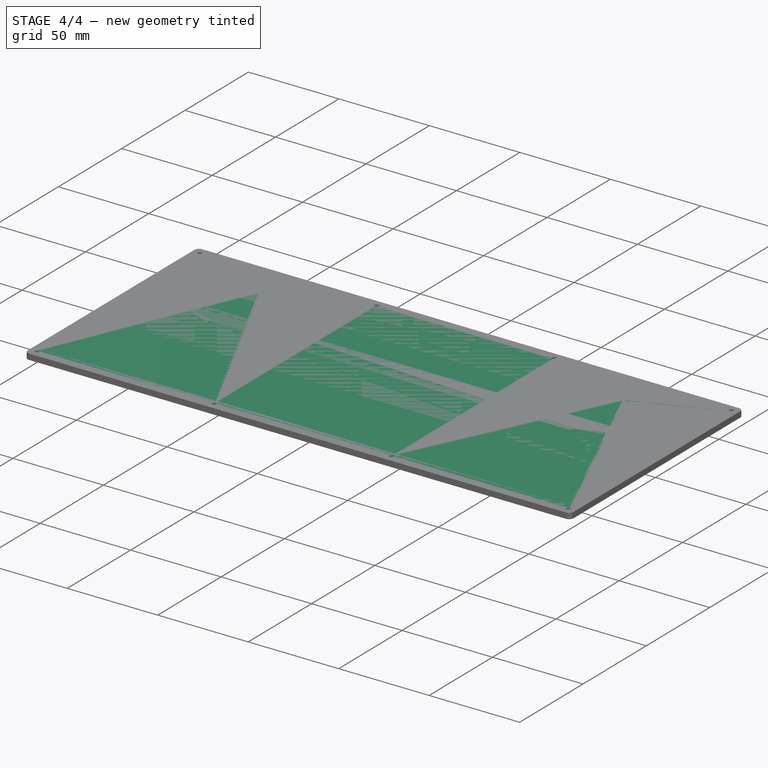
[diagram: stage 4 of 4 — iso view after this stage's code; geometry added in this stage tinted green]
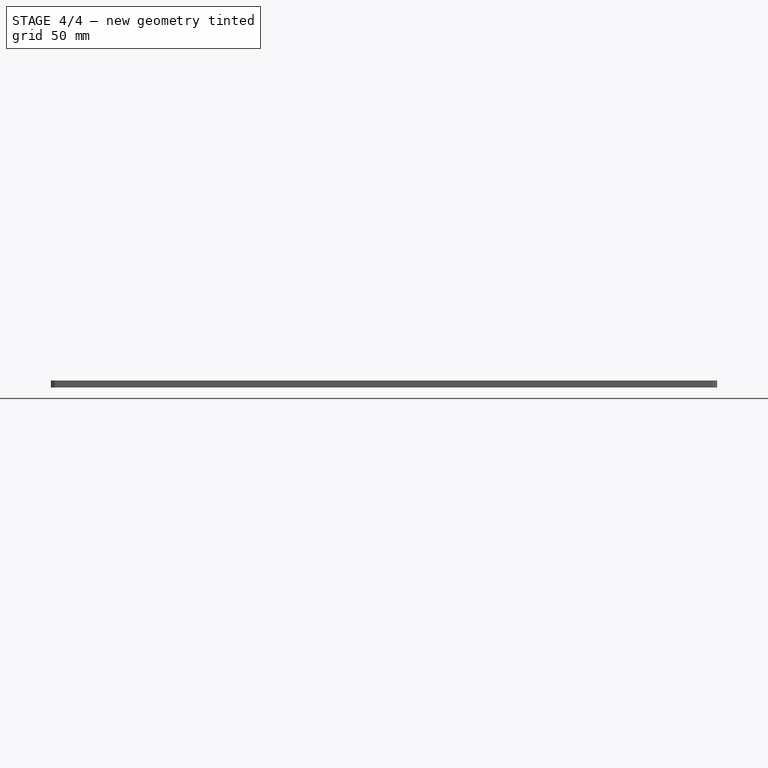
[diagram: stage 4 of 4 — front view after this stage's code; geometry added in this stage tinted green]
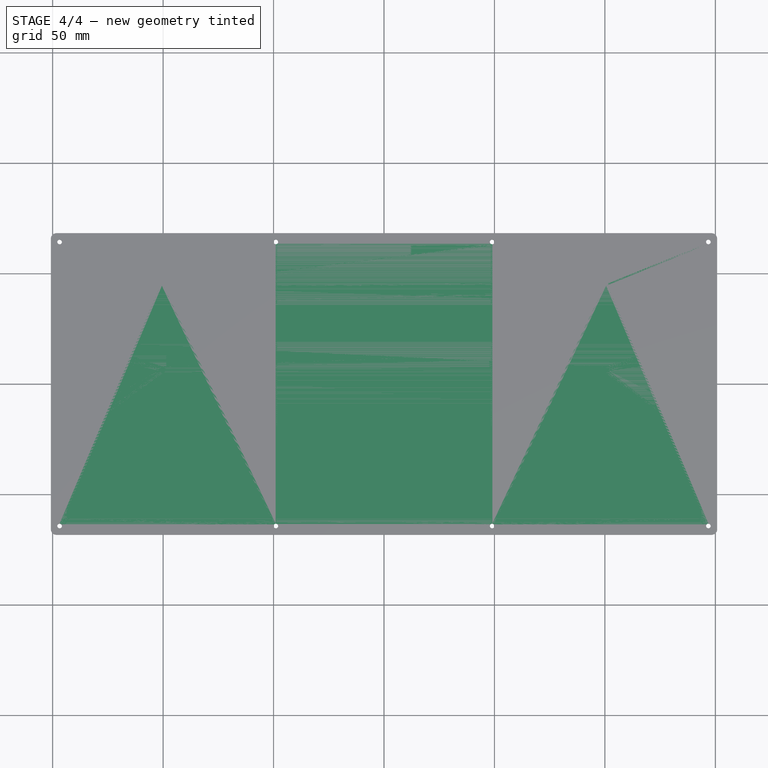
[diagram: stage 4 of 4 — top view after this stage's code; geometry added in this stage tinted green]
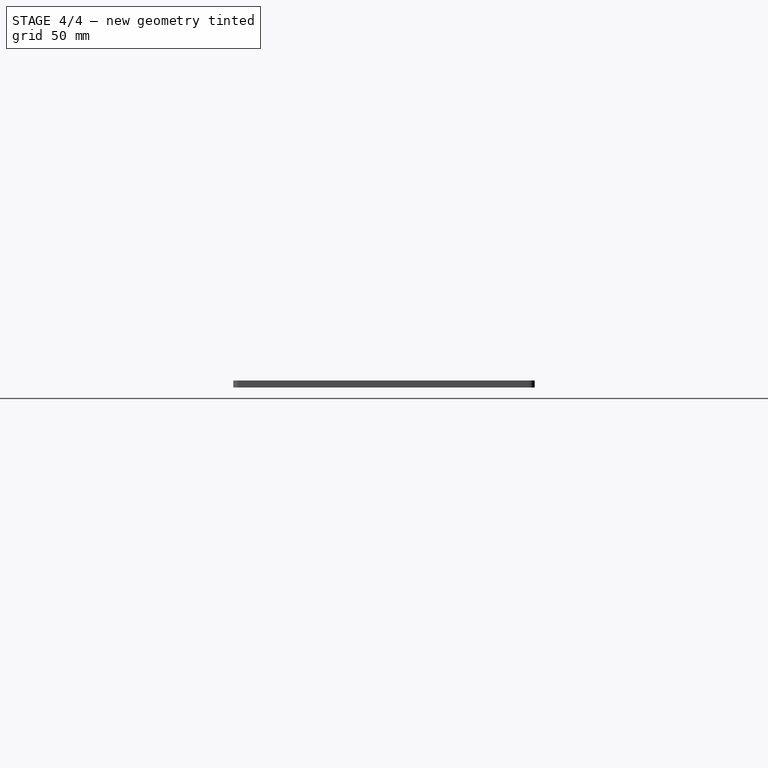
[diagram: stage 4 of 4 — right view after this stage's code; geometry added in this stage tinted green]
FEATURE [PartDesign::Body] Body_9
  Group = -> [LCS_0017,Sketch011,Pad008]
  Origin = -> Origin018
  Tip = -> Pad008
FEATURE [App::Part] foot_2
  Group = -> [LCS_0015,Body_9]
  Origin = -> Origin016
FEATURE [App::Link] foot_2001
  AssemblyType = Asm4EE
  AttachedBy = #LCS_0015
  AttachedTo = Parent Assembly#LCS_Origin
  AttachmentOffset = pos=(0,39.1583,-9.525) rot=(0,0,1;0rad)
  LinkPlacement = pos=(0,39.1583,-9.525) rot=(0,0,1;0rad)
  LinkedObject = -> foot_2
  Placement = pos=(0,39.1583,-9.525) rot=(0,0,1;0rad)
  expr: .AttachmentOffset.Base.y = <<Parameters>>.foot_hole_height_from_center - 0.25in
  expr: Placement = LCS_Origin.Placement * AttachmentOffset * LCS_0015.Placement ^ -1
FEATURE [App::Link] ssd1306oled128x32_Part
  AssemblyType = Asm4EE
  AttachedBy = #LCS_1
  AttachedTo = grabert_pcb_grabert_pcb#LCS_2
  AttachmentOffset = pos=(0,0,5.08) rot=(0,0,1;0rad)
  LinkPlacement = pos=(-134.647,54.3108,14.2875) rot=(0,0,1;0rad)
  LinkedObject = -> <external ssd1306oled128x32.FCStd>#Part
  Placement = pos=(-134.647,54.3108,14.2875) rot=(0,0,1;0rad)
  expr: Placement = grabert_pcb_grabert_pcb.Placement * grabert_pcb#LCS_2.Placement * AttachmentOffset * ssd1306oled128x32#LCS_1.Placement ^ -1
FEATURE [App::Part] Model
  Configuration = 0
  Group = -> [LCS_Origin,Constraints,Variables,bottom001,closed_spacer001,usb_spacer001,usb_spacer002,switch_plate001,closed_spacer002,colored_top001,clear_top001,grabert_pcb_grabert_pcb,foot_0001,foot_1001,foot_2001,ssd1306oled128x32_Part]
  Origin = -> Origin
  Type = Assembly4 Model
FEATURE [PartDesign::CoordinateSystem] LCS_1
  AttacherType = Attacher::AttachEngine3D
  AttachmentOffset = pos=(-133.35,25.4,1.5875) rot=(0,0,1;0rad)
  MapMode = 2
  Placement = pos=(-133.35,25.4,1.5875) rot=(0,0,1;0rad)
  Support = -> [LCS_0006]
FEATURE [App::Part] switch_plate
  Group = -> [LCS_0006,Body_4,LCS_1]
  Origin = -> Origin007
FEATURE [App::DocumentObjectGroup] Parts
  Group = -> [bottom,closed_spacer,usb_spacer,switch_plate,colored_top,clear_top,foot_0,foot_1,foot_2]
FEATURE [TechDraw::DrawSVGTemplate] Template
  Height = 841
  Orientation = 1
  Width = 1189
FEATURE [TechDraw::DrawViewPart] View  label="bottom002"
  CoarseView = false
  Direction = (0,0,1)
  Focus = 100
  HardHidden = false
  IsoCount = 0
  IsoHidden = false
  IsoVisible = false
  LockPosition = false
  Perspective = false
  Rotation = 0
  ScaleType = 0
  SeamHidden = false
  SeamVisible = true
  SmoothHidden = false
  SmoothVisible = true
  Source = -> [bottom]
  X = 152.4
  XDirection = (1,0,0)
  Y = 763.683
FEATURE [TechDraw::DrawViewPart] View001  label="closed_spacer003"
  CoarseView = false
  Direction = (0,0,1)
  Focus = 100
  HardHidden = false
  IsoCount = 0
  IsoHidden = false
  IsoVisible = false
  LockPosition = false
  Perspective = false
  Rotation = 0
  ScaleType = 0
  SeamHidden = false
  SeamVisible = true
  SmoothHidden = false
  SmoothVisible = true
  Source = -> [closed_spacer]
  X = 152.4
  XDirection = (1,0,0)
  Y = 605.954
FEATURE [TechDraw::DrawViewPart] View002  label="usb_spacer003"
  CoarseView = false
  Direction = (0,0,1)
  Focus = 100
  HardHidden = false
  IsoCount = 0
  IsoHidden = false
  IsoVisible = false
  LockPosition = false
  Perspective = false
  Rotation = 0
  ScaleType = 0
  SeamHidden = false
  SeamVisible = true
  SmoothHidden = false
  SmoothVisible = true
  Source = -> [usb_spacer]
  X = 152.4
  XDirection = (1,0,0)
  Y = 450.784
FEATURE [TechDraw::DrawViewPart] View003  label="switch_plate002"
  CoarseView = false
  Direction = (0,0,1)
  Focus = 100
  HardHidden = false
  IsoCount = 0
  IsoHidden = false
  IsoVisible = false
  LockPosition = false
  Perspective = false
  Rotation = 0
  ScaleType = 0
  SeamHidden = false
  SeamVisible = true
  SmoothHidden = false
  SmoothVisible = true
  Source = -> [switch_plate]
  X = 152.4
  XDirection = (1,0,0)
  Y = 293.423
FEATURE [TechDraw::DrawViewPart] View004  label="colored_top002"
  CoarseView = false
  Direction = (0,0,1)
  Focus = 100
  HardHidden = false
  IsoCount = 0
  IsoHidden = false
  IsoVisible = false
  LockPosition = false
  Perspective = false
  Rotation = 0
  ScaleType = 0
  SeamHidden = false
  SeamVisible = true
  SmoothHidden = false
  SmoothVisible = true
  Source = -> [colored_top]
  X = 152.4
  XDirection = (1,0,0)
  Y = 130.773
FEATURE [TechDraw::DrawViewPart] View005  label="clear_top002"
  CoarseView = false
  Direction = (0,0,1)
  Focus = 100
  HardHidden = false
  IsoCount = 0
  IsoHidden = false
  IsoVisible = false
  LockPosition = false
  Perspective = false
  Rotation = 0
  ScaleType = 0
  SeamHidden = false
  SeamVisible = true
  SmoothHidden = false
  SmoothVisible = true
  Source = -> [clear_top]
  X = 469.9
  XDirection = (1,0,0)
  Y = 762.816
FEATURE [TechDraw::DrawViewPart] View006  label="foot_2002"
  CoarseView = false
  Direction = (0,0,1)
  Focus = 100
  HardHidden = false
  IsoCount = 0
  IsoHidden = false
  IsoVisible = false
  LockPosition = false
  Perspective = false
  Rotation = 0
  ScaleType = 0
  SeamHidden = false
  SeamVisible = true
  SmoothHidden = false
  SmoothVisible = true
  Source = -> [foot_0]
  X = 152.4
  XDirection = (1,0,0)
  Y = 486.627
FEATURE [TechDraw::DrawViewPart] View007  label="foot_2003"
  CoarseView = false
  Direction = (0,0,1)
  Focus = 100
  HardHidden = false
  IsoCount = 0
  IsoHidden = false
  IsoVisible = false
  LockPosition = false
  Perspective = false
  Rotation = 0
  ScaleType = 0
  SeamHidden = false
  SeamVisible = true
  SmoothHidden = false
  SmoothVisible = true
  Source = -> [foot_1]
  X = 152.4
  XDirection = (1,0,0)
  Y = 445.525
FEATURE [TechDraw::DrawViewPart] View008  label="foot_3"
  CoarseView = false
  Direction = (0,0,1)
  Focus = 100
  HardHidden = false
  IsoCount = 0
  IsoHidden = false
  IsoVisible = false
  LockPosition = false
  Perspective = false
  Rotation = 0
  ScaleType = 0
  SeamHidden = false
  SeamVisible = true
  SmoothHidden = false
  SmoothVisible = true
  Source = -> [foot_2]
  X = 152.4
  XDirection = (1,0,0)
  Y = 409.655
FEATURE [TechDraw::DrawPage] Page
  KeepUpdated = true
  NextBalloonIndex = 1
  ProjectionType = 0
  Template = -> Template
  Views = -> [View,View001,View002,View003,View004,View005,View006,View007,View008]

RESOLVED EXTERNAL PARTS (link-assembly join: the EXTERNAL_REF files above that resolve inside this repo's crawl, each included once):
---- part grabert_pcb.FCStd = doc fcstd_f0b09a63d6a0 ----
FCSTD DOCUMENT  (FreeCAD 0.19R23141 (Git))
Label: grabert_pcb
License: Creative Commons Attribution-NonCommercial
LicenseURL: http://creativecommons.org/licenses/by-nc/4.0/
objects: Part::Feature×5, App::Part×4, App::Link×4, PartDesign::CoordinateSystem×3, PartDesign::Point×2, Sketcher::SketchObject×1
note: 11 computed .brp shape members not serialized (recipe doc carries the construction recipe); baked Part::Feature solids carry a one-line shape summary decoded from their .brp

FEATURE [PartDesign::CoordinateSystem] Local_CS_4306
  AttacherType = Attacher::AttachEngine3D
FEATURE [Part::Feature] Pcb_4306
  shape: bbox 285.8 x 120.7 x 1.6 mm, 472 faces (baked)
FEATURE [Sketcher::SketchObject] PCB_Sketch_4306
  sketch-geometry (8):
    g0: LineSegment StartX=285.75 StartY=118.11 StartZ=0 EndX=285.75 EndY=2.54 EndZ=0
    g1: LineSegment StartX=283.21 StartY=120.65 StartZ=0 EndX=2.54 EndY=120.65 EndZ=0
    g2: LineSegment StartX=283.21 StartY=-3.29e-14 StartZ=0 EndX=2.54 EndY=-4e-16 EndZ=0
    g3: LineSegment StartX=-1.24e-14 StartY=118.11 StartZ=0 EndX=0 EndY=2.54 EndZ=0
    g4: ArcOfCircle CenterX=2.54 CenterY=118.11 CenterZ=0 NormalX=0 NormalY=0 NormalZ=1 AngleXU=0 Radius=2.54 StartAngle=1.5708 EndAngle=3.14159
    g5: ArcOfCircle CenterX=2.54 CenterY=2.54 CenterZ=0 NormalX=0 NormalY=0 NormalZ=1 AngleXU=0 Radius=2.54 StartAngle=3.14159 EndAngle=4.71239
    g6: ArcOfCircle CenterX=283.21 CenterY=118.11 CenterZ=0 NormalX=0 NormalY=0 NormalZ=1 AngleXU=0 Radius=2.54 StartAngle=0 EndAngle=1.5708
    g7: ArcOfCircle CenterX=283.21 CenterY=2.54 CenterZ=0 NormalX=0 NormalY=0 NormalZ=1 AngleXU=0 Radius=2.54 StartAngle=4.71239 EndAngle=6.28319
  constraints (8):
    c: Coincident(g3,g5)
    c: Coincident(g3,g4)
    c: Coincident(g2,g5)
    c: Coincident(g1,g4)
    c: Coincident(g2,g7)
    c: Coincident(g1,g6)
    c: Coincident(g0,g7)
    c: Coincident(g0,g6)
FEATURE [App::Part] Board_Geoms_4306
  Group = -> [Local_CS_4306,Pcb_4306,PCB_Sketch_4306]
  Origin = -> Origin
FEATURE [Part::Feature] Shape003  label=""C1"_C_0603_1608Metric_5db69710-2d0d-45d7-a742-beb49e07931f"
  Placement = pos=(248.92,107.315,0) rot=(0,0,1;1.5708rad)
  shape: bbox 0.8 x 1.6 x 0.8 mm, 28 faces (baked)
FEATURE [Part::Feature] Shape004  label=""U2"_LQFP_100_14x14mm_P05mm_719b990f-ae4c-490b-9cd7-5392cd54d5f2"
  Placement = pos=(142.875,107.95,0) rot=(0,0,1;0.785398rad)
  shape: bbox 19.95 x 19.95 x 1.5 mm, 1544 faces (baked)
FEATURE [Part::Feature] Shape005  label=""R2"_R_0603_1608Metric_b3f198d9-8440-4a91-92b4-b595c153e976"
  Placement = pos=(6.35,118.11,0) rot=(0,0,1;0rad)
  shape: bbox 1.6 x 0.8 x 0.45 mm, 26 faces (baked)
FEATURE [App::Link] _C1__C_0603_1608Metric_5db69710_2d0d_45d7_a742_beb49e07931f_ln_  label=""C2"_C_0603_1608Metric_bc751e6e-ea76-4202-bdc8-b0e3f3729951"
  LinkPlacement = pos=(240.538,107.315,0) rot=(0,0,1;1.5708rad)
  LinkedObject = -> Shape003
  Placement = pos=(240.538,107.315,0) rot=(0,0,1;1.5708rad)
FEATURE [Part::Feature] Shape006  label=""U1"_SOT_223_c46af92f-9185-4327-9a7a-dfaa81b7fe2d"
  Placement = pos=(246.38,101.6,0) rot=(0,0,1;3.14159rad)
  shape: bbox 7 x 6.5 x 1.7 mm, 78 faces (baked)
FEATURE [App::Link] _R2__R_0603_1608Metric_b3f198d9_8440_4a91_92b4_b595c153e976_ln_  label=""R3"_R_0603_1608Metric_eb4d33d1-0a7c-470d-97ed-5c512bd76df8"
  LinkPlacement = pos=(246.38,107.315,0) rot=(0,0,-1;1.5708rad)
  LinkedObject = -> Shape005
  Placement = pos=(246.38,107.315,0) rot=(0,0,-1;1.5708rad)
FEATURE [App::Link] _R2__R_0603_1608Metric_b3f198d9_8440_4a91_92b4_b595c153e976_ln_001  label=""R4"_R_0603_1608Metric_edde6bde-11c9-460a-868f-a0e0e945686d"
  LinkPlacement = pos=(244.475,107.315,0) rot=(0,0,-1;1.5708rad)
  LinkedObject = -> Shape005
  Placement = pos=(244.475,107.315,0) rot=(0,0,-1;1.5708rad)
FEATURE [App::Link] _R2__R_0603_1608Metric_b3f198d9_8440_4a91_92b4_b595c153e976_ln_002  label=""R1"_R_0603_1608Metric_f86d962d-e1b5-4395-8a34-b8604b4393b0"
  LinkPlacement = pos=(20.32,118.11,0) rot=(0,0,1;3.14159rad)
  LinkedObject = -> Shape005
  Placement = pos=(20.32,118.11,0) rot=(0,0,1;3.14159rad)
FEATURE [App::Part] Top_4306
  Group = -> [Shape003,Shape004,Shape005,_C1__C_0603_1608Metric_5db69710_2d0d_45d7_a742_beb49e07931f_ln_,Shape006,_R2__R_0603_1608Metric_b3f198d9_8440_4a91_92b4_b595c153e976_ln_,_R2__R_0603_1608Metric_b3f198d9_8440_4a91_92b4_b595c153e976_ln_001,_R2__R_0603_1608Metric_b3f198d9_8440_4a91_92b4_b595c153e976_ln_002]
  Origin = -> Origin003
FEATURE [App::Part] Step_Models_4306
  Group = -> [Top_4306]
  Origin = -> Origin002
FEATURE [PartDesign::Point] Point_1
  AttacherType = Attacher::AttachEnginePoint
  MapMode = 36
  Placement = pos=(9.525,85.725,0) rot=(1,0,0;1.5708rad)
  Support = -> [Pcb_4306]
FEATURE [PartDesign::Point] Point_2
  AttacherType = Attacher::AttachEnginePoint
  MapMode = 36
  Placement = pos=(9.7282,112.446,0) rot=(1,0,0;1.5708rad)
  Support = -> [Pcb_4306]
FEATURE [PartDesign::CoordinateSystem] LCS_2
  AttacherType = Attacher::AttachEngine3D
  MapMode = 1
  Placement = pos=(9.7282,112.446,0) rot=(0,0,1;0rad)
  Support = -> [Point_2]
FEATURE [PartDesign::CoordinateSystem] LCS_3
  AttacherType = Attacher::AttachEngine3D
  MapMode = 1
  Placement = pos=(9.525,85.725,0) rot=(0,0,1;0rad)
  Support = -> [Point_1]
FEATURE [App::Part] Board_4306  label="grabert_pcb"
  Group = -> [Board_Geoms_4306,Step_Models_4306,Point_1,Point_2,LCS_2,LCS_3]
  Origin = -> Origin001
---- part ssd1306oled128x32.FCStd = doc fcstd_07d0af644551 ----
FCSTD DOCUMENT  (FreeCAD 0.19R23141 (Git))
Label: ssd1306oled128x32
License: Creative Commons Attribution-NonCommercial
LicenseURL: http://creativecommons.org/licenses/by-nc/4.0/
objects: Sketcher::SketchObject×5, PartDesign::Pad×4, PartDesign::Body×4, PartDesign::ShapeBinder×3, PartDesign::CoordinateSystem×3, PartDesign::Pocket×1, App::Part×1
note: 25 computed .brp shape members not serialized (recipe doc carries the construction recipe); baked Part::Feature solids carry a one-line shape summary decoded from their .brp

FEATURE [Sketcher::SketchObject] Sketch
  MapMode = 5
  Support = -> [XY_Plane]
  sketch-geometry (4):
    g0: LineSegment StartX=0 StartY=0 StartZ=0 EndX=38 EndY=0 EndZ=0
    g1: LineSegment StartX=38 StartY=0 StartZ=0 EndX=38 EndY=-12 EndZ=0
    g2: LineSegment StartX=38 StartY=-12 StartZ=0 EndX=0 EndY=-12 EndZ=0
    g3: LineSegment StartX=0 StartY=-12 StartZ=0 EndX=0 EndY=0 EndZ=0
  constraints (11):
    c: Coincident(g0,g1)
    c: Coincident(g1,g2)
    c: Coincident(g2,g3)
    c: Coincident(g3,g0)
    c: Horizontal(g0)
    c: Horizontal(g2)
    c: Vertical(g1)
    c: Vertical(g3)
    c: Coincident(g0,g-1)
    c: DistanceX(g0,g0) = 38
    c: DistanceY(g1,g1) = 12
FEATURE [PartDesign::Pad] Pad
  Direction = (1,1,1)
  Length = 1.15
  Length2 = 100
  Profile = -> Sketch
  Type = 0
FEATURE [PartDesign::Body] Body  label="PCB"
  Group = -> [Sketch,Pad,Sketch001,Pocket]
  Origin = -> Origin
  Tip = -> Pocket
FEATURE [PartDesign::ShapeBinder] CopyPocket
  TraceSupport = false
FEATURE [Sketcher::SketchObject] Sketch002
  MapMode = 5
  Placement = pos=(0,0,1.15) rot=(0,0,1;0rad)
  Support = -> [CopyPocket]
  sketch-geometry (4):
    g0: LineSegment StartX=4 StartY=-0.25 StartZ=0 EndX=34 EndY=-0.25 EndZ=0
    g1: LineSegment StartX=34 StartY=-0.25 StartZ=0 EndX=34 EndY=-11.75 EndZ=0
    g2: LineSegment StartX=34 StartY=-11.75 StartZ=0 EndX=4 EndY=-11.75 EndZ=0
    g3: LineSegment StartX=4 StartY=-11.75 StartZ=0 EndX=4 EndY=-0.25 EndZ=0
  constraints (12):
    c: Coincident(g0,g1)
    c: Coincident(g1,g2)
    c: Coincident(g2,g3)
    c: Coincident(g3,g0)
    c: Horizontal(g0)
    c: Horizontal(g2)
    c: Vertical(g1)
    c: Vertical(g3)
    c: DistanceY(g0,g-1) = 0.25
    c: DistanceX(g-1,g0) = 4
    c: DistanceY(g3,g3) = 11.5
    c: DistanceX(g0,g0) = 30
FEATURE [PartDesign::Pad] Pad001
  Direction = (1,1,1)
  Length = 2
  Length2 = 100
  Profile = -> Sketch002
  Type = 0
FEATURE [PartDesign::Body] Body001  label="Glass"
  Group = -> [CopyPocket,Sketch002,Pad001]
  Origin = -> Origin001
  Tip = -> Pad001
FEATURE [PartDesign::CoordinateSystem] LCS_0
  AttacherType = Attacher::AttachEngine3D
  MapMode = 2
  Support = -> [X_Axis002]
FEATURE [PartDesign::CoordinateSystem] LCS_0001
  AttacherType = Attacher::AttachEngine3D
  MapMode = 2
  Support = -> [X_Axis003]
FEATURE [PartDesign::ShapeBinder] CopyPad001
  Placement = pos=(0,0,2) rot=(0,0,1;0rad)
  TraceSupport = false
FEATURE [Sketcher::SketchObject] Sketch003
  MapMode = 5
  Placement = pos=(0,0,3.15) rot=(0,0,1;0rad)
  Support = -> [CopyPad001]
  sketch-geometry (4):
    g0: LineSegment StartX=4.3 StartY=-0.45 StartZ=0 EndX=29.3 EndY=-0.45 EndZ=0
    g1: LineSegment StartX=29.3 StartY=-0.45 StartZ=0 EndX=29.3 EndY=-9.95 EndZ=0
    g2: LineSegment StartX=29.3 StartY=-9.95 StartZ=0 EndX=4.3 EndY=-9.95 EndZ=0
    g3: LineSegment StartX=4.3 StartY=-9.95 StartZ=0 EndX=4.3 EndY=-0.45 EndZ=0
  constraints (12):
    c: Coincident(g0,g1)
    c: Coincident(g1,g2)
    c: Coincident(g2,g3)
    c: Coincident(g3,g0)
    c: Horizontal(g0)
    c: Horizontal(g2)
    c: Vertical(g1)
    c: Vertical(g3)
    c: DistanceY(g0,g-1) = 0.45
    c: DistanceX(g-1,g0) = 4.3
    c: DistanceX(g0,g0) = 25
    c: DistanceY(g1,g1) = 9.5
FEATURE [PartDesign::Pad] Pad002
  Direction = (1,1,1)
  Length = 0.1
  Length2 = 100
  Placement = pos=(0,0,2) rot=(0,0,1;0rad)
  Profile = -> Sketch003
  Type = 0
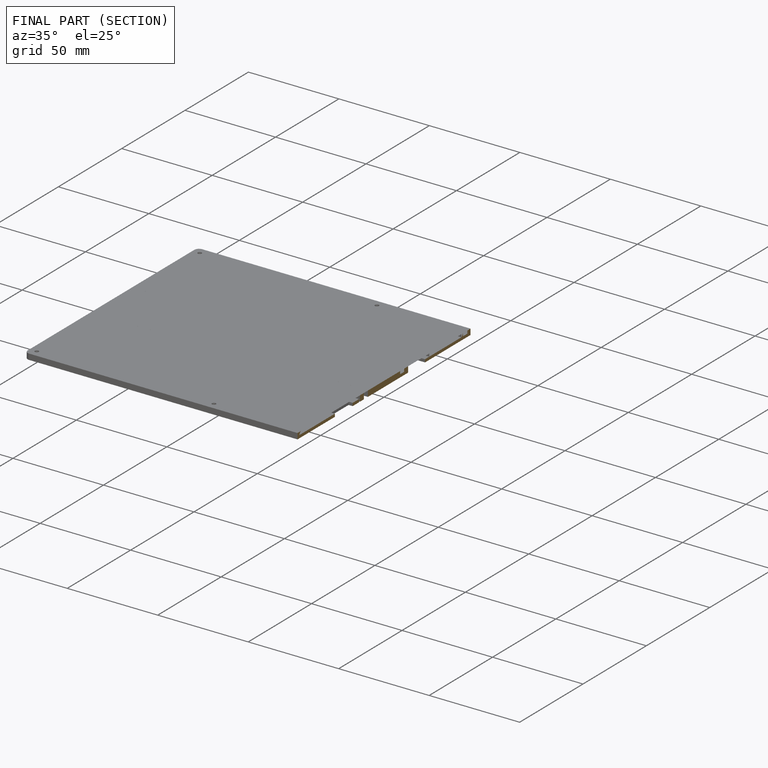
[diagram: finished part — half-section view (interior)]
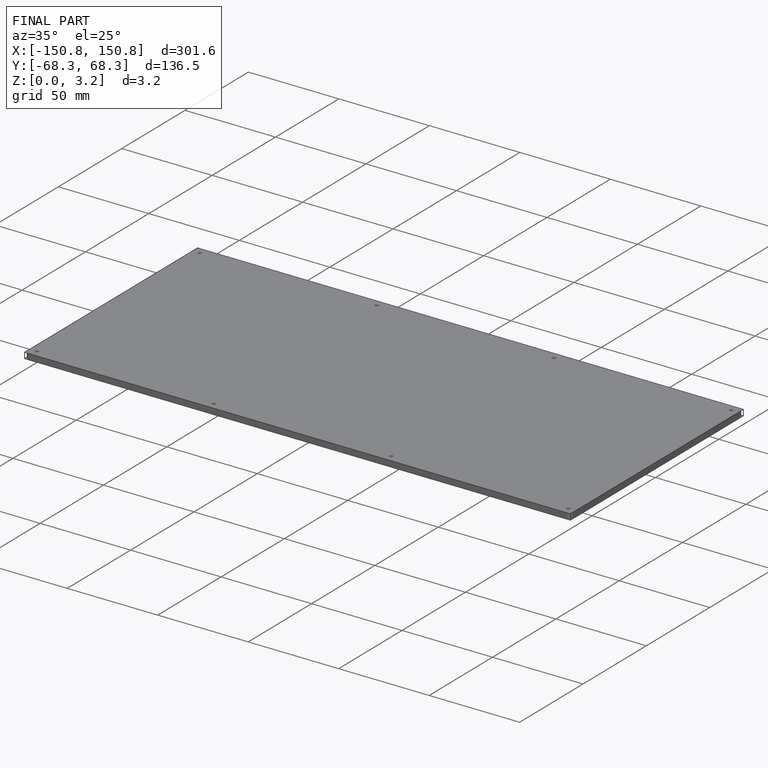
[diagram: finished part — iso view with bounding-box wireframe]
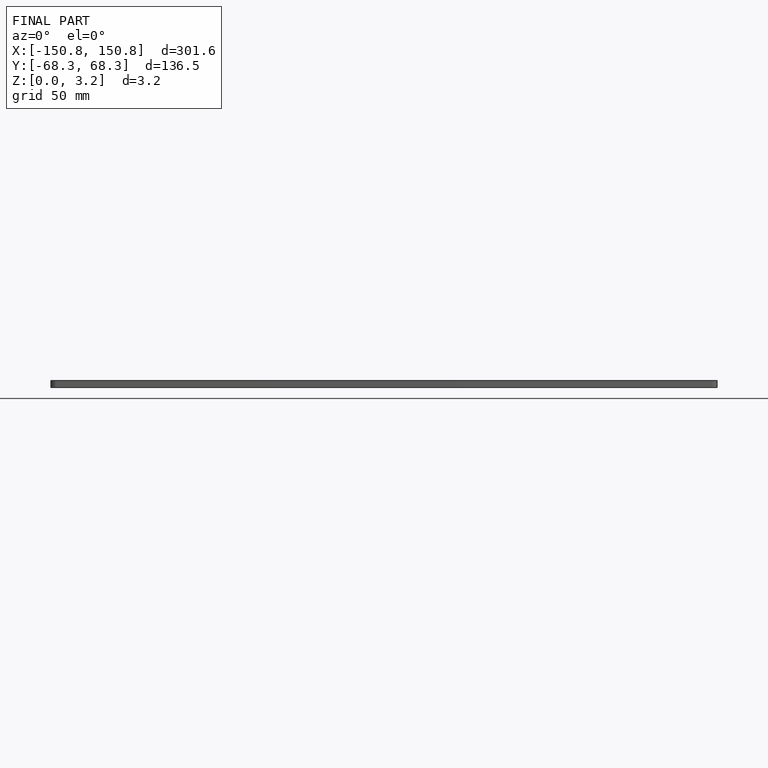
[diagram: finished part — front view with bounding-box wireframe]
